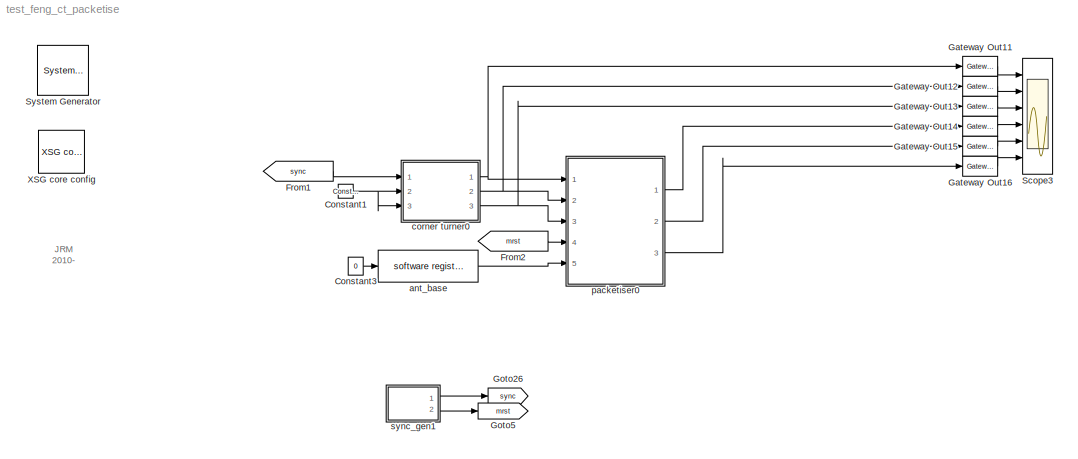
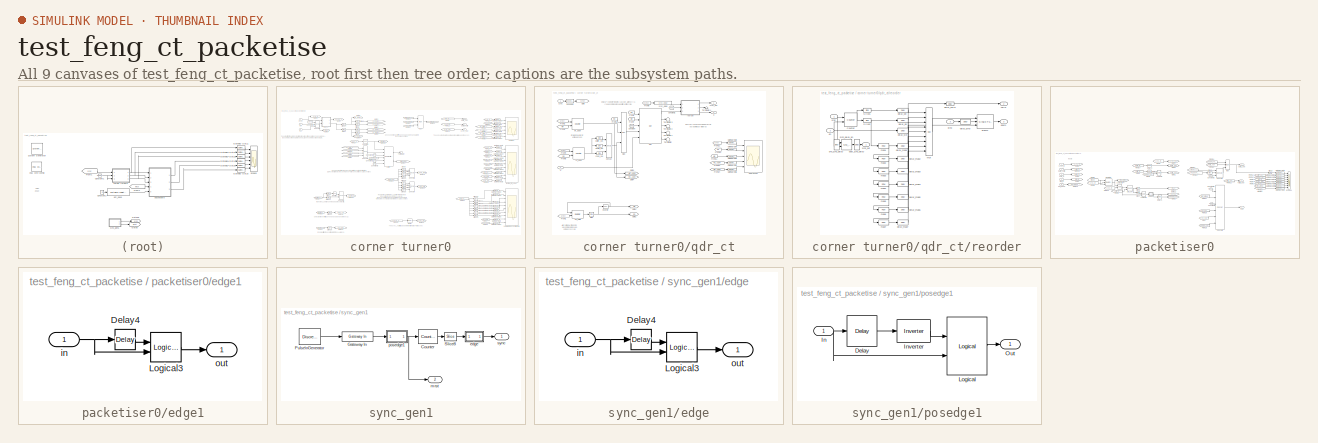
[diagram: thumbnail index - all 9 canvases of the model, root first then tree order]
MODEL test_feng_ct_packetise
KIND model
BLOCK [Reference]  System Generator  REF=xbsIndex_r4/ System Generator
  AttributesFormatString = System\\nGenerator
  FunctionWithSeparateData = off
  Ports = []
  RTWMemSecDataConstants = Inherit from model
  RTWMemSecDataInternal = Inherit from model
  RTWMemSecDataParameters = Inherit from model
  RTWMemSecFuncExecute = Inherit from model
  RTWMemSecFuncInitTerm = Inherit from model
  ShowPortLabels = FromPortIcon
  SourceBlock = xbsIndex_r4/ System Generator
  SourceType = Xilinx System Generator Block
  SystemSampleTime = -1
  Tag = genX
  UserData = DataTag0
  UserDataPersistent = on
  block_type = sysgen
  block_version = 10.1.3
  clock_wrapper = Clock Enables
  core_generation = According to Block Masks
  dbl_ovrd = According to Block Masks
  dcm_input_clock_period = 100
  deprecated_control = off
  directory = ./r_128w_512_11_r354/sysgen
  eval_field = 0
  has_advanced_control = 0
  incr_netlist = off
  infoedit = System Generator
  package = ff1136
  part = xc5vsx95t
  run_coregen = off
  sg_icon_stat = 51,50,-1,-1,red,beige,0,07734,right
  sg_mask_display = fprintf('','COMMENT: begin icon graphics');\npatch([0 51 51 0 ],[0 0 50 50 ],[0.93 0.92 0.86]);\npatch([12 4 16 4 12 25 29 33 47 36 25 17 29 17 25 36 47 33 29 25 12 ],[5 13 25 37 45 45 41 45 45 34 45 37 25 13 5 16 5 5 9 5 5 ],[0.6 0.2 0.25]);\nplot([0 51 51 0 0 ],[0 0 50 50 0 ]);\nfprintf('','COMMENT: end icon graphics');\nfprintf('','COMMENT: begin icon text');\nfprintf('','COMMENT: end icon text...<+5ch>
  sggui_pos = -1,-1,-1,-1
  simulink_period = 1
  speed = -1
  synthesis_tool = XST
  sysclk_period = 5
  testbench = off
  trim_vbits = Everywhere in SubSystem
  xilinxfamily = virtex5
BLOCK [Reference] Constant1  REF=xbsIndex_r4/Constant
  Ports = [0, 1]
  SourceBlock = xbsIndex_r4/Constant
  SourceType = Xilinx Constant Block Block
  arith_type = Unsigned
  bin_pt = 0
  block_type = constant
  block_version = 10.1.3
  carry = CIN
  const = 0
  dbl_ovrd = off
  dsp48_infoedit = The use of this block for DSP48 instructions is deprecated.  Please use the Opmode block.
  equ = P=C
  explicit_period = off
  has_advanced_control = 0
  inp1 = P
  inp2 = PCIN>>17
  n_bits = 16
  opr = +
  opselect = C
  period = 1
  sg_icon_stat = 15,14,0,1,white,blue,0,bf4ddd8b,right,
  sg_list_contents = {'table'=>{'carry'=>'popup(0|1|CIN|~SIGN(P or PCIN)|~SIGN(A*B or A:B)|~SIGND(A*B or A:B))','inp1'=>'popup(0|P|A:B|A*B|C|P+C|A:B+C)','inp2'=>'popup(0|PCIN|P|C|PCIN>>17|P>>17)','opselect'=>'popup(C + A*B|PCIN + A*B|P + A*B|A * B|C + A:B|C - A:B|C|Custom)','userSelections'=>{'carry'=>'CIN','inp1'=>'P','inp2'=>'PCIN>>17','opselect'=>'C'}}}  <repeated x7 — deduplicated; at blocks: Constant1, Constant2, Constant3, Constant5>
  sg_mask_display = fprintf('','COMMENT: begin icon graphics');\npatch([0 1 1 0 ],[0 0 1 1 ],[0.77 0.82 0.91]);\npatch([0.2 0.0666667 0.266667 0.0666667 0.2 0.466667 0.533333 0.6 0.866667 0.666667 0.466667 0.333333 0.533333 0.333333 0.466667 0.666667 0.866667 0.6 0.533333 0.466667 0.2 ],[0.142857 0.285714 0.5 0.714286 0.857143 0.857143 0.785714 0.857143 0.857143 0.642857 0.857143 0.714286 0.5 0.285714 0.142857 0.3571...<+271ch>  <repeated x4 — deduplicated; at blocks: Constant1, Constant2, Constant5>
  sggui_pos = 849,282,478,435
BLOCK [Constant] Constant3
  OutDataType = sfix(16)
  OutScaling = 2^0
  Value = 0
BLOCK [From] From1
  CloseFcn = tagdialog Close
  GotoTag = sync
BLOCK [From] From2
  CloseFcn = tagdialog Close
  GotoTag = mrst
BLOCK [Reference] Gateway Out11  REF=xbsIndex_r4/Gateway Out
  LOCs = {}
  Ports = [1, 1]
  SourceBlock = xbsIndex_r4/Gateway Out
  SourceType = Xilinx Gateway Out Block
  block_type = gatewayout
  block_version = 10.1.3
  has_advanced_control = 0
  hdl_port = off
  infoedit = Gateway out block.  Converts Xilinx fixed point inputs into ouputs of type Simulink integer, double, or fixed point.<P><P>Hardware notes:  In hardware these blocks become top level output ports or are discarded, depending on how they are configured.  <repeated x14 — deduplicated; at blocks: Gateway Out11, Gateway Out12, Gateway Out13, Gateway Out14, Gateway Out15, Gateway Out16, Gateway Out1, Gateway Out18, Gateway Out19, Gateway Out2, Gateway Out20, Gateway Out3, Gateway Out6, Gateway Out8>
  locs_specified = off
  sg_icon_stat = 35,20,1,1,white,grey,0,632ec840,right,
  sg_mask_display = fprintf('','COMMENT: begin icon graphics');\npatch([0 1 1 0 ],[0 0 1 1 ],[0.88 0.88 0.88]);\npatch([0.342857 0.257143 0.4 0.257143 0.342857 0.485714 0.514286 0.542857 0.714286 0.6 0.485714 0.4 0.542857 0.4 0.485714 0.6 0.714286 0.542857 0.514286 0.485714 0.342857 ],[0.1 0.25 0.5 0.75 0.9 0.9 0.85 0.9 0.9 0.7 0.9 0.75 0.5 0.25 0.1 0.3 0.1 0.1 0.15 0.1 0.1 ],[0.98 0.96 0.92]);\nplot([0 1 1 0 0 ],[0 ...<+258ch>  <repeated x6 — deduplicated; at blocks: Gateway Out11, Gateway Out12, Gateway Out13, Gateway Out14, Gateway Out15, Gateway Out16>
  sggui_pos = 20,20,336,384
  timing_constraint = None
  xl_area = [0,0,0,0,0,0,0]
  xl_use_area = off
BLOCK [Reference] Gateway Out12  REF=xbsIndex_r4/Gateway Out
  LOCs = {}
  Ports = [1, 1]
  SourceBlock = xbsIndex_r4/Gateway Out
  SourceType = Xilinx Gateway Out Block
  block_type = gatewayout
  block_version = 10.1.3
  has_advanced_control = 0
  hdl_port = off
  locs_specified = off
  sg_icon_stat = 35,20,1,1,white,grey,0,632ec840,right,
  sggui_pos = 20,20,336,384
  timing_constraint = None
  xl_area = [0,0,0,0,0,0,0]
  xl_use_area = off
BLOCK [Reference] Gateway Out13  REF=xbsIndex_r4/Gateway Out
  LOCs = {}
  Ports = [1, 1]
  SourceBlock = xbsIndex_r4/Gateway Out
  SourceType = Xilinx Gateway Out Block
  block_type = gatewayout
  block_version = 10.1.3
  has_advanced_control = 0
  hdl_port = off
  locs_specified = off
  sg_icon_stat = 35,20,1,1,white,grey,0,632ec840,right,
  sggui_pos = 20,20,336,384
  timing_constraint = None
  xl_area = [0,0,0,0,0,0,0]
  xl_use_area = off
BLOCK [Reference] Gateway Out14  REF=xbsIndex_r4/Gateway Out
  LOCs = {}
  Ports = [1, 1]
  SourceBlock = xbsIndex_r4/Gateway Out
  SourceType = Xilinx Gateway Out Block
  block_type = gatewayout
  block_version = 10.1.3
  has_advanced_control = 0
  hdl_port = off
  locs_specified = off
  sg_icon_stat = 35,20,1,1,white,grey,0,632ec840,right,
  sggui_pos = 20,20,336,384
  timing_constraint = None
  xl_area = [0,0,0,0,0,0,0]
  xl_use_area = off
BLOCK [Reference] Gateway Out15  REF=xbsIndex_r4/Gateway Out
  LOCs = {}
  Ports = [1, 1]
  SourceBlock = xbsIndex_r4/Gateway Out
  SourceType = Xilinx Gateway Out Block
  block_type = gatewayout
  block_version = 10.1.3
  has_advanced_control = 0
  hdl_port = off
  locs_specified = off
  sg_icon_stat = 35,20,1,1,white,grey,0,632ec840,right,
  sggui_pos = 20,20,336,384
  timing_constraint = None
  xl_area = [0,0,0,0,0,0,0]
  xl_use_area = off
BLOCK [Reference] Gateway Out16  REF=xbsIndex_r4/Gateway Out
  LOCs = {}
  Ports = [1, 1]
  SourceBlock = xbsIndex_r4/Gateway Out
  SourceType = Xilinx Gateway Out Block
  block_type = gatewayout
  block_version = 10.1.3
  has_advanced_control = 0
  hdl_port = off
  locs_specified = off
  sg_icon_stat = 35,20,1,1,white,grey,0,632ec840,right,
  sggui_pos = 20,20,336,384
  timing_constraint = None
  xl_area = [0,0,0,0,0,0,0]
  xl_use_area = off
BLOCK [Goto] Goto26
  GotoTag = sync
  TagVisibility = local
BLOCK [Goto] Goto5
  GotoTag = mrst
  TagVisibility = local
BLOCK [Scope] Scope3
  DataFormat = StructureWithTime
  Floating = off
  LimitDataPoints = off
  NumInputPorts = 6
  Ports = [6]
  SampleTime = 0
  YMax = 1~1~1~1~1~1
  YMin = -1~-1~-1~-1~-1~-1
  ZoomMode = xonly
BLOCK [Reference] XSG core config  REF=xps_library/XSG core config  (lib defined in mdl_00b5cec29cd0, mdl_02ab6ecaa3d1, +5 more)
  BEE2_ctrl_clk_src = sys_clk
  BEE2_usr_clk_src = sys_clk
  CORR_clk_src = sys_clk
  FunctionWithSeparateData = off
  Ports = []
  ROACH_clk_src = adc0_clk
  RTWMemSecDataConstants = Inherit from model
  RTWMemSecDataInternal = Inherit from model
  RTWMemSecDataParameters = Inherit from model
  RTWMemSecFuncExecute = Inherit from model
  RTWMemSecFuncInitTerm = Inherit from model
  ShowPortLabels = FromPortIcon
  SourceBlock = xps_library/XSG core config
  SourceType = xsg core config
  SystemSampleTime = -1
  Tag = xps:xsg
  clk_rate = 800/4
  clk_src = adc0_clk
  gpio_clk_bit_index = 0
  gpio_clk_io_group = iBOB:sma
  hw_sys = ROACH:sx95t
  iBOB_clk_src = sys_clk
  ibob_linux = off
  mpc_type = powerpc440_ext
  sample_period = 1
  synthesis_tool = XST
BLOCK [Reference] ant_base  REF=xps_library/software register  (lib defined in mdl_00b5cec29cd0, mdl_02ab6ecaa3d1, +5 more)
  FunctionWithSeparateData = off
  Ports = [1, 1]
  RTWMemSecDataConstants = Inherit from model
  RTWMemSecDataInternal = Inherit from model
  RTWMemSecDataParameters = Inherit from model
  RTWMemSecFuncExecute = Inherit from model
  RTWMemSecFuncInitTerm = Inherit from model
  ShowPortLabels = FromPortIcon
  SourceBlock = xps_library/software register
  SystemSampleTime = -1
  Tag = xps:sw_reg
  arith_type = Unsigned
  bin_pt = 0
  bitwidth = 32
  gw_name = test_feng_ct_packetise_ant_base_user_data_out
  io_dir = From Processor
  sample_period = 1
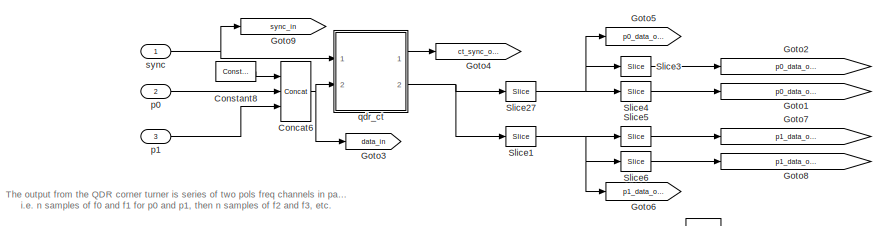
[diagram: corner turner0 - part 1/4, top left region]
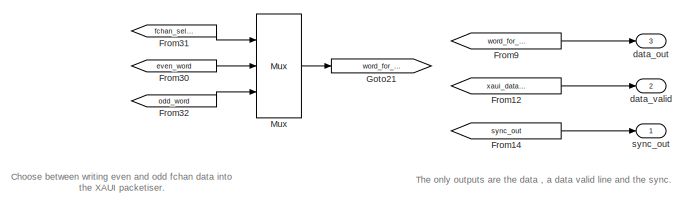
[diagram: corner turner0 - part 2/4, top center region]
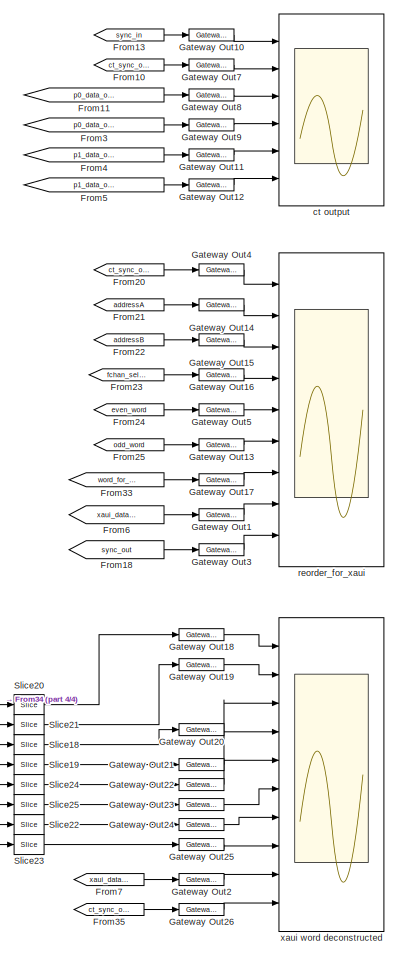
[diagram: corner turner0 - part 3/4, right side, full height]
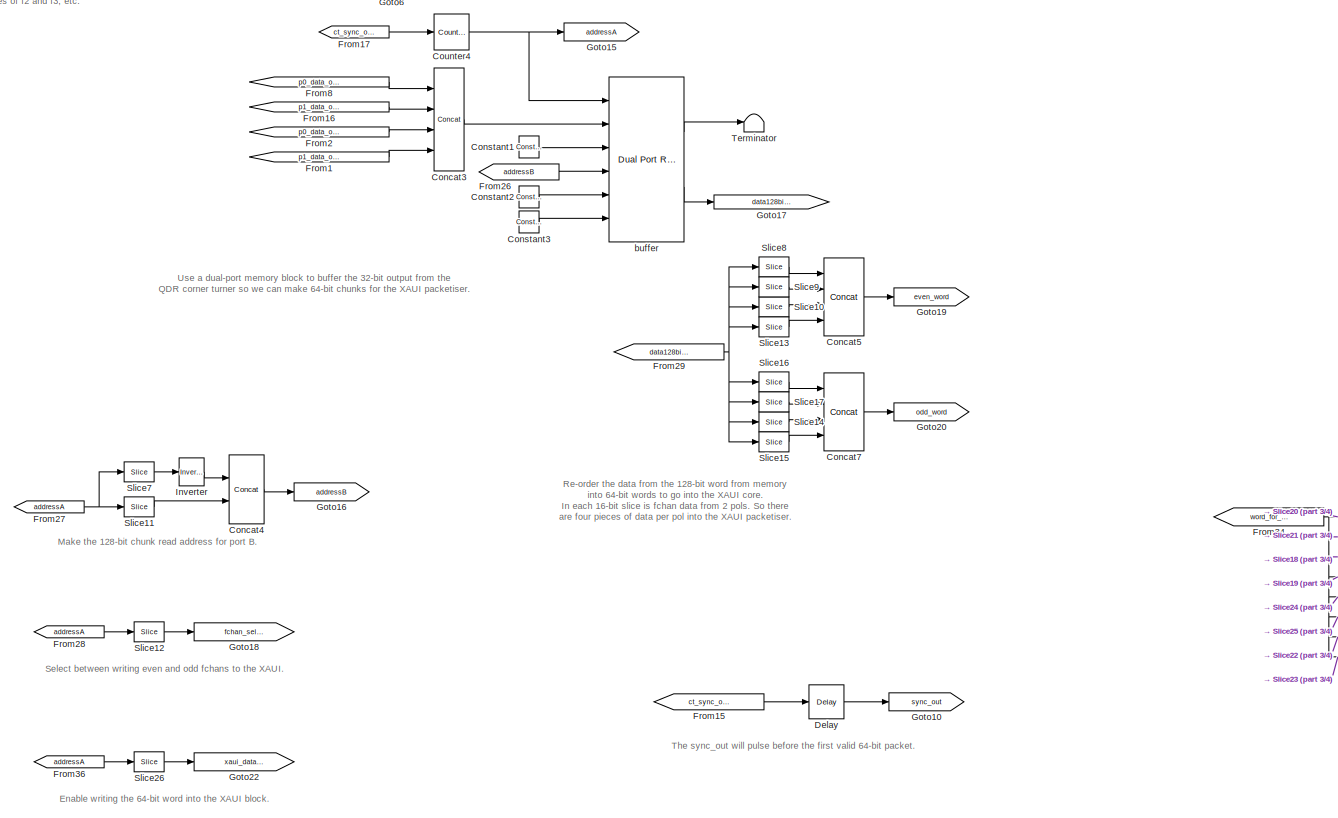
[diagram: corner turner0 - part 4/4, center side, full height]
BLOCK [SubSystem] corner turner0
  FunctionWithSeparateData = off
  MaskCallbackString = ||
  MaskEnableString = on,on,on
  MaskHideContents = off
  MaskIconFrame = on
  MaskIconOpaque = on
  MaskIconRotate = none
  MaskIconUnits = autoscale
  MaskInitialization = set_param([gcb, '/qdr_ct'], 'which_qdr', which_qdr);
  MaskPromptString = Number of freq channels (total 2^?):|Number of spectra per XAUI packet (2^?):|QDR to use:
  MaskStyleString = edit,edit,popup(qdr0|qdr1)
  MaskTabNameString = ,,
  MaskToolTipString = on,on,on
  MaskTunableValueString = on,on,on
  MaskValueString = 6|7|qdr0
  MaskVarAliasString = ,,
  MaskVariables = num_channels_bits=@1;num_spectra_bits=@2;which_qdr=&3;
  MaskVisibilityString = on,on,on
  MinAlgLoopOccurrences = off
  Opaque = off
  Ports = [3, 3]
  PropExecContextOutsideSubsystem = off
  RTWSystemCode = Auto
  RequestExecContextInheritance = off
BLOCK [Reference] corner turner0/Concat3  REF=xbsIndex_r4/Concat
  Ports = [4, 1]
  SourceBlock = xbsIndex_r4/Concat
  SourceType = Xilinx Bus Concatenator Block
  block_type = concat
  block_version = 10.1.3
  dbl_ovrd = off
  has_advanced_control = 0
  infoedit = Concatenates two or more inputs.  Output will be cast to an unsigned value with the binary point at zero.
  num_inputs = 4
  sg_icon_stat = 30,103,4,1,white,blue,0,47b26f1b,right,
  sg_mask_display = fprintf('','COMMENT: begin icon graphics');\npatch([0 1 1 0 ],[0 0 1 1 ],[0.77 0.82 0.91]);\npatch([0.233333 0.0666667 0.3 0.0666667 0.233333 0.5 0.566667 0.633333 0.9 0.666667 0.466667 0.3 0.5 0.3 0.466667 0.666667 0.9 0.633333 0.566667 0.5 0.233333 ],[0.38835 0.436893 0.504854 0.572816 0.621359 0.621359 0.601942 0.621359 0.621359 0.553398 0.61165 0.563107 0.504854 0.446602 0.398058 0.456311 0.38...<+304ch>
  sggui_pos = 22,78,336,214
BLOCK [Reference] corner turner0/Concat4  REF=xbsIndex_r4/Concat
  Ports = [2, 1]
  SourceBlock = xbsIndex_r4/Concat
  SourceType = Xilinx Bus Concatenator Block
  block_type = concat
  block_version = 10.1.3
  dbl_ovrd = off
  has_advanced_control = 0
  infoedit = Concatenates two or more inputs.  Output will be cast to an unsigned value with the binary point at zero.
  num_inputs = 2
  sg_icon_stat = 35,69,2,1,white,blue,0,97b7e8d2,right,
  sg_mask_display = fprintf('','COMMENT: begin icon graphics');\npatch([0 1 1 0 ],[0 0 1 1 ],[0.77 0.82 0.91]);\npatch([0.228571 0.0571429 0.285714 0.0571429 0.228571 0.485714 0.571429 0.657143 0.942857 0.714286 0.514286 0.371429 0.6 0.371429 0.514286 0.714286 0.942857 0.657143 0.571429 0.485714 0.228571 ],[0.304348 0.391304 0.507246 0.623188 0.710145 0.710145 0.666667 0.710145 0.710145 0.594203 0.695652 0.623188 0.5...<+344ch>
  sggui_pos = 23,105,336,214
BLOCK [Reference] corner turner0/Concat5  REF=xbsIndex_r4/Concat
  Ports = [4, 1]
  SourceBlock = xbsIndex_r4/Concat
  SourceType = Xilinx Bus Concatenator Block
  block_type = concat
  block_version = 10.1.3
  dbl_ovrd = off
  has_advanced_control = 0
  infoedit = Concatenates two or more inputs.  Output will be cast to an unsigned value with the binary point at zero.
  num_inputs = 4
  sg_icon_stat = 40,78,4,1,white,blue,0,47b26f1b,right,
  sg_mask_display = fprintf('','COMMENT: begin icon graphics');\npatch([0 1 1 0 ],[0 0 1 1 ],[0.77 0.82 0.91]);\npatch([0.25 0.075 0.3 0.075 0.25 0.525 0.6 0.675 0.95 0.725 0.5 0.35 0.6 0.35 0.5 0.725 0.95 0.675 0.6 0.525 0.25 ],[0.294872 0.384615 0.5 0.615385 0.705128 0.705128 0.666667 0.705128 0.705128 0.589744 0.705128 0.628205 0.5 0.371795 0.294872 0.410256 0.294872 0.294872 0.333333 0.294872 0.294872 ],[0.98 0.9...<+256ch>
  sggui_pos = 24,132,336,214
BLOCK [Reference] corner turner0/Concat6  REF=xbsIndex_r4/Concat
  Ports = [3, 1]
  SourceBlock = xbsIndex_r4/Concat
  SourceType = Xilinx Bus Concatenator Block
  block_type = concat
  block_version = 10.1.3
  dbl_ovrd = off
  has_advanced_control = 0
  infoedit = Concatenates two or more inputs.  Output will be cast to an unsigned value with the binary point at zero.
  num_inputs = 3
  sg_icon_stat = 30,60,3,1,white,blue,0,cc9eafd1,right,
  sg_mask_display = fprintf('','COMMENT: begin icon graphics');\npatch([0 1 1 0 ],[0 0 1 1 ],[0.77 0.82 0.91]);\npatch([0.233333 0.0666667 0.3 0.0666667 0.233333 0.5 0.566667 0.633333 0.9 0.666667 0.466667 0.3 0.5 0.3 0.466667 0.666667 0.9 0.633333 0.566667 0.5 0.233333 ],[0.3 0.383333 0.5 0.616667 0.7 0.7 0.666667 0.7 0.7 0.583333 0.683333 0.6 0.5 0.4 0.316667 0.416667 0.3 0.3 0.333333 0.3 0.3 ],[0.98 0.96 0.92]);\n...<+245ch>
  sggui_pos = 20,20,336,165
BLOCK [Reference] corner turner0/Concat7  REF=xbsIndex_r4/Concat
  Ports = [4, 1]
  SourceBlock = xbsIndex_r4/Concat
  SourceType = Xilinx Bus Concatenator Block
  block_type = concat
  block_version = 10.1.3
  dbl_ovrd = off
  has_advanced_control = 0
  infoedit = Concatenates two or more inputs.  Output will be cast to an unsigned value with the binary point at zero.
  num_inputs = 4
  sg_icon_stat = 40,78,4,1,white,blue,0,47b26f1b,right,
  sg_mask_display = fprintf('','COMMENT: begin icon graphics');\npatch([0 1 1 0 ],[0 0 1 1 ],[0.77 0.82 0.91]);\npatch([0.25 0.075 0.3 0.075 0.25 0.525 0.6 0.675 0.95 0.725 0.5 0.35 0.6 0.35 0.5 0.725 0.95 0.675 0.6 0.525 0.25 ],[0.294872 0.384615 0.5 0.615385 0.705128 0.705128 0.666667 0.705128 0.705128 0.589744 0.705128 0.628205 0.5 0.371795 0.294872 0.410256 0.294872 0.294872 0.333333 0.294872 0.294872 ],[0.98 0.9...<+256ch>
  sggui_pos = 25,159,336,214
BLOCK [Reference] corner turner0/Constant1  REF=xbsIndex_r4/Constant
  Ports = [0, 1]
  SourceBlock = xbsIndex_r4/Constant
  SourceType = Xilinx Constant Block Block
  arith_type = Boolean
  bin_pt = 0
  block_type = constant
  block_version = 10.1.3
  carry = CIN
  const = 1
  dbl_ovrd = off
  dsp48_infoedit = The use of this block for DSP48 instructions is deprecated.  Please use the Opmode block.
  equ = P=C
  explicit_period = off
  has_advanced_control = 0
  inp1 = P
  inp2 = PCIN>>17
  n_bits = 4
  opr = +
  opselect = C
  period = 1
  sg_icon_stat = 20,22,0,1,white,blue,0,1c72b5be,right,
  sg_mask_display = fprintf('','COMMENT: begin icon graphics');\npatch([0 1 1 0 ],[0 0 1 1 ],[0.77 0.82 0.91]);\npatch([0.2 0.05 0.3 0.05 0.2 0.45 0.5 0.55 0.85 0.65 0.45 0.3 0.55 0.3 0.45 0.65 0.85 0.55 0.5 0.45 0.2 ],[0.136364 0.272727 0.5 0.727273 0.863636 0.863636 0.818182 0.863636 0.863636 0.681818 0.863636 0.727273 0.5 0.272727 0.136364 0.318182 0.136364 0.136364 0.181818 0.136364 0.136364 ],[0.98 0.96 0.92]);\...<+202ch>  <repeated x3 — deduplicated; at blocks: Constant1, Constant2, Constant3>
  sggui_pos = 21,51,478,435
BLOCK [Reference] corner turner0/Constant2  REF=xbsIndex_r4/Constant
  Ports = [0, 1]
  SourceBlock = xbsIndex_r4/Constant
  SourceType = Xilinx Constant Block Block
  arith_type = Unsigned
  bin_pt = 0
  block_type = constant
  block_version = 10.1.3
  carry = CIN
  const = 0
  dbl_ovrd = off
  dsp48_infoedit = The use of this block for DSP48 instructions is deprecated.  Please use the Opmode block.
  equ = P=C
  explicit_period = off
  has_advanced_control = 0
  inp1 = P
  inp2 = PCIN>>17
  n_bits = 128
  opr = +
  opselect = C
  period = 1
  sg_icon_stat = 20,22,0,1,white,blue,0,bf4ddd8b,right,
  sggui_pos = 23,105,478,435
BLOCK [Reference] corner turner0/Constant3  REF=xbsIndex_r4/Constant
  Ports = [0, 1]
  SourceBlock = xbsIndex_r4/Constant
  SourceType = Xilinx Constant Block Block
  arith_type = Boolean
  bin_pt = 0
  block_type = constant
  block_version = 10.1.3
  carry = CIN
  const = 0
  dbl_ovrd = off
  dsp48_infoedit = The use of this block for DSP48 instructions is deprecated.  Please use the Opmode block.
  equ = P=C
  explicit_period = off
  has_advanced_control = 0
  inp1 = P
  inp2 = PCIN>>17
  n_bits = 64
  opr = +
  opselect = C
  period = 1
  sg_icon_stat = 20,22,0,1,white,blue,0,bf4ddd8b,right,
  sggui_pos = 22,78,478,435
BLOCK [Reference] corner turner0/Constant8  REF=xbsIndex_r4/Constant
  Ports = [0, 1]
  SourceBlock = xbsIndex_r4/Constant
  SourceType = Xilinx Constant Block Block
  arith_type = Unsigned
  bin_pt = 0
  block_type = constant
  block_version = 10.1.3
  carry = CIN
  const = 0
  dbl_ovrd = off
  dsp48_infoedit = The use of this block for DSP48 instructions is deprecated.  Please use the Opmode block.
  equ = P=C
  explicit_period = off
  has_advanced_control = 0
  inp1 = P
  inp2 = PCIN>>17
  n_bits = 4
  opr = +
  opselect = C
  period = 1
  sg_icon_stat = 40,20,0,1,white,blue,0,bf4ddd8b,right,
  sg_mask_display = fprintf('','COMMENT: begin icon graphics');\npatch([0 1 1 0 ],[0 0 1 1 ],[0.77 0.82 0.91]);\npatch([0.35 0.275 0.4 0.275 0.35 0.475 0.5 0.525 0.675 0.575 0.475 0.4 0.525 0.4 0.475 0.575 0.675 0.525 0.5 0.475 0.35 ],[0.1 0.25 0.5 0.75 0.9 0.9 0.85 0.9 0.9 0.7 0.9 0.75 0.5 0.25 0.1 0.3 0.1 0.1 0.15 0.1 0.1 ],[0.98 0.96 0.92]);\nplot([0 1 1 0 0 ],[0 0 1 1 0 ]);\nfprintf('','COMMENT: end icon graphics...<+129ch>
  sggui_pos = 21,201,478,435
BLOCK [Reference] corner turner0/Counter4  REF=xbsIndex_r4/Counter
  Ports = [1, 1]
  SourceBlock = xbsIndex_r4/Counter
  SourceType = Xilinx Counter Block
  arith_type = Unsigned
  bin_pt = 0
  block_type = counter
  block_version = 11.4
  cnt_by_val = 1
  cnt_to = Inf
  cnt_type = Free Running
  dbl_ovrd = off
  en = off
  explicit_period = on
  has_advanced_control = 0
  implementation = Fabric
  infoedit = Hardware notes: Free running counters are the least expensive in hardware.  A count limited counter is implemented by combining a counter with a comparator.
  load_pin = off
  n_bits = num_spectra_bits + 1
  operation = Up
  period = 1
  rst = on
  sg_icon_stat = 35,36,1,1,white,blue,0,c59595e6,right,
  sg_mask_display = fprintf('','COMMENT: begin icon graphics');\npatch([0 1 1 0 ],[0 0 1 1 ],[0.77 0.82 0.91]);\npatch([0.228571 0.0571429 0.285714 0.0571429 0.228571 0.485714 0.571429 0.657143 0.942857 0.714286 0.514286 0.371429 0.6 0.371429 0.514286 0.714286 0.942857 0.657143 0.571429 0.485714 0.228571 ],[0.111111 0.277778 0.5 0.722222 0.888889 0.888889 0.805556 0.888889 0.888889 0.666667 0.861111 0.722222 0.5 0.27...<+338ch>
  sggui_pos = 764,319,419,742
  start_count = 0
  use_behavioral_HDL = off
  xl_area = [0,0,0,0,0,0,0]
  xl_use_area = off
BLOCK [Reference] corner turner0/Delay  REF=xbsIndex_r4/Delay
  Ports = [1, 1]
  SourceBlock = xbsIndex_r4/Delay
  SourceType = Xilinx Delay Block
  block_type = delay
  block_version = 11.4
  dbl_ovrd = off
  en = off
  has_advanced_control = 0
  infoedit = Hardware notes: A delay line is a chain, each link of which is an SRL16 followed by a flip-flop.
  latency = 2 ^ num_spectra_bits +1
  reg_retiming = off
  sg_icon_stat = 35,34,1,1,white,blue,0,96d501da,right,
  sg_mask_display = fprintf('','COMMENT: begin icon graphics');\npatch([0 1 1 0 ],[0 0 1 1 ],[0.77 0.82 0.91]);\npatch([0.257143 0.0857143 0.314286 0.0857143 0.257143 0.514286 0.571429 0.628571 0.914286 0.685714 0.485714 0.342857 0.571429 0.342857 0.485714 0.685714 0.914286 0.628571 0.571429 0.514286 0.257143 ],[0.117647 0.294118 0.529412 0.764706 0.941176 0.941176 0.882353 0.941176 0.941176 0.705882 0.911765 0.76470...<+311ch>
  sggui_pos = 22,201,419,313
  xl_area = [0,0,0,0,0,0,0]
  xl_use_area = off
BLOCK [From] corner turner0/From1
  CloseFcn = tagdialog Close
  GotoTag = p1_data_out_odd_fchans
BLOCK [From] corner turner0/From10
  CloseFcn = tagdialog Close
  GotoTag = ct_sync_out
BLOCK [From] corner turner0/From11
  CloseFcn = tagdialog Close
  GotoTag = p0_data_out_even_fchans
BLOCK [From] corner turner0/From12
  CloseFcn = tagdialog Close
  GotoTag = xaui_data_valid
BLOCK [From] corner turner0/From13
  CloseFcn = tagdialog Close
  GotoTag = sync_in
BLOCK [From] corner turner0/From14
  CloseFcn = tagdialog Close
  GotoTag = sync_out
BLOCK [From] corner turner0/From15
  CloseFcn = tagdialog Close
  GotoTag = ct_sync_out
BLOCK [From] corner turner0/From16
  CloseFcn = tagdialog Close
  GotoTag = p1_data_out_even_fchans
BLOCK [From] corner turner0/From17
  CloseFcn = tagdialog Close
  GotoTag = ct_sync_out
BLOCK [From] corner turner0/From18
  CloseFcn = tagdialog Close
  GotoTag = sync_out
BLOCK [From] corner turner0/From2
  CloseFcn = tagdialog Close
  GotoTag = p0_data_out_odd_fchans
BLOCK [From] corner turner0/From20
  CloseFcn = tagdialog Close
  GotoTag = ct_sync_out
BLOCK [From] corner turner0/From21
  CloseFcn = tagdialog Close
  GotoTag = addressA
BLOCK [From] corner turner0/From22
  CloseFcn = tagdialog Close
  GotoTag = addressB
BLOCK [From] corner turner0/From23
  CloseFcn = tagdialog Close
  GotoTag = fchan_selector
BLOCK [From] corner turner0/From24
  CloseFcn = tagdialog Close
  GotoTag = even_word
BLOCK [From] corner turner0/From25
  CloseFcn = tagdialog Close
  GotoTag = odd_word
BLOCK [From] corner turner0/From26
  CloseFcn = tagdialog Close
  GotoTag = addressB
BLOCK [From] corner turner0/From27
  CloseFcn = tagdialog Close
  GotoTag = addressA
BLOCK [From] corner turner0/From28
  CloseFcn = tagdialog Close
  GotoTag = addressA
BLOCK [From] corner turner0/From29
  CloseFcn = tagdialog Close
  GotoTag = data128bit_word
BLOCK [From] corner turner0/From3
  CloseFcn = tagdialog Close
  GotoTag = p0_data_out_odd_fchans
BLOCK [From] corner turner0/From30
  CloseFcn = tagdialog Close
  GotoTag = even_word
BLOCK [From] corner turner0/From31
  CloseFcn = tagdialog Close
  GotoTag = fchan_selector
BLOCK [From] corner turner0/From32
  CloseFcn = tagdialog Close
  GotoTag = odd_word
BLOCK [From] corner turner0/From33
  CloseFcn = tagdialog Close
  GotoTag = word_for_xaui
BLOCK [From] corner turner0/From34
  CloseFcn = tagdialog Close
  GotoTag = word_for_xaui
BLOCK [From] corner turner0/From35
  CloseFcn = tagdialog Close
  GotoTag = ct_sync_out
BLOCK [From] corner turner0/From36
  CloseFcn = tagdialog Close
  GotoTag = addressA
BLOCK [From] corner turner0/From4
  CloseFcn = tagdialog Close
  GotoTag = p1_data_out_even_fchans
BLOCK [From] corner turner0/From5
  CloseFcn = tagdialog Close
  GotoTag = p1_data_out_odd_fchans
BLOCK [From] corner turner0/From6
  CloseFcn = tagdialog Close
  GotoTag = xaui_data_valid
BLOCK [From] corner turner0/From7
  CloseFcn = tagdialog Close
  GotoTag = xaui_data_valid
BLOCK [From] corner turner0/From8
  CloseFcn = tagdialog Close
  GotoTag = p0_data_out_even_fchans
BLOCK [From] corner turner0/From9
  CloseFcn = tagdialog Close
  GotoTag = word_for_xaui
BLOCK [Reference] corner turner0/Gateway Out1  REF=xbsIndex_r4/Gateway Out
  LOCs = {}
  Ports = [1, 1]
  SourceBlock = xbsIndex_r4/Gateway Out
  SourceType = Xilinx Gateway Out Block
  block_type = gatewayout
  block_version = 11.4
  has_advanced_control = 0
  hdl_port = on
  infoedit = Gateway out block.  Converts Xilinx fixed point inputs into ouputs of type Simulink integer, double, or fixed point.<br><br>Hardware notes:  In hardware these blocks become top level output ports or are discarded, depending on how they are configured.  <repeated x30 — deduplicated; at blocks: Gateway Out1, Gateway Out10, Gateway Out11, Gateway Out12, Gateway Out13, Gateway Out14, Gateway Out15, Gateway Out16, Gateway Out17, Gateway Out18, Gateway Out19, Gateway Out2, Gateway Out20, Gateway Out21, Gateway Out22, Gateway Out23, +10 more>
  locs_specified = off
  sg_icon_stat = 45,12,1,1,white,yellow,0,cc31b7ac,right,
  sg_mask_display = fprintf('','COMMENT: begin icon graphics');\npatch([0 1 1 0 ],[0 0 1 1 ],[0.95 0.93 0.65]);\npatch([0.422222 0.377778 0.444444 0.377778 0.422222 0.488889 0.511111 0.533333 0.6 0.533333 0.466667 0.422222 0.488889 0.422222 0.466667 0.533333 0.6 0.533333 0.511111 0.488889 0.422222 ],[0.0833333 0.25 0.5 0.75 0.916667 0.916667 0.833333 0.916667 0.916667 0.666667 0.916667 0.75 0.5 0.25 0.0833333 0.33333...<+356ch>  <repeated x30 — deduplicated; at blocks: Gateway Out1, Gateway Out10, Gateway Out11, Gateway Out12, Gateway Out13, Gateway Out14, Gateway Out15, Gateway Out16, Gateway Out17, Gateway Out18, Gateway Out19, Gateway Out2, Gateway Out20, Gateway Out21, Gateway Out22, Gateway Out23, +10 more>
  sggui_pos = -1,-1,-1,-1
  timing_constraint = None
  xl_area = [0,0,0,0,0,0,0]
  xl_use_area = off
BLOCK [Reference] corner turner0/Gateway Out10  REF=xbsIndex_r4/Gateway Out
  LOCs = {}
  Ports = [1, 1]
  SourceBlock = xbsIndex_r4/Gateway Out
  SourceType = Xilinx Gateway Out Block
  block_type = gatewayout
  block_version = 11.4
  has_advanced_control = 0
  hdl_port = on
  locs_specified = off
  sg_icon_stat = 45,12,1,1,white,yellow,0,cc31b7ac,right,
  sggui_pos = -1,-1,-1,-1
  timing_constraint = None
  xl_area = [0,0,0,0,0,0,0]
  xl_use_area = off
BLOCK [Reference] corner turner0/Gateway Out11  REF=xbsIndex_r4/Gateway Out
  LOCs = {}
  Ports = [1, 1]
  SourceBlock = xbsIndex_r4/Gateway Out
  SourceType = Xilinx Gateway Out Block
  block_type = gatewayout
  block_version = 11.4
  has_advanced_control = 0
  hdl_port = on
  locs_specified = off
  sg_icon_stat = 45,12,1,1,white,yellow,0,cc31b7ac,right,
  sggui_pos = -1,-1,-1,-1
  timing_constraint = None
  xl_area = [0,0,0,0,0,0,0]
  xl_use_area = off
BLOCK [Reference] corner turner0/Gateway Out12  REF=xbsIndex_r4/Gateway Out
  LOCs = {}
  Ports = [1, 1]
  SourceBlock = xbsIndex_r4/Gateway Out
  SourceType = Xilinx Gateway Out Block
  block_type = gatewayout
  block_version = 11.4
  has_advanced_control = 0
  hdl_port = on
  locs_specified = off
  sg_icon_stat = 45,12,1,1,white,yellow,0,cc31b7ac,right,
  sggui_pos = -1,-1,-1,-1
  timing_constraint = None
  xl_area = [0,0,0,0,0,0,0]
  xl_use_area = off
BLOCK [Reference] corner turner0/Gateway Out13  REF=xbsIndex_r4/Gateway Out
  LOCs = {}
  Ports = [1, 1]
  SourceBlock = xbsIndex_r4/Gateway Out
  SourceType = Xilinx Gateway Out Block
  block_type = gatewayout
  block_version = 11.4
  has_advanced_control = 0
  hdl_port = on
  locs_specified = off
  sg_icon_stat = 45,12,1,1,white,yellow,0,cc31b7ac,right,
  sggui_pos = -1,-1,-1,-1
  timing_constraint = None
  xl_area = [0,0,0,0,0,0,0]
  xl_use_area = off
BLOCK [Reference] corner turner0/Gateway Out14  REF=xbsIndex_r4/Gateway Out
  LOCs = {}
  Ports = [1, 1]
  SourceBlock = xbsIndex_r4/Gateway Out
  SourceType = Xilinx Gateway Out Block
  block_type = gatewayout
  block_version = 11.4
  has_advanced_control = 0
  hdl_port = on
  locs_specified = off
  sg_icon_stat = 45,12,1,1,white,yellow,0,cc31b7ac,right,
  sggui_pos = -1,-1,-1,-1
  timing_constraint = None
  xl_area = [0,0,0,0,0,0,0]
  xl_use_area = off
BLOCK [Reference] corner turner0/Gateway Out15  REF=xbsIndex_r4/Gateway Out
  LOCs = {}
  Ports = [1, 1]
  SourceBlock = xbsIndex_r4/Gateway Out
  SourceType = Xilinx Gateway Out Block
  block_type = gatewayout
  block_version = 11.4
  has_advanced_control = 0
  hdl_port = on
  locs_specified = off
  sg_icon_stat = 45,12,1,1,white,yellow,0,cc31b7ac,right,
  sggui_pos = -1,-1,-1,-1
  timing_constraint = None
  xl_area = [0,0,0,0,0,0,0]
  xl_use_area = off
BLOCK [Reference] corner turner0/Gateway Out16  REF=xbsIndex_r4/Gateway Out
  LOCs = {}
  Ports = [1, 1]
  SourceBlock = xbsIndex_r4/Gateway Out
  SourceType = Xilinx Gateway Out Block
  block_type = gatewayout
  block_version = 11.4
  has_advanced_control = 0
  hdl_port = on
  locs_specified = off
  sg_icon_stat = 45,12,1,1,white,yellow,0,cc31b7ac,right,
  sggui_pos = -1,-1,-1,-1
  timing_constraint = None
  xl_area = [0,0,0,0,0,0,0]
  xl_use_area = off
BLOCK [Reference] corner turner0/Gateway Out17  REF=xbsIndex_r4/Gateway Out
  LOCs = {}
  Ports = [1, 1]
  SourceBlock = xbsIndex_r4/Gateway Out
  SourceType = Xilinx Gateway Out Block
  block_type = gatewayout
  block_version = 11.4
  has_advanced_control = 0
  hdl_port = on
  locs_specified = off
  sg_icon_stat = 45,12,1,1,white,yellow,0,cc31b7ac,right,
  sggui_pos = -1,-1,-1,-1
  timing_constraint = None
  xl_area = [0,0,0,0,0,0,0]
  xl_use_area = off
BLOCK [Reference] corner turner0/Gateway Out18  REF=xbsIndex_r4/Gateway Out
  LOCs = {}
  Ports = [1, 1]
  SourceBlock = xbsIndex_r4/Gateway Out
  SourceType = Xilinx Gateway Out Block
  block_type = gatewayout
  block_version = 11.4
  has_advanced_control = 0
  hdl_port = on
  locs_specified = off
  sg_icon_stat = 45,12,1,1,white,yellow,0,cc31b7ac,right,
  sggui_pos = -1,-1,-1,-1
  timing_constraint = None
  xl_area = [0,0,0,0,0,0,0]
  xl_use_area = off
BLOCK [Reference] corner turner0/Gateway Out19  REF=xbsIndex_r4/Gateway Out
  LOCs = {}
  Ports = [1, 1]
  SourceBlock = xbsIndex_r4/Gateway Out
  SourceType = Xilinx Gateway Out Block
  block_type = gatewayout
  block_version = 11.4
  has_advanced_control = 0
  hdl_port = on
  locs_specified = off
  sg_icon_stat = 45,12,1,1,white,yellow,0,cc31b7ac,right,
  sggui_pos = -1,-1,-1,-1
  timing_constraint = None
  xl_area = [0,0,0,0,0,0,0]
  xl_use_area = off
BLOCK [Reference] corner turner0/Gateway Out2  REF=xbsIndex_r4/Gateway Out
  LOCs = {}
  Ports = [1, 1]
  SourceBlock = xbsIndex_r4/Gateway Out
  SourceType = Xilinx Gateway Out Block
  block_type = gatewayout
  block_version = 11.4
  has_advanced_control = 0
  hdl_port = on
  locs_specified = off
  sg_icon_stat = 45,12,1,1,white,yellow,0,cc31b7ac,right,
  sggui_pos = -1,-1,-1,-1
  timing_constraint = None
  xl_area = [0,0,0,0,0,0,0]
  xl_use_area = off
BLOCK [Reference] corner turner0/Gateway Out20  REF=xbsIndex_r4/Gateway Out
  LOCs = {}
  Ports = [1, 1]
  SourceBlock = xbsIndex_r4/Gateway Out
  SourceType = Xilinx Gateway Out Block
  block_type = gatewayout
  block_version = 11.4
  has_advanced_control = 0
  hdl_port = on
  locs_specified = off
  sg_icon_stat = 45,12,1,1,white,yellow,0,cc31b7ac,right,
  sggui_pos = -1,-1,-1,-1
  timing_constraint = None
  xl_area = [0,0,0,0,0,0,0]
  xl_use_area = off
BLOCK [Reference] corner turner0/Gateway Out21  REF=xbsIndex_r4/Gateway Out
  LOCs = {}
  Ports = [1, 1]
  SourceBlock = xbsIndex_r4/Gateway Out
  SourceType = Xilinx Gateway Out Block
  block_type = gatewayout
  block_version = 11.4
  has_advanced_control = 0
  hdl_port = on
  locs_specified = off
  sg_icon_stat = 45,12,1,1,white,yellow,0,cc31b7ac,right,
  sggui_pos = -1,-1,-1,-1
  timing_constraint = None
  xl_area = [0,0,0,0,0,0,0]
  xl_use_area = off
BLOCK [Reference] corner turner0/Gateway Out22  REF=xbsIndex_r4/Gateway Out
  LOCs = {}
  Ports = [1, 1]
  SourceBlock = xbsIndex_r4/Gateway Out
  SourceType = Xilinx Gateway Out Block
  block_type = gatewayout
  block_version = 11.4
  has_advanced_control = 0
  hdl_port = on
  locs_specified = off
  sg_icon_stat = 45,12,1,1,white,yellow,0,cc31b7ac,right,
  sggui_pos = -1,-1,-1,-1
  timing_constraint = None
  xl_area = [0,0,0,0,0,0,0]
  xl_use_area = off
BLOCK [Reference] corner turner0/Gateway Out23  REF=xbsIndex_r4/Gateway Out
  LOCs = {}
  Ports = [1, 1]
  SourceBlock = xbsIndex_r4/Gateway Out
  SourceType = Xilinx Gateway Out Block
  block_type = gatewayout
  block_version = 11.4
  has_advanced_control = 0
  hdl_port = on
  locs_specified = off
  sg_icon_stat = 45,12,1,1,white,yellow,0,cc31b7ac,right,
  sggui_pos = -1,-1,-1,-1
  timing_constraint = None
  xl_area = [0,0,0,0,0,0,0]
  xl_use_area = off
BLOCK [Reference] corner turner0/Gateway Out24  REF=xbsIndex_r4/Gateway Out
  LOCs = {}
  Ports = [1, 1]
  SourceBlock = xbsIndex_r4/Gateway Out
  SourceType = Xilinx Gateway Out Block
  block_type = gatewayout
  block_version = 11.4
  has_advanced_control = 0
  hdl_port = on
  locs_specified = off
  sg_icon_stat = 45,12,1,1,white,yellow,0,cc31b7ac,right,
  sggui_pos = -1,-1,-1,-1
  timing_constraint = None
  xl_area = [0,0,0,0,0,0,0]
  xl_use_area = off
BLOCK [Reference] corner turner0/Gateway Out25  REF=xbsIndex_r4/Gateway Out
  LOCs = {}
  Ports = [1, 1]
  SourceBlock = xbsIndex_r4/Gateway Out
  SourceType = Xilinx Gateway Out Block
  block_type = gatewayout
  block_version = 11.4
  has_advanced_control = 0
  hdl_port = on
  locs_specified = off
  sg_icon_stat = 45,12,1,1,white,yellow,0,cc31b7ac,right,
  sggui_pos = -1,-1,-1,-1
  timing_constraint = None
  xl_area = [0,0,0,0,0,0,0]
  xl_use_area = off
BLOCK [Reference] corner turner0/Gateway Out26  REF=xbsIndex_r4/Gateway Out
  LOCs = {}
  Ports = [1, 1]
  SourceBlock = xbsIndex_r4/Gateway Out
  SourceType = Xilinx Gateway Out Block
  block_type = gatewayout
  block_version = 11.4
  has_advanced_control = 0
  hdl_port = on
  locs_specified = off
  sg_icon_stat = 45,12,1,1,white,yellow,0,cc31b7ac,right,
  sggui_pos = -1,-1,-1,-1
  timing_constraint = None
  xl_area = [0,0,0,0,0,0,0]
  xl_use_area = off
BLOCK [Reference] corner turner0/Gateway Out3  REF=xbsIndex_r4/Gateway Out
  LOCs = {}
  Ports = [1, 1]
  SourceBlock = xbsIndex_r4/Gateway Out
  SourceType = Xilinx Gateway Out Block
  block_type = gatewayout
  block_version = 11.4
  has_advanced_control = 0
  hdl_port = on
  locs_specified = off
  sg_icon_stat = 45,12,1,1,white,yellow,0,cc31b7ac,right,
  sggui_pos = -1,-1,-1,-1
  timing_constraint = None
  xl_area = [0,0,0,0,0,0,0]
  xl_use_area = off
BLOCK [Reference] corner turner0/Gateway Out4  REF=xbsIndex_r4/Gateway Out
  LOCs = {}
  Ports = [1, 1]
  SourceBlock = xbsIndex_r4/Gateway Out
  SourceType = Xilinx Gateway Out Block
  block_type = gatewayout
  block_version = 11.4
  has_advanced_control = 0
  hdl_port = on
  locs_specified = off
  sg_icon_stat = 45,12,1,1,white,yellow,0,cc31b7ac,right,
  sggui_pos = -1,-1,-1,-1
  timing_constraint = None
  xl_area = [0,0,0,0,0,0,0]
  xl_use_area = off
BLOCK [Reference] corner turner0/Gateway Out5  REF=xbsIndex_r4/Gateway Out
  LOCs = {}
  Ports = [1, 1]
  SourceBlock = xbsIndex_r4/Gateway Out
  SourceType = Xilinx Gateway Out Block
  block_type = gatewayout
  block_version = 11.4
  has_advanced_control = 0
  hdl_port = on
  locs_specified = off
  sg_icon_stat = 45,12,1,1,white,yellow,0,cc31b7ac,right,
  sggui_pos = -1,-1,-1,-1
  timing_constraint = None
  xl_area = [0,0,0,0,0,0,0]
  xl_use_area = off
BLOCK [Reference] corner turner0/Gateway Out7  REF=xbsIndex_r4/Gateway Out
  LOCs = {}
  Ports = [1, 1]
  SourceBlock = xbsIndex_r4/Gateway Out
  SourceType = Xilinx Gateway Out Block
  block_type = gatewayout
  block_version = 11.4
  has_advanced_control = 0
  hdl_port = on
  locs_specified = off
  sg_icon_stat = 45,12,1,1,white,yellow,0,cc31b7ac,right,
  sggui_pos = -1,-1,-1,-1
  timing_constraint = None
  xl_area = [0,0,0,0,0,0,0]
  xl_use_area = off
BLOCK [Reference] corner turner0/Gateway Out8  REF=xbsIndex_r4/Gateway Out
  LOCs = {}
  Ports = [1, 1]
  SourceBlock = xbsIndex_r4/Gateway Out
  SourceType = Xilinx Gateway Out Block
  block_type = gatewayout
  block_version = 11.4
  has_advanced_control = 0
  hdl_port = on
  locs_specified = off
  sg_icon_stat = 45,12,1,1,white,yellow,0,cc31b7ac,right,
  sggui_pos = -1,-1,-1,-1
  timing_constraint = None
  xl_area = [0,0,0,0,0,0,0]
  xl_use_area = off
BLOCK [Reference] corner turner0/Gateway Out9  REF=xbsIndex_r4/Gateway Out
  LOCs = {}
  Ports = [1, 1]
  SourceBlock = xbsIndex_r4/Gateway Out
  SourceType = Xilinx Gateway Out Block
  block_type = gatewayout
  block_version = 11.4
  has_advanced_control = 0
  hdl_port = on
  locs_specified = off
  sg_icon_stat = 45,12,1,1,white,yellow,0,cc31b7ac,right,
  sggui_pos = -1,-1,-1,-1
  timing_constraint = None
  xl_area = [0,0,0,0,0,0,0]
  xl_use_area = off
BLOCK [Goto] corner turner0/Goto1
  GotoTag = p0_data_out_odd_fchans
  TagVisibility = local
BLOCK [Goto] corner turner0/Goto10
  GotoTag = sync_out
  TagVisibility = local
BLOCK [Goto] corner turner0/Goto15
  GotoTag = addressA
  TagVisibility = local
BLOCK [Goto] corner turner0/Goto16
  GotoTag = addressB
  TagVisibility = local
BLOCK [Goto] corner turner0/Goto17
  GotoTag = data128bit_word
  TagVisibility = local
BLOCK [Goto] corner turner0/Goto18
  GotoTag = fchan_selector
  TagVisibility = local
BLOCK [Goto] corner turner0/Goto19
  GotoTag = even_word
  TagVisibility = local
BLOCK [Goto] corner turner0/Goto2
  GotoTag = p0_data_out_even_fchans
  TagVisibility = local
BLOCK [Goto] corner turner0/Goto20
  GotoTag = odd_word
  TagVisibility = local
BLOCK [Goto] corner turner0/Goto21
  GotoTag = word_for_xaui
  TagVisibility = local
BLOCK [Goto] corner turner0/Goto22
  GotoTag = xaui_data_valid
  TagVisibility = local
BLOCK [Goto] corner turner0/Goto3
  GotoTag = data_in
  TagVisibility = local
BLOCK [Goto] corner turner0/Goto4
  GotoTag = ct_sync_out
  TagVisibility = local
BLOCK [Goto] corner turner0/Goto5
  GotoTag = p0_data_out
  TagVisibility = local
BLOCK [Goto] corner turner0/Goto6
  GotoTag = p1_data_out
  TagVisibility = local
BLOCK [Goto] corner turner0/Goto7
  GotoTag = p1_data_out_even_fchans
  TagVisibility = local
BLOCK [Goto] corner turner0/Goto8
  GotoTag = p1_data_out_odd_fchans
  TagVisibility = local
BLOCK [Goto] corner turner0/Goto9
  GotoTag = sync_in
  TagVisibility = local
BLOCK [Reference] corner turner0/Inverter  REF=xbsIndex_r4/Inverter
  Ports = [1, 1]
  SourceBlock = xbsIndex_r4/Inverter
  SourceType = Xilinx Inverter Block
  block_type = inv
  block_version = 11.4
  dbl_ovrd = off
  en = off
  has_advanced_control = 0
  infoedit = Bitwise logical negation (one's complement) operator.
  latency = 0
  sg_icon_stat = 25,28,1,1,white,blue,0,267846e5,right,
  sg_mask_display = fprintf('','COMMENT: begin icon graphics');\npatch([0 1 1 0 ],[0 0 1 1 ],[0.77 0.82 0.91]);\npatch([0.24 0.08 0.32 0.08 0.24 0.52 0.6 0.68 0.96 0.72 0.52 0.36 0.56 0.36 0.52 0.72 0.96 0.68 0.6 0.52 0.24 ],[0.142857 0.285714 0.5 0.714286 0.857143 0.857143 0.785714 0.857143 0.857143 0.642857 0.821429 0.678571 0.5 0.321429 0.178571 0.357143 0.142857 0.142857 0.214286 0.142857 0.142857 ],[0.98 0.96 0....<+193ch>
  sggui_pos = -1,-1,-1,-1
  xl_area = [0,0,0,0,0,0,0]
  xl_use_area = off
BLOCK [Reference] corner turner0/Mux  REF=xbsIndex_r4/Mux
  Ports = [3, 1]
  SourceBlock = xbsIndex_r4/Mux
  SourceType = Xilinx Bus Multiplexer Block
  arith_type = Unsigned
  bin_pt = 14
  block_type = mux
  block_version = 11.4
  dbl_ovrd = off
  en = off
  has_advanced_control = 0
  inputs = 2
  latency = 0
  n_bits = 16
  overflow = Wrap
  precision = Full
  quantization = Truncate
  sg_icon_stat = 45,104,3,1,white,blue,3,eb98d690,right,
  sg_mask_display = fprintf('','COMMENT: begin icon graphics');\npatch([0 1 1 0 ],[0 0.142857 0.857143 1 ],[0.77 0.82 0.91]);\npatch([0.222222 0.0666667 0.311111 0.0666667 0.222222 0.488889 0.555556 0.622222 0.911111 0.688889 0.466667 0.311111 0.555556 0.311111 0.466667 0.688889 0.911111 0.622222 0.555556 0.488889 0.222222 ],[0.326923 0.394231 0.5 0.605769 0.673077 0.673077 0.644231 0.673077 0.673077 0.576923 0.67307...<+460ch>
  sggui_pos = 21,71,419,342
  xl_area = [0,0,0,0,0,0,0]
  xl_use_area = off
BLOCK [Reference] corner turner0/Slice1  REF=xbsIndex_r4/Slice
  Ports = [1, 1]
  SourceBlock = xbsIndex_r4/Slice
  SourceType = Xilinx Bit Slice Extractor Block
  base0 = LSB of Input
  base1 = MSB of Input
  bit0 = 0
  bit1 = 0
  block_type = slice
  block_version = 10.1.3
  boolean_output = off
  dbl_ovrd = off
  has_advanced_control = 0
  infoedit = Extracts a given range of bits from each input sample and presents it at the output.  The output type is ordinarily unsigned with binary point at zero, but can be Boolean when the slice is one bit wide.<br><br>Hardware notes: In hardware this block costs nothing.  <repeated x30 — deduplicated; at blocks: Slice1, Slice10, Slice11, Slice12, Slice13, Slice14, Slice15, Slice16, Slice17, Slice18, Slice19, Slice20, Slice21, Slice22, Slice23, Slice24, +11 more>
  mode = Lower Bit Location + Width
  nbits = 16
  sg_icon_stat = 30,20,1,1,white,blue,0,1fd851a7,right,
  sg_mask_display = fprintf('','COMMENT: begin icon graphics');\npatch([0 1 1 0 ],[0 0 1 1 ],[0.77 0.82 0.91]);\npatch([0.3 0.2 0.366667 0.2 0.3 0.466667 0.5 0.533333 0.733333 0.6 0.466667 0.366667 0.533333 0.366667 0.466667 0.6 0.733333 0.533333 0.5 0.466667 0.3 ],[0.1 0.25 0.5 0.75 0.9 0.9 0.85 0.9 0.9 0.7 0.9 0.75 0.5 0.25 0.1 0.3 0.1 0.1 0.15 0.1 0.1 ],[0.98 0.96 0.92]);\nplot([0 1 1 0 0 ],[0 0 1 1 0 ]);\nfprintf...<+164ch>  <repeated x26 — deduplicated; at blocks: Slice1, Slice10, Slice11, Slice12, Slice13, Slice14, Slice15, Slice16, Slice17, Slice18, Slice19, Slice20, Slice21, Slice22, Slice23, Slice24, +10 more>
  sggui_pos = 196,262,543,482
BLOCK [Reference] corner turner0/Slice10  REF=xbsIndex_r4/Slice
  Ports = [1, 1]
  SourceBlock = xbsIndex_r4/Slice
  SourceType = Xilinx Bit Slice Extractor Block
  base0 = LSB of Input
  base1 = MSB of Input
  bit0 = 1
  bit1 = -64
  block_type = slice
  block_version = 10.1.3
  boolean_output = off
  dbl_ovrd = off
  has_advanced_control = 0
  mode = Upper Bit Location + Width
  nbits = 16
  sg_icon_stat = 30,20,1,1,white,blue,0,1fd851a7,right,
  sggui_pos = 205,505,543,482
BLOCK [Reference] corner turner0/Slice11  REF=xbsIndex_r4/Slice
  Ports = [1, 1]
  SourceBlock = xbsIndex_r4/Slice
  SourceType = Xilinx Bit Slice Extractor Block
  base0 = LSB of Input
  base1 = MSB of Input
  bit0 = 1
  bit1 = 0
  block_type = slice
  block_version = 10.1.3
  boolean_output = off
  dbl_ovrd = off
  has_advanced_control = 0
  mode = Lower Bit Location + Width
  nbits = num_spectra_bits - 2
  sg_icon_stat = 30,20,1,1,white,blue,0,1fd851a7,right,
  sggui_pos = 203,451,543,482
BLOCK [Reference] corner turner0/Slice12  REF=xbsIndex_r4/Slice
  Ports = [1, 1]
  SourceBlock = xbsIndex_r4/Slice
  SourceType = Xilinx Bit Slice Extractor Block
  base0 = LSB of Input
  base1 = MSB of Input
  bit0 = 1
  bit1 = -1
  block_type = slice
  block_version = 10.1.3
  boolean_output = on
  dbl_ovrd = off
  has_advanced_control = 0
  mode = Upper Bit Location + Width
  nbits = 1
  sg_icon_stat = 30,20,1,1,white,blue,0,1fd851a7,right,
  sggui_pos = 204,478,543,482
BLOCK [Reference] corner turner0/Slice13  REF=xbsIndex_r4/Slice
  Ports = [1, 1]
  SourceBlock = xbsIndex_r4/Slice
  SourceType = Xilinx Bit Slice Extractor Block
  base0 = LSB of Input
  base1 = MSB of Input
  bit0 = 1
  bit1 = -96
  block_type = slice
  block_version = 10.1.3
  boolean_output = off
  dbl_ovrd = off
  has_advanced_control = 0
  mode = Upper Bit Location + Width
  nbits = 16
  sg_icon_stat = 30,20,1,1,white,blue,0,1fd851a7,right,
  sggui_pos = 204,478,543,482
BLOCK [Reference] corner turner0/Slice14  REF=xbsIndex_r4/Slice
  Ports = [1, 1]
  SourceBlock = xbsIndex_r4/Slice
  SourceType = Xilinx Bit Slice Extractor Block
  base0 = LSB of Input
  base1 = MSB of Input
  bit0 = 1
  bit1 = -80
  block_type = slice
  block_version = 10.1.3
  boolean_output = off
  dbl_ovrd = off
  has_advanced_control = 0
  mode = Upper Bit Location + Width
  nbits = 16
  sg_icon_stat = 30,20,1,1,white,blue,0,1fd851a7,right,
  sggui_pos = 207,559,543,482
BLOCK [Reference] corner turner0/Slice15  REF=xbsIndex_r4/Slice
  Ports = [1, 1]
  SourceBlock = xbsIndex_r4/Slice
  SourceType = Xilinx Bit Slice Extractor Block
  base0 = LSB of Input
  base1 = MSB of Input
  bit0 = 1
  bit1 = -112
  block_type = slice
  block_version = 10.1.3
  boolean_output = off
  dbl_ovrd = off
  has_advanced_control = 0
  mode = Upper Bit Location + Width
  nbits = 16
  sg_icon_stat = 30,20,1,1,white,blue,0,1fd851a7,right,
  sggui_pos = 205,505,543,482
BLOCK [Reference] corner turner0/Slice16  REF=xbsIndex_r4/Slice
  Ports = [1, 1]
  SourceBlock = xbsIndex_r4/Slice
  SourceType = Xilinx Bit Slice Extractor Block
  base0 = LSB of Input
  base1 = MSB of Input
  bit0 = 1
  bit1 = -16
  block_type = slice
  block_version = 10.1.3
  boolean_output = off
  dbl_ovrd = off
  has_advanced_control = 0
  mode = Upper Bit Location + Width
  nbits = 16
  sg_icon_stat = 30,20,1,1,white,blue,0,1fd851a7,right,
  sggui_pos = 204,478,543,482
BLOCK [Reference] corner turner0/Slice17  REF=xbsIndex_r4/Slice
  Ports = [1, 1]
  SourceBlock = xbsIndex_r4/Slice
  SourceType = Xilinx Bit Slice Extractor Block
  base0 = LSB of Input
  base1 = MSB of Input
  bit0 = 1
  bit1 = -48
  block_type = slice
  block_version = 10.1.3
  boolean_output = off
  dbl_ovrd = off
  has_advanced_control = 0
  mode = Upper Bit Location + Width
  nbits = 16
  sg_icon_stat = 30,20,1,1,white,blue,0,1fd851a7,right,
  sggui_pos = 207,559,543,482
BLOCK [Reference] corner turner0/Slice18  REF=xbsIndex_r4/Slice
  Ports = [1, 1]
  SourceBlock = xbsIndex_r4/Slice
  SourceType = Xilinx Bit Slice Extractor Block
  base0 = LSB of Input
  base1 = MSB of Input
  bit0 = 40
  bit1 = -64
  block_type = slice
  block_version = 10.1.3
  boolean_output = off
  dbl_ovrd = off
  has_advanced_control = 0
  mode = Lower Bit Location + Width
  nbits = 8
  sg_icon_stat = 30,20,1,1,white,blue,0,1fd851a7,right,
  sggui_pos = 207,559,543,482
BLOCK [Reference] corner turner0/Slice19  REF=xbsIndex_r4/Slice
  Ports = [1, 1]
  SourceBlock = xbsIndex_r4/Slice
  SourceType = Xilinx Bit Slice Extractor Block
  base0 = LSB of Input
  base1 = MSB of Input
  bit0 = 32
  bit1 = -96
  block_type = slice
  block_version = 10.1.3
  boolean_output = off
  dbl_ovrd = off
  has_advanced_control = 0
  mode = Lower Bit Location + Width
  nbits = 8
  sg_icon_stat = 30,20,1,1,white,blue,0,1fd851a7,right,
  sggui_pos = 206,532,543,482
BLOCK [Reference] corner turner0/Slice20  REF=xbsIndex_r4/Slice
  Ports = [1, 1]
  SourceBlock = xbsIndex_r4/Slice
  SourceType = Xilinx Bit Slice Extractor Block
  base0 = LSB of Input
  base1 = MSB of Input
  bit0 = 56
  bit1 = 0
  block_type = slice
  block_version = 10.1.3
  boolean_output = off
  dbl_ovrd = off
  has_advanced_control = 0
  mode = Lower Bit Location + Width
  nbits = 8
  sg_icon_stat = 30,20,1,1,white,blue,0,1fd851a7,right,
  sggui_pos = 207,559,543,482
BLOCK [Reference] corner turner0/Slice21  REF=xbsIndex_r4/Slice
  Ports = [1, 1]
  SourceBlock = xbsIndex_r4/Slice
  SourceType = Xilinx Bit Slice Extractor Block
  base0 = LSB of Input
  base1 = MSB of Input
  bit0 = 48
  bit1 = -8
  block_type = slice
  block_version = 10.1.3
  boolean_output = off
  dbl_ovrd = off
  has_advanced_control = 0
  mode = Lower Bit Location + Width
  nbits = 8
  sg_icon_stat = 30,20,1,1,white,blue,0,1fd851a7,right,
  sggui_pos = 209,613,543,482
BLOCK [Reference] corner turner0/Slice22  REF=xbsIndex_r4/Slice
  Ports = [1, 1]
  SourceBlock = xbsIndex_r4/Slice
  SourceType = Xilinx Bit Slice Extractor Block
  base0 = LSB of Input
  base1 = MSB of Input
  bit0 = 0
  bit1 = -64
  block_type = slice
  block_version = 10.1.3
  boolean_output = off
  dbl_ovrd = off
  has_advanced_control = 0
  mode = Lower Bit Location + Width
  nbits = 8
  sg_icon_stat = 30,20,1,1,white,blue,0,1fd851a7,right,
  sggui_pos = 207,559,543,482
BLOCK [Reference] corner turner0/Slice23  REF=xbsIndex_r4/Slice
  Ports = [1, 1]
  SourceBlock = xbsIndex_r4/Slice
  SourceType = Xilinx Bit Slice Extractor Block
  base0 = LSB of Input
  base1 = MSB of Input
  bit0 = 0
  bit1 = -96
  block_type = slice
  block_version = 10.1.3
  boolean_output = off
  dbl_ovrd = off
  has_advanced_control = 0
  mode = Lower Bit Location + Width
  nbits = 8
  sg_icon_stat = 30,20,1,1,white,blue,0,1fd851a7,right,
  sggui_pos = 207,559,543,482
BLOCK [Reference] corner turner0/Slice24  REF=xbsIndex_r4/Slice
  Ports = [1, 1]
  SourceBlock = xbsIndex_r4/Slice
  SourceType = Xilinx Bit Slice Extractor Block
  base0 = LSB of Input
  base1 = MSB of Input
  bit0 = 24
  bit1 = 0
  block_type = slice
  block_version = 10.1.3
  boolean_output = off
  dbl_ovrd = off
  has_advanced_control = 0
  mode = Lower Bit Location + Width
  nbits = 8
  sg_icon_stat = 30,20,1,1,white,blue,0,1fd851a7,right,
  sggui_pos = 206,532,543,482
BLOCK [Reference] corner turner0/Slice25  REF=xbsIndex_r4/Slice
  Ports = [1, 1]
  SourceBlock = xbsIndex_r4/Slice
  SourceType = Xilinx Bit Slice Extractor Block
  base0 = LSB of Input
  base1 = MSB of Input
  bit0 = 16
  bit1 = 8
  block_type = slice
  block_version = 10.1.3
  boolean_output = off
  dbl_ovrd = off
  has_advanced_control = 0
  mode = Lower Bit Location + Width
  nbits = 8
  sg_icon_stat = 30,20,1,1,white,blue,0,1fd851a7,right,
  sggui_pos = 208,586,543,482
BLOCK [Reference] corner turner0/Slice26  REF=xbsIndex_r4/Slice
  Ports = [1, 1]
  SourceBlock = xbsIndex_r4/Slice
  SourceType = Xilinx Bit Slice Extractor Block
  base0 = LSB of Input
  base1 = MSB of Input
  bit0 = 0
  bit1 = -1
  block_type = slice
  block_version = 10.1.3
  boolean_output = on
  dbl_ovrd = off
  has_advanced_control = 0
  mode = Lower Bit Location + Width
  nbits = 1
  sg_icon_stat = 30,20,1,1,white,blue,0,1fd851a7,right,
  sggui_pos = 209,613,543,482
BLOCK [Reference] corner turner0/Slice27  REF=xbsIndex_r4/Slice
  Ports = [1, 1]
  SourceBlock = xbsIndex_r4/Slice
  SourceType = Xilinx Bit Slice Extractor Block
  base0 = LSB of Input
  base1 = MSB of Input
  bit0 = 16
  bit1 = 0
  block_type = slice
  block_version = 10.1.3
  boolean_output = off
  dbl_ovrd = off
  has_advanced_control = 0
  mode = Lower Bit Location + Width
  nbits = 16
  sg_icon_stat = 30,20,1,1,white,blue,0,1fd851a7,right,
  sggui_pos = 198,316,543,482
BLOCK [Reference] corner turner0/Slice3  REF=xbsIndex_r4/Slice
  Ports = [1, 1]
  SourceBlock = xbsIndex_r4/Slice
  SourceType = Xilinx Bit Slice Extractor Block
  base0 = LSB of Input
  base1 = MSB of Input
  bit0 = 8
  bit1 = 0
  block_type = slice
  block_version = 10.1.3
  boolean_output = off
  dbl_ovrd = off
  has_advanced_control = 0
  mode = Lower Bit Location + Width
  nbits = 8
  sg_icon_stat = 30,20,1,1,white,blue,0,1fd851a7,right,
  sggui_pos = 196,262,543,482
BLOCK [Reference] corner turner0/Slice4  REF=xbsIndex_r4/Slice
  Ports = [1, 1]
  SourceBlock = xbsIndex_r4/Slice
  SourceType = Xilinx Bit Slice Extractor Block
  base0 = LSB of Input
  base1 = MSB of Input
  bit0 = 0
  bit1 = 0
  block_type = slice
  block_version = 10.1.3
  boolean_output = off
  dbl_ovrd = off
  has_advanced_control = 0
  mode = Lower Bit Location + Width
  nbits = 8
  sg_icon_stat = 30,20,1,1,white,blue,0,1fd851a7,right,
  sggui_pos = 196,262,543,482
BLOCK [Reference] corner turner0/Slice5  REF=xbsIndex_r4/Slice
  Ports = [1, 1]
  SourceBlock = xbsIndex_r4/Slice
  SourceType = Xilinx Bit Slice Extractor Block
  base0 = LSB of Input
  base1 = MSB of Input
  bit0 = 8
  bit1 = 0
  block_type = slice
  block_version = 10.1.3
  boolean_output = off
  dbl_ovrd = off
  has_advanced_control = 0
  mode = Lower Bit Location + Width
  nbits = 8
  sg_icon_stat = 30,20,1,1,white,blue,0,1fd851a7,right,
  sggui_pos = 196,262,543,482
BLOCK [Reference] corner turner0/Slice6  REF=xbsIndex_r4/Slice
  Ports = [1, 1]
  SourceBlock = xbsIndex_r4/Slice
  SourceType = Xilinx Bit Slice Extractor Block
  base0 = LSB of Input
  base1 = MSB of Input
  bit0 = 0
  bit1 = 0
  block_type = slice
  block_version = 10.1.3
  boolean_output = off
  dbl_ovrd = off
  has_advanced_control = 0
  mode = Lower Bit Location + Width
  nbits = 8
  sg_icon_stat = 30,20,1,1,white,blue,0,1fd851a7,right,
  sggui_pos = 195,235,543,482
BLOCK [Reference] corner turner0/Slice7  REF=xbsIndex_r4/Slice
  Ports = [1, 1]
  SourceBlock = xbsIndex_r4/Slice
  SourceType = Xilinx Bit Slice Extractor Block
  base0 = LSB of Input
  base1 = MSB of Input
  bit0 = 1
  bit1 = 0
  block_type = slice
  block_version = 10.1.3
  boolean_output = off
  dbl_ovrd = off
  has_advanced_control = 0
  mode = Upper Bit Location + Width
  nbits = 1
  sg_icon_stat = 30,20,1,1,white,blue,0,1fd851a7,right,
  sggui_pos = 203,451,543,482
BLOCK [Reference] corner turner0/Slice8  REF=xbsIndex_r4/Slice
  Ports = [1, 1]
  SourceBlock = xbsIndex_r4/Slice
  SourceType = Xilinx Bit Slice Extractor Block
  base0 = LSB of Input
  base1 = MSB of Input
  bit0 = 1
  bit1 = 0
  block_type = slice
  block_version = 10.1.3
  boolean_output = off
  dbl_ovrd = off
  has_advanced_control = 0
  mode = Upper Bit Location + Width
  nbits = 16
  sg_icon_stat = 30,20,1,1,white,blue,0,1fd851a7,right,
  sggui_pos = 206,532,543,482
BLOCK [Reference] corner turner0/Slice9  REF=xbsIndex_r4/Slice
  Ports = [1, 1]
  SourceBlock = xbsIndex_r4/Slice
  SourceType = Xilinx Bit Slice Extractor Block
  base0 = LSB of Input
  base1 = MSB of Input
  bit0 = 1
  bit1 = -32
  block_type = slice
  block_version = 10.1.3
  boolean_output = off
  dbl_ovrd = off
  has_advanced_control = 0
  mode = Upper Bit Location + Width
  nbits = 16
  sg_icon_stat = 30,20,1,1,white,blue,0,1fd851a7,right,
  sggui_pos = 206,532,543,482
BLOCK [Terminator] corner turner0/Terminator
BLOCK [Reference] corner turner0/buffer  REF=xbsIndex_r4/Dual Port RAM
  Ports = [6, 2]
  SourceBlock = xbsIndex_r4/Dual Port RAM
  SourceType = Xilinx Dual Port Random Access Memory Block
  block_type = dpram
  block_version = 11.4
  dbl_ovrd = off
  depth = (2 ^ num_spectra_bits) * 2
  distributed_mem = Block RAM
  en_a = off
  en_b = off
  has_advanced_control = 0
  initVector = sin(pi*(0:15)/16)
  init_a = 0
  init_b = 0
  latency = 1
  optimize = Area
  rst_a = off
  rst_b = off
  sg_icon_stat = 75,165,6,2,white,blue,0,28af736d,right,
  sg_mask_display = fprintf('','COMMENT: begin icon graphics');\npatch([0 1 1 0 ],[0 0 1 1 ],[0.77 0.82 0.91]);\npatch([0.226667 0.0666667 0.306667 0.0666667 0.226667 0.493333 0.56 0.626667 0.906667 0.68 0.466667 0.306667 0.533333 0.306667 0.466667 0.68 0.906667 0.626667 0.56 0.493333 0.226667 ],[0.321212 0.393939 0.50303 0.612121 0.684848 0.684848 0.654545 0.684848 0.684848 0.581818 0.678788 0.606061 0.50303 0.4 0.3...<+603ch>
  sggui_pos = 39,557,454,437
  use_rpm = on
  write_mode_A = Read Before Write
  write_mode_B = Read Before Write
  xl_area = [0,0,0,0,0,0,0]
  xl_use_area = off
BLOCK [Scope] corner turner0/ct output
  DataFormat = StructureWithTime
  Floating = off
  MaxDataPoints = 100000
  NumInputPorts = 6
  Ports = [6]
  SampleTime = 0
  SaveName = ScopeData1
  YMax = 5~5~300~5~5~5
  YMin = -5~-5~-10~-5~-5~-5
  ZoomMode = xonly
BLOCK [Outport] corner turner0/data_out
  IconDisplay = Port number
  OutDataType = sfix(16)
  OutScaling = 2^0
  Port = 3
BLOCK [Outport] corner turner0/data_valid
  IconDisplay = Port number
  OutDataType = sfix(16)
  OutScaling = 2^0
  Port = 2
BLOCK [Inport] corner turner0/p0
  IconDisplay = Port number
  OutDataType = sfix(16)
  OutScaling = 2^0
  Port = 2
BLOCK [Inport] corner turner0/p1
  IconDisplay = Port number
  OutDataType = sfix(16)
  OutScaling = 2^0
  Port = 3
BLOCK [SubSystem] corner turner0/qdr_ct
  AncestorBlock = casper_library/Reorder/qdr_transpose
  FunctionWithSeparateData = off
  MaskCallbackString = ||
  MaskEnableString = on,on,on
  MaskHideContents = off
  MaskIconFrame = on
  MaskIconOpaque = on
  MaskIconRotate = none
  MaskIconUnits = autoscale
  MaskInitialization = new_map = tostring([[0:2^odepth-1]*2 [0:2^odepth-1]*2 + 1]);\nset_param([gcb, '/reorder'], 'map', new_map);\nset_param([gcb, '/qdr'], 'which_qdr', which_qdr);
  MaskPromptString = Input blocksize (2^n)|Output blocksize (2^n)|QDR to use:
  MaskStyleString = edit,edit,popup(qdr0|qdr1)
  MaskTabNameString = ,,
  MaskToolTipString = on,on,on
  MaskTunableValueString = on,on,on
  MaskValueString = num_channels_bits - 1|num_spectra_bits|qdr0
  MaskVarAliasString = ,,
  MaskVariables = idepth=@1;odepth=@2;which_qdr=&3;
  MaskVisibilityString = on,on,on
  MinAlgLoopOccurrences = off
  Opaque = off
  Ports = [2, 2]
  PropExecContextOutsideSubsystem = off
  RTWSystemCode = Auto
  RequestExecContextInheritance = off
BLOCK [Reference] corner turner0/qdr_ct/Concat  REF=xbsIndex_r4/Concat
  Ports = [3, 1]
  SourceBlock = xbsIndex_r4/Concat
  SourceType = Xilinx Bus Concatenator Block
  block_type = concat
  block_version = 10.1.3
  dbl_ovrd = off
  has_advanced_control = 0
  infoedit = Concatenates two or more inputs.  Output will be cast to an unsigned value with the binary point at zero.
  num_inputs = 3
  sg_icon_stat = 30,126,3,1,white,blue,0,cc9eafd1,right,
  sg_mask_display = fprintf('','COMMENT: begin icon graphics');\npatch([0 1 1 0 ],[0 0 1 1 ],[0.77 0.82 0.91]);\npatch([0.233333 0.0666667 0.3 0.0666667 0.233333 0.5 0.566667 0.633333 0.9 0.666667 0.466667 0.3 0.5 0.3 0.466667 0.666667 0.9 0.633333 0.566667 0.5 0.233333 ],[0.404762 0.444444 0.5 0.555556 0.595238 0.595238 0.579365 0.595238 0.595238 0.539683 0.587302 0.547619 0.5 0.452381 0.412698 0.460317 0.404762 0.4...<+300ch>
  sggui_pos = 20,20,336,165
BLOCK [Reference] corner turner0/qdr_ct/Constant  REF=xbsIndex_r4/Constant
  Ports = [0, 1]
  SourceBlock = xbsIndex_r4/Constant
  SourceType = Xilinx Constant Block Block
  arith_type = Unsigned
  bin_pt = 0
  block_type = constant
  block_version = 10.1.3
  carry = CIN
  const = 15
  dbl_ovrd = off
  dsp48_infoedit = The use of this block for DSP48 instructions is deprecated.  Please use the Opmode block.
  equ = P=C
  explicit_period = on
  has_advanced_control = 0
  inp1 = P
  inp2 = PCIN>>17
  n_bits = 4
  opr = +
  opselect = C
  period = 1
  sg_icon_stat = 20,18,0,1,white,blue,0,1164c07c,right,
  sg_mask_display = fprintf('','COMMENT: begin icon graphics');\npatch([0 1 1 0 ],[0 0 1 1 ],[0.77 0.82 0.91]);\npatch([0.25 0.1 0.3 0.1 0.25 0.5 0.55 0.6 0.85 0.65 0.45 0.3 0.5 0.3 0.45 0.65 0.85 0.6 0.55 0.5 0.25 ],[0.111111 0.277778 0.5 0.722222 0.888889 0.888889 0.833333 0.888889 0.888889 0.666667 0.888889 0.722222 0.5 0.277778 0.111111 0.333333 0.111111 0.111111 0.166667 0.111111 0.111111 ],[0.98 0.96 0.92]);\np...<+201ch>
  sggui_pos = 20,20,400,346
BLOCK [Reference] corner turner0/qdr_ct/Constant1  REF=xbsIndex_r4/Constant
  Ports = [0, 1]
  SourceBlock = xbsIndex_r4/Constant
  SourceType = Xilinx Constant Block Block
  arith_type = Boolean
  bin_pt = 0
  block_type = constant
  block_version = 10.1.3
  carry = CIN
  const = 1
  dbl_ovrd = off
  dsp48_infoedit = The use of this block for DSP48 instructions is deprecated.  Please use the Opmode block.
  equ = P=C
  explicit_period = on
  has_advanced_control = 0
  inp1 = P
  inp2 = PCIN>>17
  n_bits = 4
  opr = +
  opselect = C
  period = 1
  sg_icon_stat = 20,18,0,1,white,blue,0,1c72b5be,right,
  sg_mask_display = fprintf('','COMMENT: begin icon graphics');\npatch([0 1 1 0 ],[0 0 1 1 ],[0.77 0.82 0.91]);\npatch([0.25 0.1 0.3 0.1 0.25 0.5 0.55 0.6 0.85 0.65 0.45 0.3 0.5 0.3 0.45 0.65 0.85 0.6 0.55 0.5 0.25 ],[0.111111 0.277778 0.5 0.722222 0.888889 0.888889 0.833333 0.888889 0.888889 0.666667 0.888889 0.722222 0.5 0.277778 0.111111 0.333333 0.111111 0.111111 0.166667 0.111111 0.111111 ],[0.98 0.96 0.92]);\np...<+200ch>
  sggui_pos = 20,20,400,346
BLOCK [From] corner turner0/qdr_ct/From1
  CloseFcn = tagdialog Close
  GotoTag = synci
BLOCK [From] corner turner0/qdr_ct/From10
  CloseFcn = tagdialog Close
  GotoTag = RD
BLOCK [From] corner turner0/qdr_ct/From11
  CloseFcn = tagdialog Close
  GotoTag = WR
BLOCK [From] corner turner0/qdr_ct/From12
  CloseFcn = tagdialog Close
  GotoTag = synci
BLOCK [From] corner turner0/qdr_ct/From13
  CloseFcn = tagdialog Close
  GotoTag = RE_ADDR
BLOCK [From] corner turner0/qdr_ct/From14
  CloseFcn = tagdialog Close
  GotoTag = WR_ADDR
BLOCK [From] corner turner0/qdr_ct/From2
  CloseFcn = tagdialog Close
  GotoTag = synci
BLOCK [From] corner turner0/qdr_ct/From3
  CloseFcn = tagdialog Close
  GotoTag = WR
BLOCK [From] corner turner0/qdr_ct/From4
  CloseFcn = tagdialog Close
  GotoTag = synci
BLOCK [From] corner turner0/qdr_ct/From5
  CloseFcn = tagdialog Close
  GotoTag = RD
BLOCK [From] corner turner0/qdr_ct/From6
  CloseFcn = tagdialog Close
  GotoTag = RD
BLOCK [From] corner turner0/qdr_ct/From7
  CloseFcn = tagdialog Close
  GotoTag = WR
BLOCK [From] corner turner0/qdr_ct/From8
  CloseFcn = tagdialog Close
  GotoTag = RD
BLOCK [From] corner turner0/qdr_ct/From9
  CloseFcn = tagdialog Close
  GotoTag = synci
BLOCK [Reference] corner turner0/qdr_ct/Gateway Out1  REF=xbsIndex_r4/Gateway Out
  LOCs = {}
  Ports = [1, 1]
  SourceBlock = xbsIndex_r4/Gateway Out
  SourceType = Xilinx Gateway Out Block
  block_type = gatewayout
  block_version = 11.4
  has_advanced_control = 0
  hdl_port = on
  locs_specified = off
  sg_icon_stat = 45,12,1,1,white,yellow,0,cc31b7ac,right,
  sggui_pos = -1,-1,-1,-1
  timing_constraint = None
  xl_area = [0,0,0,0,0,0,0]
  xl_use_area = off
BLOCK [Reference] corner turner0/qdr_ct/Gateway Out2  REF=xbsIndex_r4/Gateway Out
  LOCs = {}
  Ports = [1, 1]
  SourceBlock = xbsIndex_r4/Gateway Out
  SourceType = Xilinx Gateway Out Block
  block_type = gatewayout
  block_version = 11.4
  has_advanced_control = 0
  hdl_port = on
  locs_specified = off
  sg_icon_stat = 45,12,1,1,white,yellow,0,cc31b7ac,right,
  sggui_pos = -1,-1,-1,-1
  timing_constraint = None
  xl_area = [0,0,0,0,0,0,0]
  xl_use_area = off
BLOCK [Reference] corner turner0/qdr_ct/Gateway Out3  REF=xbsIndex_r4/Gateway Out
  LOCs = {}
  Ports = [1, 1]
  SourceBlock = xbsIndex_r4/Gateway Out
  SourceType = Xilinx Gateway Out Block
  block_type = gatewayout
  block_version = 11.4
  has_advanced_control = 0
  hdl_port = on
  locs_specified = off
  sg_icon_stat = 45,12,1,1,white,yellow,0,cc31b7ac,right,
  sggui_pos = -1,-1,-1,-1
  timing_constraint = None
  xl_area = [0,0,0,0,0,0,0]
  xl_use_area = off
BLOCK [Reference] corner turner0/qdr_ct/Gateway Out4  REF=xbsIndex_r4/Gateway Out
  LOCs = {}
  Ports = [1, 1]
  SourceBlock = xbsIndex_r4/Gateway Out
  SourceType = Xilinx Gateway Out Block
  block_type = gatewayout
  block_version = 11.4
  has_advanced_control = 0
  hdl_port = on
  locs_specified = off
  sg_icon_stat = 45,12,1,1,white,yellow,0,cc31b7ac,right,
  sggui_pos = -1,-1,-1,-1
  timing_constraint = None
  xl_area = [0,0,0,0,0,0,0]
  xl_use_area = off
BLOCK [Reference] corner turner0/qdr_ct/Gateway Out6  REF=xbsIndex_r4/Gateway Out
  LOCs = {}
  Ports = [1, 1]
  SourceBlock = xbsIndex_r4/Gateway Out
  SourceType = Xilinx Gateway Out Block
  block_type = gatewayout
  block_version = 11.4
  has_advanced_control = 0
  hdl_port = on
  locs_specified = off
  sg_icon_stat = 45,12,1,1,white,yellow,0,cc31b7ac,right,
  sggui_pos = -1,-1,-1,-1
  timing_constraint = None
  xl_area = [0,0,0,0,0,0,0]
  xl_use_area = off
BLOCK [Goto] corner turner0/qdr_ct/Goto
  GotoTag = synci
  TagVisibility = local
BLOCK [Goto] corner turner0/qdr_ct/Goto1
  GotoTag = WR
  TagVisibility = local
BLOCK [Goto] corner turner0/qdr_ct/Goto2
  GotoTag = RD
  TagVisibility = local
BLOCK [Goto] corner turner0/qdr_ct/Goto3
  GotoTag = WR_ADDR
  TagVisibility = local
BLOCK [Goto] corner turner0/qdr_ct/Goto4
  GotoTag = RE_ADDR
  TagVisibility = local
BLOCK [Reference] corner turner0/qdr_ct/Inverter  REF=xbsIndex_r4/Inverter
  Ports = [1, 1]
  SourceBlock = xbsIndex_r4/Inverter
  SourceType = Xilinx Inverter Block
  block_type = inv
  block_version = 10.1.3
  dbl_ovrd = off
  en = off
  has_advanced_control = 0
  infoedit = Bitwise logical negation (one's complement) operator.
  latency = 0
  sg_icon_stat = 25,22,1,1,white,blue,0,267846e5,right,
  sg_mask_display = fprintf('','COMMENT: begin icon graphics');\npatch([0 1 1 0 ],[0 0 1 1 ],[0.77 0.82 0.91]);\npatch([0.28 0.12 0.32 0.12 0.28 0.52 0.6 0.68 0.92 0.72 0.52 0.4 0.64 0.4 0.52 0.72 0.92 0.68 0.6 0.52 0.28 ],[0.0909091 0.272727 0.5 0.727273 0.909091 0.909091 0.818182 0.909091 0.909091 0.681818 0.909091 0.772727 0.5 0.227273 0.0909091 0.318182 0.0909091 0.0909091 0.181818 0.0909091 0.0909091 ],[0.98 0.9...<+197ch>
  sggui_pos = 20,20,348,251
  xl_area = [0,0,0,0,0,0,0]
  xl_use_area = off
BLOCK [Reference] corner turner0/qdr_ct/Mux  REF=xbsIndex_r4/Mux
  Ports = [3, 1]
  SourceBlock = xbsIndex_r4/Mux
  SourceType = Xilinx Bus Multiplexer Block
  arith_type = Unsigned
  bin_pt = 14
  block_type = mux
  block_version = 10.1.3
  dbl_ovrd = off
  en = off
  has_advanced_control = 0
  inputs = 2
  latency = 0
  n_bits = 16
  overflow = Wrap
  precision = Full
  quantization = Truncate
  sg_icon_stat = 25,214,3,1,white,blue,3,eb98d690,right,
  sg_mask_display = fprintf('','COMMENT: begin icon graphics');\npatch([0 1 1 0 ],[0 0.142857 0.857143 1 ],[0.77 0.82 0.91]);\npatch([0.24 0.08 0.32 0.08 0.24 0.52 0.6 0.68 0.96 0.72 0.52 0.36 0.56 0.36 0.52 0.72 0.96 0.68 0.6 0.52 0.24 ],[0.453271 0.471963 0.5 0.528037 0.546729 0.546729 0.537383 0.546729 0.546729 0.518692 0.542056 0.523364 0.5 0.476636 0.457944 0.481308 0.453271 0.453271 0.462617 0.453271 0.453271 ]...<+372ch>
  sggui_pos = -1,-1,-1,-1
  xl_area = [0,0,0,0,0,0,0]
  xl_use_area = off
BLOCK [Reference] corner turner0/qdr_ct/Slice  REF=xbsIndex_r4/Slice
  Ports = [1, 1]
  SourceBlock = xbsIndex_r4/Slice
  SourceType = Xilinx Bit Slice Extractor Block
  base0 = LSB of Input
  base1 = MSB of Input
  bit0 = 0
  bit1 = 0
  block_type = slice
  block_version = 10.1.3
  boolean_output = on
  dbl_ovrd = off
  has_advanced_control = 0
  infoedit = Extracts a given range of bits from each input sample and presents it at the output.  The output type is ordinarily unsigned with binary point at zero, but can be Boolean when the slice is one bit wide.<P><P>Hardware notes: In hardware this block costs nothing.  <repeated x7 — deduplicated; at blocks: Slice, buffer_sel, chan_sel, dump_sel, Slice2, Slice3, Slice8>
  mode = Lower Bit Location + Width
  nbits = 1
  sg_icon_stat = 25,22,1,1,white,blue,0,1fd851a7,right,
  sg_mask_display = fprintf('','COMMENT: begin icon graphics');\npatch([0 1 1 0 ],[0 0 1 1 ],[0.77 0.82 0.91]);\npatch([0.28 0.12 0.32 0.12 0.28 0.52 0.6 0.68 0.92 0.72 0.52 0.4 0.64 0.4 0.52 0.72 0.92 0.68 0.6 0.52 0.28 ],[0.0909091 0.272727 0.5 0.727273 0.909091 0.909091 0.818182 0.909091 0.909091 0.681818 0.909091 0.772727 0.5 0.227273 0.0909091 0.318182 0.0909091 0.0909091 0.181818 0.0909091 0.0909091 ],[0.98 0.9...<+216ch>
  sggui_pos = 21,51,543,482
BLOCK [Terminator] corner turner0/qdr_ct/Terminator
BLOCK [Terminator] corner turner0/qdr_ct/Terminator1
BLOCK [Terminator] corner turner0/qdr_ct/Terminator2
BLOCK [Terminator] corner turner0/qdr_ct/Terminator3
BLOCK [Terminator] corner turner0/qdr_ct/Terminator4
BLOCK [Scope] corner turner0/qdr_ct/addresses
  DataFormat = StructureWithTime
  Floating = off
  MaxDataPoints = 100000
  NumInputPorts = 5
  Ports = [5]
  SampleTime = 0
  SaveName = ScopeData2
  YMax = 5~5~5~5~5
  YMin = -5~-5~-5~-5~-5
  ZoomMode = yonly
BLOCK [Reference] corner turner0/qdr_ct/buffer_sel  REF=xbsIndex_r4/Slice
  Ports = [1, 1]
  SourceBlock = xbsIndex_r4/Slice
  SourceType = Xilinx Bit Slice Extractor Block
  base0 = LSB of Input
  base1 = MSB of Input
  bit0 = 0
  bit1 = 0
  block_type = slice
  block_version = 10.1.3
  boolean_output = off
  dbl_ovrd = off
  has_advanced_control = 0
  mode = Upper Bit Location + Width
  nbits = 1
  sg_icon_stat = 30,16,1,1,white,blue,0,1fd851a7,right,
  sg_mask_display = fprintf('','COMMENT: begin icon graphics');\npatch([0 1 1 0 ],[0 0 1 1 ],[0.77 0.82 0.91]);\npatch([0.366667 0.266667 0.4 0.266667 0.366667 0.5 0.533333 0.566667 0.733333 0.6 0.5 0.433333 0.566667 0.433333 0.5 0.6 0.733333 0.566667 0.533333 0.5 0.366667 ],[0.125 0.3125 0.5625 0.8125 1 1 0.9375 1 1 0.75 0.9375 0.8125 0.5625 0.3125 0.1875 0.375 0.125 0.125 0.1875 0.125 0.125 ],[0.98 0.96 0.92]);\npl...<+203ch>  <repeated x5 — deduplicated; at blocks: buffer_sel, chan_sel, dump_sel, Slice1, Slice2>
  sggui_pos = 20,20,449,376
BLOCK [Reference] corner turner0/qdr_ct/chan_sel  REF=xbsIndex_r4/Slice
  Ports = [1, 1]
  SourceBlock = xbsIndex_r4/Slice
  SourceType = Xilinx Bit Slice Extractor Block
  base0 = LSB of Input
  base1 = MSB of Input
  bit0 = odepth
  bit1 = 9-1
  block_type = slice
  block_version = 10.1.3
  boolean_output = off
  dbl_ovrd = off
  has_advanced_control = 0
  mode = Lower Bit Location + Width
  nbits = idepth - 1
  sg_icon_stat = 30,16,1,1,white,blue,0,1fd851a7,right,
  sggui_pos = 21,51,543,482
BLOCK [Reference] corner turner0/qdr_ct/ctrl_state  REF=xbsIndex_r4/Register
  Ports = [2, 1]
  SourceBlock = xbsIndex_r4/Register
  SourceType = Xilinx Register Block
  block_type = register
  block_version = 10.1.3
  dbl_ovrd = off
  en = off
  has_advanced_control = 0
  init = 0
  rst = on
  sg_icon_stat = 60,42,2,1,white,blue,0,49443262,right,
  sg_mask_display = fprintf('','COMMENT: begin icon graphics');\npatch([0 1 1 0 ],[0 0 1 1 ],[0.77 0.82 0.91]);\npatch([0.316667 0.2 0.366667 0.2 0.316667 0.5 0.55 0.6 0.8 0.65 0.5 0.383333 0.55 0.383333 0.5 0.65 0.8 0.6 0.55 0.5 0.316667 ],[0.119048 0.285714 0.52381 0.761905 0.928571 0.928571 0.857143 0.928571 0.928571 0.714286 0.928571 0.761905 0.52381 0.285714 0.119048 0.333333 0.119048 0.119048 0.190476 0.119048 ...<+373ch>
  sggui_pos = 21,51,419,207
  xl_area = [0,0,0,0,0,0,0]
  xl_use_area = off
BLOCK [Inport] corner turner0/qdr_ct/d
  IconDisplay = Port number
  Port = 2
BLOCK [Reference] corner turner0/qdr_ct/dump_sel  REF=xbsIndex_r4/Slice
  Ports = [1, 1]
  SourceBlock = xbsIndex_r4/Slice
  SourceType = Xilinx Bit Slice Extractor Block
  base0 = LSB of Input
  base1 = MSB of Input
  bit0 = 0
  bit1 = 0
  block_type = slice
  block_version = 10.1.3
  boolean_output = off
  dbl_ovrd = off
  has_advanced_control = 0
  mode = Lower Bit Location + Width
  nbits = odepth
  sg_icon_stat = 30,16,1,1,white,blue,0,1fd851a7,right,
  sggui_pos = 20,20,449,376
BLOCK [Reference] corner turner0/qdr_ct/posedge  REF=casper_library/Misc/posedge  (lib defined in mdl_138b2fc3435f, mdl_4ed325b712b3, +2 more)
  FunctionWithSeparateData = off
  Ports = [1, 1]
  RTWMemSecDataConstants = Inherit from model
  RTWMemSecDataInternal = Inherit from model
  RTWMemSecDataParameters = Inherit from model
  RTWMemSecFuncExecute = Inherit from model
  RTWMemSecFuncInitTerm = Inherit from model
  ShowPortLabels = FromPortIcon
  SourceBlock = casper_library/Misc/posedge
  SourceType = posedge
  SystemSampleTime = -1
  Tag = Rising Edge Detector
BLOCK [Outport] corner turner0/qdr_ct/q
  IconDisplay = Port number
  Port = 2
BLOCK [Reference] corner turner0/qdr_ct/qdr  REF=xps_library/qdr  (lib defined in mdl_00b5cec29cd0, mdl_02ab6ecaa3d1, +5 more)
  FunctionWithSeparateData = off
  Ports = [5, 5]
  RTWMemSecDataConstants = Inherit from model
  RTWMemSecDataInternal = Inherit from model
  RTWMemSecDataParameters = Inherit from model
  RTWMemSecFuncExecute = Inherit from model
  RTWMemSecFuncInitTerm = Inherit from model
  ShowPortLabels = FromPortIcon
  SourceBlock = xps_library/qdr
  SourceType = qdr
  SystemSampleTime = -1
  Tag = xps:qdr
  qdr_awidth = odepth+idepth+1
  use_sniffer = off
  which_qdr = qdr0
BLOCK [Reference] corner turner0/qdr_ct/rd_addr  REF=xbsIndex_r4/Counter
  Ports = [2, 1]
  SourceBlock = xbsIndex_r4/Counter
  SourceType = Xilinx Counter Block
  arith_type = Unsigned
  bin_pt = 0
  block_type = counter
  block_version = 10.1.3
  cnt_by_val = 1
  cnt_to = Inf
  cnt_type = Free Running
  dbl_ovrd = off
  en = on
  explicit_period = on
  has_advanced_control = 0
  implementation = Fabric
  infoedit = Hardware notes: Free running counters are the least expensive in hardware.  A count limited counter is implemented by combining a counter with a comparator.
  load_pin = off
  n_bits = (idepth + odepth + 1) - 1
  operation = Up
  period = 1
  rst = on
  sg_icon_stat = 60,60,2,1,white,blue,0,d605779c,right,
  sg_mask_display = fprintf('','COMMENT: begin icon graphics');\npatch([0 1 1 0 ],[0 0 1 1 ],[0.77 0.82 0.91]);\npatch([0.233333 0.0666667 0.3 0.0666667 0.233333 0.5 0.566667 0.633333 0.916667 0.7 0.483333 0.333333 0.583333 0.333333 0.483333 0.7 0.916667 0.633333 0.566667 0.5 0.233333 ],[0.1 0.266667 0.5 0.733333 0.9 0.9 0.833333 0.9 0.9 0.683333 0.9 0.75 0.5 0.25 0.1 0.316667 0.1 0.1 0.166667 0.1 0.1 ],[0.98 0.96 0....<+299ch>
  sggui_pos = 21,51,419,742
  start_count = 2^(odepth + idepth - 1)
  use_behavioral_HDL = on
  use_rpm = off
  xl_area = [0,0,0,0,0,0,0]
  xl_use_area = off
BLOCK [SubSystem] corner turner0/qdr_ct/reorder
  AncestorBlock = casper_library/Reorder/reorder
  AttributesFormatString = order=8
  FunctionWithSeparateData = off
  MaskCallbackString = ||||
  MaskEnableString = on,on,on,on,on
  MaskHelp = eval('xlWeb([getenv(''MLIB_ROOT''), ''<path>''])')
  MaskHideContents = off
  MaskIconFrame = on
  MaskIconOpaque = on
  MaskIconRotate = none
  MaskIconUnits = autoscale
  MaskInitialization = reorder_init(gcb, ...\n    'map', map, ...\n    'n_inputs', n_inputs, ...\n    'bram_latency', bram_latency, ...\n    'map_latency', map_latency, ...\n    'double_buffer', double_buffer);
  MaskPromptString = Output Order:|Number of inputs|BRAM Latency|Map Latency|Double Buffer
  MaskSelfModifiable = on
  MaskStyleString = edit,edit,edit,edit,edit
  MaskTabNameString = ,,,,
  MaskToolTipString = on,on,on,on,on
  MaskTunableValueString = on,on,on,on,on
  MaskType = reorder
  MaskValueString = [0                                      2                                      4                                      6                                      8                                     10                                     12                                     14                                     16                                     18                                     20        ...<+9556ch>
  MaskVarAliasString = ,,,,
  MaskVariables = map=@1;n_inputs=@2;bram_latency=@3;map_latency=@4;double_buffer=@5;
  MaskVisibilityString = on,on,on,on,on
  MinAlgLoopOccurrences = off
  Opaque = off
  Ports = [3, 3]
  PropExecContextOutsideSubsystem = off
  RTWSystemCode = Auto
  RequestExecContextInheritance = off
  UserData = DataTag1
  UserDataPersistent = on
BLOCK [Reference] corner turner0/qdr_ct/reorder/Counter  REF=xbsIndex_r4/Counter
  Ports = [2, 1]
  SourceBlock = xbsIndex_r4/Counter
  SourceType = Xilinx Counter Block
  arith_type = Unsigned
  bin_pt = 0
  block_type = counter
  block_version = 11.4
  cnt_by_val = 1
  cnt_to = 2047
  cnt_type = Count Limited
  dbl_ovrd = off
  en = on
  explicit_period = on
  has_advanced_control = 0
  implementation = Fabric
  infoedit = Hardware notes: Free running counters are the least expensive in hardware.  A count limited counter is implemented by combining a counter with a comparator.
  load_pin = off
  n_bits = 11
  operation = Up
  period = 1
  rst = on
  sg_icon_stat = 50,53,2,1,white,blue,0,d605779c,right,
  sg_mask_display = fprintf('','COMMENT: begin icon graphics');\npatch([0 1 1 0 ],[0 0 1 1 ],[0.77 0.82 0.91]);\npatch([0.22 0.06 0.3 0.06 0.22 0.48 0.56 0.64 0.92 0.7 0.48 0.32 0.56 0.32 0.48 0.7 0.92 0.64 0.56 0.48 0.22 ],[0.132075 0.283019 0.509434 0.735849 0.886792 0.886792 0.811321 0.886792 0.886792 0.679245 0.886792 0.735849 0.509434 0.283019 0.132075 0.339623 0.132075 0.132075 0.207547 0.132075 0.132075 ],[0.9...<+308ch>
  sggui_pos = -1,-1,-1,-1
  start_count = 0
  use_behavioral_HDL = off
  xl_area = [0,0,0,0,0,0,0]
  xl_use_area = off
BLOCK [Reference] corner turner0/qdr_ct/reorder/Mux  REF=xbsIndex_r4/Mux
  Ports = [9, 1]
  SourceBlock = xbsIndex_r4/Mux
  SourceType = Xilinx Bus Multiplexer Block
  arith_type = Unsigned
  bin_pt = 14
  block_type = mux
  block_version = 11.4
  dbl_ovrd = off
  en = off
  has_advanced_control = 0
  inputs = 8
  latency = 1
  n_bits = 16
  overflow = Wrap
  precision = Full
  quantization = Truncate
  sg_icon_stat = 25,188,9,1,white,blue,3,f1dfe151,right,
  sg_mask_display = fprintf('','COMMENT: begin icon graphics');\npatch([0 1 1 0 ],[0 0.142857 0.857143 1 ],[0.77 0.82 0.91]);\npatch([0.24 0.08 0.32 0.08 0.24 0.52 0.6 0.68 0.96 0.72 0.52 0.36 0.56 0.36 0.52 0.72 0.96 0.68 0.6 0.52 0.24 ],[0.446809 0.468085 0.5 0.531915 0.553191 0.553191 0.542553 0.553191 0.553191 0.521277 0.547872 0.526596 0.5 0.473404 0.452128 0.478723 0.446809 0.446809 0.457447 0.446809 0.446809 ]...<+644ch>
  sggui_pos = -1,-1,-1,-1
  xl_area = [0,0,0,0,0,0,0]
  xl_use_area = off
BLOCK [Reference] corner turner0/qdr_ct/reorder/Slice1  REF=xbsIndex_r4/Slice
  Ports = [1, 1]
  SourceBlock = xbsIndex_r4/Slice
  SourceType = Xilinx Bit Slice Extractor Block
  base0 = LSB of Input
  base1 = MSB of Input
  bit0 = 0
  bit1 = 0
  block_type = slice
  block_version = 11.4
  boolean_output = off
  dbl_ovrd = off
  has_advanced_control = 0
  mode = Upper Bit Location + Width
  nbits = 3
  sg_icon_stat = 30,16,1,1,white,blue,0,1fd851a7,right,
  sggui_pos = -1,-1,-1,-1
BLOCK [Reference] corner turner0/qdr_ct/reorder/Slice2  REF=xbsIndex_r4/Slice
  Ports = [1, 1]
  SourceBlock = xbsIndex_r4/Slice
  SourceType = Xilinx Bit Slice Extractor Block
  base0 = LSB of Input
  base1 = MSB of Input
  bit0 = 0
  bit1 = 0
  block_type = slice
  block_version = 11.4
  boolean_output = off
  dbl_ovrd = off
  has_advanced_control = 0
  mode = Lower Bit Location + Width
  nbits = 8
  sg_icon_stat = 30,16,1,1,white,blue,0,1fd851a7,right,
  sggui_pos = -1,-1,-1,-1
BLOCK [Reference] corner turner0/qdr_ct/reorder/bram0  REF=xbsIndex_r4/Single Port RAM
  Ports = [3, 1]
  SourceBlock = xbsIndex_r4/Single Port RAM
  SourceType = Xilinx Single Port Random Access Memory Block
  block_type = spram
  block_version = 11.4
  dbl_ovrd = off
  depth = 256
  distributed_mem = Block RAM
  en = off
  has_advanced_control = 0
  initVector = sin(pi*(0:15)/16)
  init_reg = 0
  latency = 2
  optimize = Area
  rst = off
  sg_icon_stat = 65,54,3,1,white,blue,0,f2d5aa4c,right,
  sg_mask_display = fprintf('','COMMENT: begin icon graphics');\npatch([0 1 1 0 ],[0 0 1 1 ],[0.77 0.82 0.91]);\npatch([0.276923 0.138462 0.338462 0.138462 0.276923 0.492308 0.553846 0.615385 0.846154 0.661538 0.476923 0.353846 0.569231 0.353846 0.476923 0.661538 0.846154 0.615385 0.553846 0.492308 0.276923 ],[0.111111 0.277778 0.518519 0.759259 0.925926 0.925926 0.851852 0.925926 0.925926 0.703704 0.925926 0.777778 ...<+443ch>
  sggui_pos = -1,-1,-1,-1
  use_rpm = on
  write_mode = Read Before Write
  xl_area = [0,0,0,0,0,0,0]
  xl_use_area = off
BLOCK [Reference] corner turner0/qdr_ct/reorder/delay_d0  REF=xbsIndex_r4/Delay
  Ports = [1, 1]
  SourceBlock = xbsIndex_r4/Delay
  SourceType = Xilinx Delay Block
  block_type = delay
  block_version = 11.4
  dbl_ovrd = off
  en = off
  has_advanced_control = 0
  infoedit = Hardware notes: A delay line is a chain, each link of which is an SRL16 followed by a flip-flop.
  latency = 21
  reg_retiming = off
  sg_icon_stat = 40,16,1,1,white,blue,0,721bfb8f,right,
  sg_mask_display = fprintf('','COMMENT: begin icon graphics');\npatch([0 1 1 0 ],[0 0 1 1 ],[0.77 0.82 0.91]);\npatch([0.4 0.325 0.425 0.325 0.4 0.5 0.525 0.55 0.675 0.575 0.5 0.45 0.55 0.45 0.5 0.575 0.675 0.55 0.525 0.5 0.4 ],[0.125 0.3125 0.5625 0.8125 1 1 0.9375 1 1 0.75 0.9375 0.8125 0.5625 0.3125 0.1875 0.375 0.125 0.125 0.1875 0.125 0.125 ],[0.98 0.96 0.92]);\nplot([0 1 1 0 0 ],[0 0 1 1 0 ]);\nfprintf('','COM...<+156ch>
  sggui_pos = -1,-1,-1,-1
  xl_area = [0,0,0,0,0,0,0]
  xl_use_area = off
BLOCK [Reference] corner turner0/qdr_ct/reorder/delay_din0  REF=xbsIndex_r4/Delay
  Ports = [1, 1]
  SourceBlock = xbsIndex_r4/Delay
  SourceType = Xilinx Delay Block
  block_type = delay
  block_version = 9.1.01
  dbl_ovrd = off
  en = off
  has_advanced_control = 0
  infoedit = Hardware notes: A delay line is a chain, each link of which is an SRL16 followed by a flip-flop.
  latency = 22
  reg_retiming = on
  sg_icon_stat = 40,20,1,1,white,blue,0,d8ff96de,right,
  sg_mask_display = fprintf('','COMMENT: begin icon graphics');\npatch([0 1 1 0 ],[0 0 1 1 ],[0.77 0.82 0.91]);\npatch([0.35 0.275 0.4 0.275 0.35 0.475 0.5 0.525 0.675 0.575 0.475 0.4 0.525 0.4 0.475 0.575 0.675 0.525 0.5 0.475 0.35 ],[0.1 0.25 0.5 0.75 0.9 0.9 0.85 0.9 0.9 0.7 0.9 0.75 0.5 0.25 0.1 0.3 0.1 0.1 0.15 0.1 0.1 ],[0.98 0.96 0.92]);\nplot([0 1 1 0 0 ],[0 0 1 1 0 ]);\nfprintf('','COMMENT: end icon graphics...<+133ch>  <repeated x5 — deduplicated; at blocks: delay_din0, delay_map1, delay_map2, delay_map3, delay_we>
  sggui_pos = 110,365,348,255
  xl_area = [0, 0, 0, 0, 0, 0, 0]
  xl_use_area = off
BLOCK [Reference] corner turner0/qdr_ct/reorder/delay_map1  REF=xbsIndex_r4/Delay
  Ports = [1, 1]
  SourceBlock = xbsIndex_r4/Delay
  SourceType = Xilinx Delay Block
  block_type = delay
  block_version = 11.4
  dbl_ovrd = off
  en = off
  has_advanced_control = 0
  infoedit = Hardware notes: A delay line is a chain, each link of which is an SRL16 followed by a flip-flop.
  latency = 6*map_latency
  reg_retiming = off
  sg_icon_stat = 40,20,1,1,white,blue,0,1fb32ecb,right,
  sggui_pos = -1,-1,-1,-1
  xl_area = [0,0,0,0,0,0,0]
  xl_use_area = off
BLOCK [Reference] corner turner0/qdr_ct/reorder/delay_map2  REF=xbsIndex_r4/Delay
  Ports = [1, 1]
  SourceBlock = xbsIndex_r4/Delay
  SourceType = Xilinx Delay Block
  block_type = delay
  block_version = 11.4
  dbl_ovrd = off
  en = off
  has_advanced_control = 0
  infoedit = Hardware notes: A delay line is a chain, each link of which is an SRL16 followed by a flip-flop.
  latency = 5*map_latency
  reg_retiming = off
  sg_icon_stat = 40,20,1,1,white,blue,0,c21c4c41,right,
  sggui_pos = -1,-1,-1,-1
  xl_area = [0,0,0,0,0,0,0]
  xl_use_area = off
BLOCK [Reference] corner turner0/qdr_ct/reorder/delay_map3  REF=xbsIndex_r4/Delay
  Ports = [1, 1]
  SourceBlock = xbsIndex_r4/Delay
  SourceType = Xilinx Delay Block
  block_type = delay
  block_version = 11.4
  dbl_ovrd = off
  en = off
  has_advanced_control = 0
  infoedit = Hardware notes: A delay line is a chain, each link of which is an SRL16 followed by a flip-flop.
  latency = 4*map_latency
  reg_retiming = off
  sg_icon_stat = 40,20,1,1,white,blue,0,aa753640,right,
  sggui_pos = -1,-1,-1,-1
  xl_area = [0,0,0,0,0,0,0]
  xl_use_area = off
BLOCK [Reference] corner turner0/qdr_ct/reorder/delay_map4  REF=xbsIndex_r4/Delay
  Ports = [1, 1]
  SourceBlock = xbsIndex_r4/Delay
  SourceType = Xilinx Delay Block
  block_type = delay
  block_version = 11.4
  dbl_ovrd = off
  en = off
  has_advanced_control = 0
  infoedit = Hardware notes: A delay line is a chain, each link of which is an SRL16 followed by a flip-flop.
  latency = 3*map_latency
  reg_retiming = off
  sg_icon_stat = 40,20,1,1,white,blue,0,c2fef566,right,
  sg_mask_display = fprintf('','COMMENT: begin icon graphics');\npatch([0 1 1 0 ],[0 0 1 1 ],[0.77 0.82 0.91]);\npatch([0.35 0.275 0.4 0.275 0.35 0.475 0.5 0.525 0.675 0.575 0.475 0.4 0.525 0.4 0.475 0.575 0.675 0.525 0.5 0.475 0.35 ],[0.1 0.25 0.5 0.75 0.9 0.9 0.85 0.9 0.9 0.7 0.9 0.75 0.5 0.25 0.1 0.3 0.1 0.1 0.15 0.1 0.1 ],[0.98 0.96 0.92]);\nplot([0 1 1 0 0 ],[0 0 1 1 0 ]);\nfprintf('','COMMENT: end icon graphics...<+132ch>  <repeated x4 — deduplicated; at blocks: delay_map4, delay_map5, delay_map6, delay_map7>
  sggui_pos = -1,-1,-1,-1
  xl_area = [0,0,0,0,0,0,0]
  xl_use_area = off
BLOCK [Reference] corner turner0/qdr_ct/reorder/delay_map5  REF=xbsIndex_r4/Delay
  Ports = [1, 1]
  SourceBlock = xbsIndex_r4/Delay
  SourceType = Xilinx Delay Block
  block_type = delay
  block_version = 11.4
  dbl_ovrd = off
  en = off
  has_advanced_control = 0
  infoedit = Hardware notes: A delay line is a chain, each link of which is an SRL16 followed by a flip-flop.
  latency = 2*map_latency
  reg_retiming = off
  sg_icon_stat = 40,20,1,1,white,blue,0,aa5bc30d,right,
  sggui_pos = -1,-1,-1,-1
  xl_area = [0,0,0,0,0,0,0]
  xl_use_area = off
BLOCK [Reference] corner turner0/qdr_ct/reorder/delay_map6  REF=xbsIndex_r4/Delay
  Ports = [1, 1]
  SourceBlock = xbsIndex_r4/Delay
  SourceType = Xilinx Delay Block
  block_type = delay
  block_version = 11.4
  dbl_ovrd = off
  en = off
  has_advanced_control = 0
  infoedit = Hardware notes: A delay line is a chain, each link of which is an SRL16 followed by a flip-flop.
  latency = 1*map_latency
  reg_retiming = off
  sg_icon_stat = 40,20,1,1,white,blue,0,83e6bb61,right,
  sggui_pos = -1,-1,-1,-1
  xl_area = [0,0,0,0,0,0,0]
  xl_use_area = off
BLOCK [Reference] corner turner0/qdr_ct/reorder/delay_map7  REF=xbsIndex_r4/Delay
  Ports = [1, 1]
  SourceBlock = xbsIndex_r4/Delay
  SourceType = Xilinx Delay Block
  block_type = delay
  block_version = 11.4
  dbl_ovrd = off
  en = off
  has_advanced_control = 0
  infoedit = Hardware notes: A delay line is a chain, each link of which is an SRL16 followed by a flip-flop.
  latency = 0*map_latency
  reg_retiming = off
  sg_icon_stat = 40,20,1,1,white,blue,0,24450e6f,right,
  sggui_pos = -1,-1,-1,-1
  xl_area = [0,0,0,0,0,0,0]
  xl_use_area = off
BLOCK [Reference] corner turner0/qdr_ct/reorder/delay_sel  REF=xbsIndex_r4/Delay
  Ports = [1, 1]
  SourceBlock = xbsIndex_r4/Delay
  SourceType = Xilinx Delay Block
  block_type = delay
  block_version = 11.4
  dbl_ovrd = off
  en = off
  has_advanced_control = 0
  infoedit = Hardware notes: A delay line is a chain, each link of which is an SRL16 followed by a flip-flop.
  latency = 21
  reg_retiming = off
  sg_icon_stat = 40,16,1,1,white,blue,0,721bfb8f,right,
  sg_mask_display = fprintf('','COMMENT: begin icon graphics');\npatch([0 1 1 0 ],[0 0 1 1 ],[0.77 0.82 0.91]);\npatch([0.4 0.325 0.425 0.325 0.4 0.5 0.525 0.55 0.675 0.575 0.5 0.45 0.55 0.45 0.5 0.575 0.675 0.55 0.525 0.5 0.4 ],[0.125 0.3125 0.5625 0.8125 1 1 0.9375 1 1 0.75 0.9375 0.8125 0.5625 0.3125 0.1875 0.375 0.125 0.125 0.1875 0.125 0.125 ],[0.98 0.96 0.92]);\nplot([0 1 1 0 0 ],[0 0 1 1 0 ]);\nfprintf('','COM...<+156ch>
  sggui_pos = -1,-1,-1,-1
  xl_area = [0,0,0,0,0,0,0]
  xl_use_area = off
BLOCK [Reference] corner turner0/qdr_ct/reorder/delay_valid  REF=xbsIndex_r4/Delay
  Ports = [1, 1]
  SourceBlock = xbsIndex_r4/Delay
  SourceType = Xilinx Delay Block
  block_type = delay
  block_version = 9.1.01
  dbl_ovrd = off
  en = off
  has_advanced_control = 0
  infoedit = Hardware notes: A delay line is a chain, each link of which is an SRL16 followed by a flip-flop.
  latency = 3
  reg_retiming = off
  sg_icon_stat = 30,14,1,1,white,blue,0,83e6bb61,right,
  sg_mask_display = fprintf('','COMMENT: begin icon graphics');\npatch([0 1 1 0 ],[0 0 1 1 ],[0.77 0.82 0.91]);\npatch([0.366667 0.3 0.4 0.3 0.366667 0.5 0.533333 0.566667 0.7 0.6 0.5 0.433333 0.533333 0.433333 0.5 0.6 0.7 0.566667 0.533333 0.5 0.366667 ],[0.142857 0.285714 0.5 0.714286 0.857143 0.857143 0.785714 0.857143 0.857143 0.642857 0.857143 0.714286 0.5 0.285714 0.142857 0.357143 0.142857 0.142857 0.214286 0....<+242ch>
  sggui_pos = 20,20,348,255
  xl_area = [0, 0, 0, 0, 0, 0, 0]
  xl_use_area = off
BLOCK [Reference] corner turner0/qdr_ct/reorder/delay_we  REF=xbsIndex_r4/Delay
  Ports = [1, 1]
  SourceBlock = xbsIndex_r4/Delay
  SourceType = Xilinx Delay Block
  block_type = delay
  block_version = 9.1.01
  dbl_ovrd = off
  en = off
  has_advanced_control = 0
  infoedit = Hardware notes: A delay line is a chain, each link of which is an SRL16 followed by a flip-flop.
  latency = 21
  reg_retiming = off
  sg_icon_stat = 40,20,1,1,white,blue,0,721bfb8f,right,
  sggui_pos = -1,-1,-1,-1
  xl_area = [0, 0, 0, 0, 0, 0, 0]
  xl_use_area = off
BLOCK [Inport] corner turner0/qdr_ct/reorder/din0
  IconDisplay = Port number
  OutDataType = sfix(16)
  OutScaling = 2^0
  Port = 3
BLOCK [Outport] corner turner0/qdr_ct/reorder/dout0
  IconDisplay = Port number
  OutDataType = sfix(16)
  OutScaling = 2^0
  Port = 3
BLOCK [Inport] corner turner0/qdr_ct/reorder/en
  IconDisplay = Port number
  OutDataType = sfix(16)
  OutScaling = 2^0
  Port = 2
BLOCK [Reference] corner turner0/qdr_ct/reorder/map1  REF=xbsIndex_r4/ROM
  Ports = [1, 1]
  SourceBlock = xbsIndex_r4/ROM
  SourceType = Xilinx Single Port Read-Only Memory Block
  arith_type = Unsigned
  bin_pt = 0
  block_type = sprom
  block_version = 11.4
  dbl_ovrd = off
  depth = 256
  distributed_mem = Distributed memory
  en = off
  has_advanced_control = 0
  initVector = map
  init_reg = 0
  latency = 3
  n_bits = 8
  optimize = Area
  rst = off
  sg_icon_stat = 40,20,1,1,white,blue,0,af4d5ca7,right,
  sg_mask_display = fprintf('','COMMENT: begin icon graphics');\npatch([0 1 1 0 ],[0 0 1 1 ],[0.77 0.82 0.91]);\npatch([0.35 0.275 0.4 0.275 0.35 0.475 0.5 0.525 0.675 0.575 0.475 0.4 0.525 0.4 0.475 0.575 0.675 0.525 0.5 0.475 0.35 ],[0.1 0.25 0.5 0.75 0.9 0.9 0.85 0.9 0.9 0.7 0.9 0.75 0.5 0.25 0.1 0.3 0.1 0.1 0.15 0.1 0.1 ],[0.98 0.96 0.92]);\nplot([0 1 1 0 0 ],[0 0 1 1 0 ]);\nfprintf('','COMMENT: end icon graphics...<+178ch>  <repeated x7 — deduplicated; at blocks: map1, map2, map3, map4, map5, map6, map7>
  sggui_pos = -1,-1,-1,-1
  use_rpm = on
  xl_area = [0,0,0,0,0,0,0]
  xl_use_area = off
BLOCK [Reference] corner turner0/qdr_ct/reorder/map2  REF=xbsIndex_r4/ROM
  Ports = [1, 1]
  SourceBlock = xbsIndex_r4/ROM
  SourceType = Xilinx Single Port Read-Only Memory Block
  arith_type = Unsigned
  bin_pt = 0
  block_type = sprom
  block_version = 11.4
  dbl_ovrd = off
  depth = 256
  distributed_mem = Distributed memory
  en = off
  has_advanced_control = 0
  initVector = map
  init_reg = 0
  latency = 3
  n_bits = 8
  optimize = Area
  rst = off
  sg_icon_stat = 40,20,1,1,white,blue,0,af4d5ca7,right,
  sggui_pos = -1,-1,-1,-1
  use_rpm = on
  xl_area = [0,0,0,0,0,0,0]
  xl_use_area = off
BLOCK [Reference] corner turner0/qdr_ct/reorder/map3  REF=xbsIndex_r4/ROM
  Ports = [1, 1]
  SourceBlock = xbsIndex_r4/ROM
  SourceType = Xilinx Single Port Read-Only Memory Block
  arith_type = Unsigned
  bin_pt = 0
  block_type = sprom
  block_version = 11.4
  dbl_ovrd = off
  depth = 256
  distributed_mem = Distributed memory
  en = off
  has_advanced_control = 0
  initVector = map
  init_reg = 0
  latency = 3
  n_bits = 8
  optimize = Area
  rst = off
  sg_icon_stat = 40,20,1,1,white,blue,0,af4d5ca7,right,
  sggui_pos = -1,-1,-1,-1
  use_rpm = on
  xl_area = [0,0,0,0,0,0,0]
  xl_use_area = off
BLOCK [Reference] corner turner0/qdr_ct/reorder/map4  REF=xbsIndex_r4/ROM
  Ports = [1, 1]
  SourceBlock = xbsIndex_r4/ROM
  SourceType = Xilinx Single Port Read-Only Memory Block
  arith_type = Unsigned
  bin_pt = 0
  block_type = sprom
  block_version = 11.4
  dbl_ovrd = off
  depth = 256
  distributed_mem = Distributed memory
  en = off
  has_advanced_control = 0
  initVector = map
  init_reg = 0
  latency = 3
  n_bits = 8
  optimize = Area
  rst = off
  sg_icon_stat = 40,20,1,1,white,blue,0,af4d5ca7,right,
  sggui_pos = -1,-1,-1,-1
  use_rpm = on
  xl_area = [0,0,0,0,0,0,0]
  xl_use_area = off
BLOCK [Reference] corner turner0/qdr_ct/reorder/map5  REF=xbsIndex_r4/ROM
  Ports = [1, 1]
  SourceBlock = xbsIndex_r4/ROM
  SourceType = Xilinx Single Port Read-Only Memory Block
  arith_type = Unsigned
  bin_pt = 0
  block_type = sprom
  block_version = 11.4
  dbl_ovrd = off
  depth = 256
  distributed_mem = Distributed memory
  en = off
  has_advanced_control = 0
  initVector = map
  init_reg = 0
  latency = 3
  n_bits = 8
  optimize = Area
  rst = off
  sg_icon_stat = 40,20,1,1,white,blue,0,af4d5ca7,right,
  sggui_pos = -1,-1,-1,-1
  use_rpm = on
  xl_area = [0,0,0,0,0,0,0]
  xl_use_area = off
BLOCK [Reference] corner turner0/qdr_ct/reorder/map6  REF=xbsIndex_r4/ROM
  Ports = [1, 1]
  SourceBlock = xbsIndex_r4/ROM
  SourceType = Xilinx Single Port Read-Only Memory Block
  arith_type = Unsigned
  bin_pt = 0
  block_type = sprom
  block_version = 11.4
  dbl_ovrd = off
  depth = 256
  distributed_mem = Distributed memory
  en = off
  has_advanced_control = 0
  initVector = map
  init_reg = 0
  latency = 3
  n_bits = 8
  optimize = Area
  rst = off
  sg_icon_stat = 40,20,1,1,white,blue,0,af4d5ca7,right,
  sggui_pos = -1,-1,-1,-1
  use_rpm = on
  xl_area = [0,0,0,0,0,0,0]
  xl_use_area = off
BLOCK [Reference] corner turner0/qdr_ct/reorder/map7  REF=xbsIndex_r4/ROM
  Ports = [1, 1]
  SourceBlock = xbsIndex_r4/ROM
  SourceType = Xilinx Single Port Read-Only Memory Block
  arith_type = Unsigned
  bin_pt = 0
  block_type = sprom
  block_version = 11.4
  dbl_ovrd = off
  depth = 256
  distributed_mem = Distributed memory
  en = off
  has_advanced_control = 0
  initVector = map
  init_reg = 0
  latency = 3
  n_bits = 8
  optimize = Area
  rst = off
  sg_icon_stat = 40,20,1,1,white,blue,0,af4d5ca7,right,
  sggui_pos = -1,-1,-1,-1
  use_rpm = on
  xl_area = [0,0,0,0,0,0,0]
  xl_use_area = off
BLOCK [Reference] corner turner0/qdr_ct/reorder/post_sync_delay  REF=xbsIndex_r4/Delay
  Ports = [1, 1]
  SourceBlock = xbsIndex_r4/Delay
  SourceType = Xilinx Delay Block
  block_type = delay
  block_version = 9.1.01
  dbl_ovrd = off
  en = off
  has_advanced_control = 0
  infoedit = Hardware notes: A delay line is a chain, each link of which is an SRL16 followed by a flip-flop.
  latency = 3
  reg_retiming = off
  sg_icon_stat = 20,42,1,1,white,blue,0,83e6bb61,right,
  sg_mask_display = fprintf('','COMMENT: begin icon graphics');\npatch([0 1 1 0 ],[0 0 1 1 ],[0.77 0.82 0.91]);\npatch([0.2 0.05 0.3 0.05 0.2 0.45 0.5 0.55 0.85 0.65 0.45 0.3 0.55 0.3 0.45 0.65 0.85 0.55 0.5 0.45 0.2 ],[0.309524 0.380952 0.5 0.619048 0.690476 0.690476 0.666667 0.690476 0.690476 0.595238 0.690476 0.619048 0.5 0.380952 0.309524 0.404762 0.309524 0.309524 0.333333 0.309524 0.309524 ],[0.98 0.96 0.92]);\...<+205ch>
  sggui_pos = -1,-1,-1,-1
  xl_area = [0, 0, 0, 0, 0, 0, 0]
  xl_use_area = off
BLOCK [Reference] corner turner0/qdr_ct/reorder/pre_sync_delay  REF=xbsIndex_r4/Delay
  Ports = [1, 1]
  SourceBlock = xbsIndex_r4/Delay
  SourceType = Xilinx Delay Block
  block_type = delay
  block_version = 9.1.01
  dbl_ovrd = off
  en = off
  has_advanced_control = 0
  infoedit = Hardware notes: A delay line is a chain, each link of which is an SRL16 followed by a flip-flop.
  latency = 21
  reg_retiming = off
  sg_icon_stat = 20,42,1,1,white,blue,0,721bfb8f,right,
  sg_mask_display = fprintf('','COMMENT: begin icon graphics');\npatch([0 1 1 0 ],[0 0 1 1 ],[0.77 0.82 0.91]);\npatch([0.2 0.05 0.3 0.05 0.2 0.45 0.5 0.55 0.85 0.65 0.45 0.3 0.55 0.3 0.45 0.65 0.85 0.55 0.5 0.45 0.2 ],[0.309524 0.380952 0.5 0.619048 0.690476 0.690476 0.666667 0.690476 0.690476 0.595238 0.690476 0.619048 0.5 0.380952 0.309524 0.404762 0.309524 0.309524 0.333333 0.309524 0.309524 ],[0.98 0.96 0.92]);\...<+206ch>
  sggui_pos = -1,-1,-1,-1
  xl_area = [0, 0, 0, 0, 0, 0, 0]
  xl_use_area = off
BLOCK [Inport] corner turner0/qdr_ct/reorder/sync
  IconDisplay = Port number
  OutDataType = sfix(16)
  OutScaling = 2^0
BLOCK [Reference] corner turner0/qdr_ct/reorder/sync_delay_en  REF=casper_library/Delays/sync_delay_en  (lib defined in mdl_138b2fc3435f, mdl_4ed325b712b3, +2 more)
  DelayLen = 256
  FunctionWithSeparateData = off
  Ports = [2, 1]
  RTWMemSecDataConstants = Inherit from model
  RTWMemSecDataInternal = Inherit from model
  RTWMemSecDataParameters = Inherit from model
  RTWMemSecFuncExecute = Inherit from model
  RTWMemSecFuncInitTerm = Inherit from model
  ShowPortLabels = FromPortIcon
  SourceBlock = casper_library/Delays/sync_delay_en
  SourceType = sync_delay_en
  SystemSampleTime = -1
BLOCK [Outport] corner turner0/qdr_ct/reorder/sync_out
  IconDisplay = Port number
  OutDataType = sfix(16)
  OutScaling = 2^0
BLOCK [Outport] corner turner0/qdr_ct/reorder/valid
  IconDisplay = Port number
  OutDataType = sfix(16)
  OutScaling = 2^0
  Port = 2
BLOCK [Inport] corner turner0/qdr_ct/sync
  IconDisplay = Port number
BLOCK [Reference] corner turner0/qdr_ct/sync_delay  REF=casper_library/Delays/sync_delay  (lib defined in mdl_138b2fc3435f, mdl_4ed325b712b3, +2 more)
  DelayLen = 2^(idepth + odepth) + 10 + 1
  FunctionWithSeparateData = off
  Ports = [1, 1]
  RTWMemSecDataConstants = Inherit from model
  RTWMemSecDataInternal = Inherit from model
  RTWMemSecDataParameters = Inherit from model
  RTWMemSecFuncExecute = Inherit from model
  RTWMemSecFuncInitTerm = Inherit from model
  ShowPortLabels = FromPortIcon
  SourceBlock = casper_library/Delays/sync_delay
  SourceType = sync_delay
  SystemSampleTime = -1
BLOCK [Outport] corner turner0/qdr_ct/sync_out
  IconDisplay = Port number
BLOCK [Reference] corner turner0/qdr_ct/wr_addr  REF=xbsIndex_r4/Counter
  Ports = [2, 1]
  SourceBlock = xbsIndex_r4/Counter
  SourceType = Xilinx Counter Block
  arith_type = Unsigned
  bin_pt = 0
  block_type = counter
  block_version = 10.1.3
  cnt_by_val = 1
  cnt_to = Inf
  cnt_type = Free Running
  dbl_ovrd = off
  en = on
  explicit_period = on
  has_advanced_control = 0
  implementation = DSP48
  infoedit = Hardware notes: Free running counters are the least expensive in hardware.  A count limited counter is implemented by combining a counter with a comparator.
  load_pin = off
  n_bits = (idepth + odepth + 1) - 1
  operation = Up
  period = 1
  rst = on
  sg_icon_stat = 60,60,2,1,white,blue,0,d605779c,right,
  sg_mask_display = fprintf('','COMMENT: begin icon graphics');\npatch([0 1 1 0 ],[0 0 1 1 ],[0.77 0.82 0.91]);\npatch([0.233333 0.0666667 0.3 0.0666667 0.233333 0.5 0.566667 0.633333 0.916667 0.7 0.483333 0.333333 0.583333 0.333333 0.483333 0.7 0.916667 0.633333 0.566667 0.5 0.233333 ],[0.1 0.266667 0.5 0.733333 0.9 0.9 0.833333 0.9 0.9 0.683333 0.9 0.75 0.5 0.25 0.1 0.316667 0.1 0.1 0.166667 0.1 0.1 ],[0.98 0.96 0....<+299ch>
  sggui_pos = 20,20,348,619
  start_count = 0
  use_behavioral_HDL = on
  use_rpm = on
  xl_area = [0,0,0,0,0,0,0]
  xl_use_area = off
BLOCK [Scope] corner turner0/reorder_for_xaui
  DataFormat = StructureWithTime
  Floating = off
  MaxDataPoints = 100000
  NumInputPorts = 9
  Ports = [9]
  SampleTime = 0
  SaveName = ScopeData3
  YMax = 2~5~300~1.1~5~5~5~1.1~5
  YMin = -1~-5~-10~-0.1~-5~-5~-5~-0.1~-5
  ZoomMode = xonly
BLOCK [Inport] corner turner0/sync
  IconDisplay = Port number
  OutDataType = sfix(16)
  OutScaling = 2^0
BLOCK [Outport] corner turner0/sync_out
  IconDisplay = Port number
  OutDataType = sfix(16)
  OutScaling = 2^0
BLOCK [Scope] corner turner0/xaui word deconstructed
  DataFormat = StructureWithTime
  Floating = off
  MaxDataPoints = 100000
  NumInputPorts = 10
  Ports = [10]
  SampleTime = 0
  SaveName = ScopeData4
  YMax = 2~5~300~1.1~5~5~5~5~1.1~5
  YMin = -1~-5~-10~-0.1~-5~-5~-5~-5~-0.1~-5
  ZoomMode = xonly
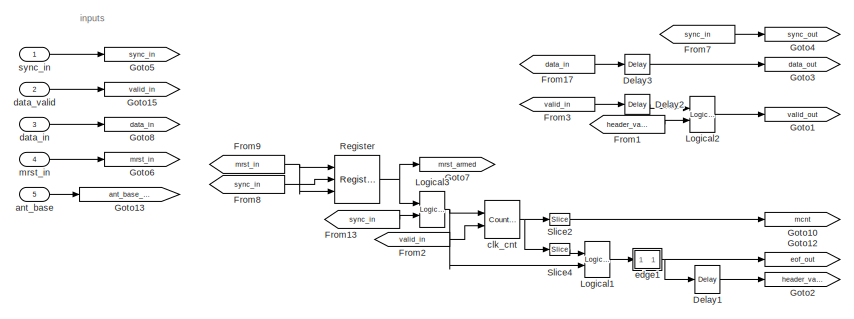
[diagram: packetiser0 - part 1/2, top left region]
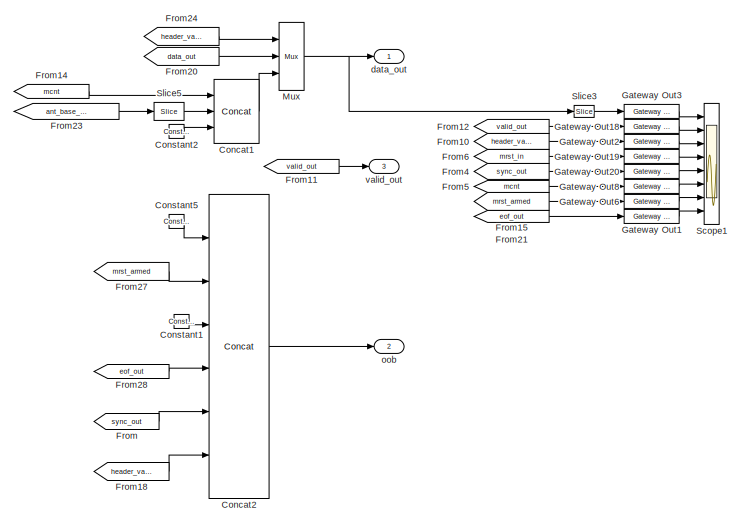
[diagram: packetiser0 - part 2/2, right side, full height]
BLOCK [SubSystem] packetiser0
  FunctionWithSeparateData = off
  MaskCallbackString = ||
  MaskDescription = Package 32 bit data into 64 bits and identify data as coming from antenna 0 or 1
  MaskEnableString = on,on,on
  MaskHideContents = off
  MaskIconFrame = on
  MaskIconOpaque = on
  MaskIconRotate = none
  MaskIconUnits = autoscale
  MaskPromptString = Payload length in 64bit words (2^n):|Number of dual-pol antennas per board (2^n)|This is antenna number
  MaskStyleString = edit,edit,edit
  MaskTabNameString = ,,
  MaskToolTipString = on,on,on
  MaskTunableValueString = on,on,on
  MaskValueString = 7|1|0
  MaskVarAliasString = ,,
  MaskVariables = num_spectra_bits=@1;ant_bits=@2;ant=@3;
  MaskVisibilityString = on,on,on
  MinAlgLoopOccurrences = off
  Opaque = off
  Ports = [5, 3]
  PropExecContextOutsideSubsystem = off
  RTWSystemCode = Auto
  RequestExecContextInheritance = off
BLOCK [Reference] packetiser0/Concat1  REF=xbsIndex_r4/Concat
  Ports = [3, 1]
  SourceBlock = xbsIndex_r4/Concat
  SourceType = Xilinx Bus Concatenator Block
  block_type = concat
  block_version = 10.1.3
  dbl_ovrd = off
  has_advanced_control = 0
  infoedit = Concatenates two or more inputs.  Output will be cast to an unsigned value with the binary point at zero.
  num_inputs = 3
  sg_icon_stat = 45,64,3,1,white,blue,0,cc9eafd1,right,
  sg_mask_display = fprintf('','COMMENT: begin icon graphics');\npatch([0 1 1 0 ],[0 0 1 1 ],[0.77 0.82 0.91]);\npatch([0.222222 0.0666667 0.311111 0.0666667 0.222222 0.488889 0.555556 0.622222 0.911111 0.688889 0.466667 0.311111 0.555556 0.311111 0.466667 0.688889 0.911111 0.622222 0.555556 0.488889 0.222222 ],[0.21875 0.328125 0.5 0.671875 0.78125 0.78125 0.734375 0.78125 0.78125 0.625 0.78125 0.671875 0.5 0.328125...<+323ch>
  sggui_pos = -1,-1,-1,-1
BLOCK [Reference] packetiser0/Concat2  REF=xbsIndex_r4/Concat
  Ports = [6, 1]
  SourceBlock = xbsIndex_r4/Concat
  SourceType = Xilinx Bus Concatenator Block
  block_type = concat
  block_version = 10.1.3
  dbl_ovrd = off
  has_advanced_control = 0
  infoedit = Concatenates two or more inputs.  Output will be cast to an unsigned value with the binary point at zero.
  num_inputs = 6
  sg_icon_stat = 60,304,6,1,white,blue,0,d0d135ea,right,
  sg_mask_display = fprintf('','COMMENT: begin icon graphics');\npatch([0 1 1 0 ],[0 0 1 1 ],[0.77 0.82 0.91]);\npatch([0.233333 0.0666667 0.3 0.0666667 0.233333 0.5 0.566667 0.633333 0.916667 0.7 0.483333 0.333333 0.583333 0.333333 0.483333 0.7 0.916667 0.633333 0.566667 0.5 0.233333 ],[0.421053 0.453947 0.5 0.546053 0.578947 0.578947 0.565789 0.578947 0.578947 0.536184 0.578947 0.549342 0.5 0.450658 0.421053 0.4638...<+315ch>
  sggui_pos = 20,20,336,165
BLOCK [Reference] packetiser0/Constant1  REF=xbsIndex_r4/Constant
  Ports = [0, 1]
  SourceBlock = xbsIndex_r4/Constant
  SourceType = Xilinx Constant Block Block
  arith_type = Unsigned
  bin_pt = 0
  block_type = constant
  block_version = 10.1.3
  carry = CIN
  const = 0
  dbl_ovrd = off
  dsp48_infoedit = The use of this block for DSP48 instructions is deprecated.  Please use the Opmode block.
  equ = P=C
  explicit_period = off
  has_advanced_control = 0
  inp1 = P
  inp2 = PCIN>>17
  n_bits = 1
  opr = +
  opselect = C
  period = 1
  sg_icon_stat = 15,14,0,1,white,blue,0,bf4ddd8b,right,
  sggui_pos = 21,51,478,435
BLOCK [Reference] packetiser0/Constant2  REF=xbsIndex_r4/Constant
  Ports = [0, 1]
  SourceBlock = xbsIndex_r4/Constant
  SourceType = Xilinx Constant Block Block
  arith_type = Unsigned
  bin_pt = 0
  block_type = constant
  block_version = 10.1.3
  carry = CIN
  const = ant
  dbl_ovrd = off
  dsp48_infoedit = The use of this block for DSP48 instructions is deprecated.  Please use the Opmode block.
  equ = P=C
  explicit_period = off
  has_advanced_control = 0
  inp1 = P
  inp2 = PCIN>>17
  n_bits = ant_bits
  opr = +
  opselect = C
  period = 1
  sg_icon_stat = 15,14,0,1,white,blue,0,bf4ddd8b,right,
  sggui_pos = 21,51,478,435
BLOCK [Reference] packetiser0/Constant5  REF=xbsIndex_r4/Constant
  Ports = [0, 1]
  SourceBlock = xbsIndex_r4/Constant
  SourceType = Xilinx Constant Block Block
  arith_type = Unsigned
  bin_pt = 0
  block_type = constant
  block_version = 10.1.3
  carry = CIN
  const = 0
  dbl_ovrd = off
  dsp48_infoedit = The use of this block for DSP48 instructions is deprecated.  Please use the Opmode block.
  equ = P=C
  explicit_period = off
  has_advanced_control = 0
  inp1 = P
  inp2 = PCIN>>17
  n_bits = 3
  opr = +
  opselect = C
  period = 1
  sg_icon_stat = 15,14,0,1,white,blue,0,bf4ddd8b,right,
  sggui_pos = 21,51,478,435
BLOCK [Reference] packetiser0/Delay1  REF=xbsIndex_r4/Delay
  Ports = [1, 1]
  SourceBlock = xbsIndex_r4/Delay
  SourceType = Xilinx Delay Block
  block_type = delay
  block_version = 10.1.3
  dbl_ovrd = off
  en = off
  has_advanced_control = 0
  infoedit = Hardware notes: A delay line is a chain, each link of which is an SRL16 followed by a flip-flop.
  latency = 1
  reg_retiming = on
  sg_icon_stat = 25,28,1,1,white,blue,0,07b98262,right,
  sg_mask_display = fprintf('','COMMENT: begin icon graphics');\npatch([0 1 1 0 ],[0 0 1 1 ],[0.77 0.82 0.91]);\npatch([0.24 0.08 0.32 0.08 0.24 0.52 0.6 0.68 0.96 0.72 0.52 0.36 0.56 0.36 0.52 0.72 0.96 0.68 0.6 0.52 0.24 ],[0.142857 0.285714 0.5 0.714286 0.857143 0.857143 0.785714 0.857143 0.857143 0.642857 0.821429 0.678571 0.5 0.321429 0.178571 0.357143 0.142857 0.142857 0.214286 0.142857 0.142857 ],[0.98 0.96 0....<+211ch>
  sggui_pos = 25,201,419,313
  xl_area = [0, 0, 0, 0, 0, 0, 0]
  xl_use_area = off
BLOCK [Reference] packetiser0/Delay2  REF=xbsIndex_r4/Delay
  Ports = [1, 1]
  SourceBlock = xbsIndex_r4/Delay
  SourceType = Xilinx Delay Block
  block_type = delay
  block_version = 10.1.3
  dbl_ovrd = off
  en = off
  has_advanced_control = 0
  infoedit = Hardware notes: A delay line is a chain, each link of which is an SRL16 followed by a flip-flop.
  latency = 1
  reg_retiming = on
  sg_icon_stat = 25,20,1,1,white,blue,0,07b98262,right,
  sg_mask_display = fprintf('','COMMENT: begin icon graphics');\npatch([0 1 1 0 ],[0 0 1 1 ],[0.77 0.82 0.91]);\npatch([0.28 0.16 0.36 0.16 0.28 0.48 0.52 0.56 0.8 0.64 0.48 0.36 0.56 0.36 0.48 0.64 0.8 0.56 0.52 0.48 0.28 ],[0.1 0.25 0.5 0.75 0.9 0.9 0.85 0.9 0.9 0.7 0.9 0.75 0.5 0.25 0.1 0.3 0.1 0.1 0.15 0.1 0.1 ],[0.98 0.96 0.92]);\nplot([0 1 1 0 0 ],[0 0 1 1 0 ]);\nfprintf('','COMMENT: end icon graphics');\nfprin...<+122ch>
  sggui_pos = 25,201,419,313
  xl_area = [0, 0, 0, 0, 0, 0, 0]
  xl_use_area = off
BLOCK [Reference] packetiser0/Delay3  REF=xbsIndex_r4/Delay
  Ports = [1, 1]
  SourceBlock = xbsIndex_r4/Delay
  SourceType = Xilinx Delay Block
  block_type = delay
  block_version = 10.1.3
  dbl_ovrd = off
  en = off
  has_advanced_control = 0
  infoedit = Hardware notes: A delay line is a chain, each link of which is an SRL16 followed by a flip-flop.
  latency = 1
  reg_retiming = on
  sg_icon_stat = 25,20,1,1,white,blue,0,07b98262,right,
  sg_mask_display = fprintf('','COMMENT: begin icon graphics');\npatch([0 1 1 0 ],[0 0 1 1 ],[0.77 0.82 0.91]);\npatch([0.28 0.16 0.36 0.16 0.28 0.48 0.52 0.56 0.8 0.64 0.48 0.36 0.56 0.36 0.48 0.64 0.8 0.56 0.52 0.48 0.28 ],[0.1 0.25 0.5 0.75 0.9 0.9 0.85 0.9 0.9 0.7 0.9 0.75 0.5 0.25 0.1 0.3 0.1 0.1 0.15 0.1 0.1 ],[0.98 0.96 0.92]);\nplot([0 1 1 0 0 ],[0 0 1 1 0 ]);\nfprintf('','COMMENT: end icon graphics');\nfprin...<+122ch>
  sggui_pos = 25,201,419,313
  xl_area = [0, 0, 0, 0, 0, 0, 0]
  xl_use_area = off
BLOCK [From] packetiser0/From
  CloseFcn = tagdialog Close
  GotoTag = sync_out
BLOCK [From] packetiser0/From1
  CloseFcn = tagdialog Close
  GotoTag = header_valid
BLOCK [From] packetiser0/From10
  CloseFcn = tagdialog Close
  GotoTag = header_valid
BLOCK [From] packetiser0/From11
  CloseFcn = tagdialog Close
  GotoTag = valid_out
BLOCK [From] packetiser0/From12
  CloseFcn = tagdialog Close
  GotoTag = valid_out
BLOCK [From] packetiser0/From13
  CloseFcn = tagdialog Close
  GotoTag = sync_in
BLOCK [From] packetiser0/From14
  CloseFcn = tagdialog Close
  GotoTag = mcnt
BLOCK [From] packetiser0/From15
  CloseFcn = tagdialog Close
  GotoTag = mrst_armed
BLOCK [From] packetiser0/From17
  CloseFcn = tagdialog Close
  GotoTag = data_in
BLOCK [From] packetiser0/From18
  CloseFcn = tagdialog Close
  GotoTag = header_valid
BLOCK [From] packetiser0/From2
  CloseFcn = tagdialog Close
  GotoTag = valid_in
BLOCK [From] packetiser0/From20
  CloseFcn = tagdialog Close
  GotoTag = data_out
BLOCK [From] packetiser0/From21
  CloseFcn = tagdialog Close
  GotoTag = eof_out
BLOCK [From] packetiser0/From23
  CloseFcn = tagdialog Close
  GotoTag = ant_base_offset
BLOCK [From] packetiser0/From24
  CloseFcn = tagdialog Close
  GotoTag = header_valid
BLOCK [From] packetiser0/From27
  CloseFcn = tagdialog Close
  GotoTag = mrst_armed
BLOCK [From] packetiser0/From28
  CloseFcn = tagdialog Close
  GotoTag = eof_out
BLOCK [From] packetiser0/From3
  CloseFcn = tagdialog Close
  GotoTag = valid_in
BLOCK [From] packetiser0/From4
  CloseFcn = tagdialog Close
  GotoTag = sync_out
BLOCK [From] packetiser0/From5
  CloseFcn = tagdialog Close
  GotoTag = mcnt
BLOCK [From] packetiser0/From6
  CloseFcn = tagdialog Close
  GotoTag = mrst_in
BLOCK [From] packetiser0/From7
  CloseFcn = tagdialog Close
  GotoTag = sync_in
BLOCK [From] packetiser0/From8
  CloseFcn = tagdialog Close
  GotoTag = sync_in
BLOCK [From] packetiser0/From9
  CloseFcn = tagdialog Close
  GotoTag = mrst_in
BLOCK [Reference] packetiser0/Gateway Out1  REF=xbsIndex_r4/Gateway Out
  LOCs = {}
  Ports = [1, 1]
  SourceBlock = xbsIndex_r4/Gateway Out
  SourceType = Xilinx Gateway Out Block
  block_type = gatewayout
  block_version = 10.1.3
  has_advanced_control = 0
  hdl_port = on
  locs_specified = off
  sg_icon_stat = 55,14,1,1,white,yellow,0,cc31b7ac,right,
  sg_mask_display = fprintf('','COMMENT: begin icon graphics');\npatch([0 1 1 0 ],[0 0 1 1 ],[0.95 0.93 0.65]);\npatch([0.418182 0.381818 0.436364 0.381818 0.418182 0.490909 0.509091 0.527273 0.6 0.545455 0.490909 0.454545 0.509091 0.454545 0.490909 0.545455 0.6 0.527273 0.509091 0.490909 0.418182 ],[0.142857 0.285714 0.5 0.714286 0.857143 0.857143 0.785714 0.857143 0.857143 0.642857 0.857143 0.714286 0.5 0.285714 0....<+366ch>  <repeated x8 — deduplicated; at blocks: Gateway Out1, Gateway Out18, Gateway Out19, Gateway Out2, Gateway Out20, Gateway Out3, Gateway Out6, Gateway Out8>
  sggui_pos = -1,-1,-1,-1
  timing_constraint = None
  xl_area = [0, 0, 0, 0, 0, 0, 0]
  xl_use_area = off
BLOCK [Reference] packetiser0/Gateway Out18  REF=xbsIndex_r4/Gateway Out
  LOCs = {}
  Ports = [1, 1]
  SourceBlock = xbsIndex_r4/Gateway Out
  SourceType = Xilinx Gateway Out Block
  block_type = gatewayout
  block_version = 10.1.3
  has_advanced_control = 0
  hdl_port = on
  locs_specified = off
  sg_icon_stat = 55,14,1,1,white,yellow,0,cc31b7ac,right,
  sggui_pos = -1,-1,-1,-1
  timing_constraint = None
  xl_area = [0, 0, 0, 0, 0, 0, 0]
  xl_use_area = off
BLOCK [Reference] packetiser0/Gateway Out19  REF=xbsIndex_r4/Gateway Out
  LOCs = {}
  Ports = [1, 1]
  SourceBlock = xbsIndex_r4/Gateway Out
  SourceType = Xilinx Gateway Out Block
  block_type = gatewayout
  block_version = 10.1.3
  has_advanced_control = 0
  hdl_port = on
  locs_specified = off
  sg_icon_stat = 55,14,1,1,white,yellow,0,cc31b7ac,right,
  sggui_pos = -1,-1,-1,-1
  timing_constraint = None
  xl_area = [0, 0, 0, 0, 0, 0, 0]
  xl_use_area = off
BLOCK [Reference] packetiser0/Gateway Out2  REF=xbsIndex_r4/Gateway Out
  LOCs = {}
  Ports = [1, 1]
  SourceBlock = xbsIndex_r4/Gateway Out
  SourceType = Xilinx Gateway Out Block
  block_type = gatewayout
  block_version = 10.1.3
  has_advanced_control = 0
  hdl_port = on
  locs_specified = off
  sg_icon_stat = 55,14,1,1,white,yellow,0,cc31b7ac,right,
  sggui_pos = -1,-1,-1,-1
  timing_constraint = None
  xl_area = [0, 0, 0, 0, 0, 0, 0]
  xl_use_area = off
BLOCK [Reference] packetiser0/Gateway Out20  REF=xbsIndex_r4/Gateway Out
  LOCs = {}
  Ports = [1, 1]
  SourceBlock = xbsIndex_r4/Gateway Out
  SourceType = Xilinx Gateway Out Block
  block_type = gatewayout
  block_version = 10.1.3
  has_advanced_control = 0
  hdl_port = on
  locs_specified = off
  sg_icon_stat = 55,14,1,1,white,yellow,0,cc31b7ac,right,
  sggui_pos = -1,-1,-1,-1
  timing_constraint = None
  xl_area = [0, 0, 0, 0, 0, 0, 0]
  xl_use_area = off
BLOCK [Reference] packetiser0/Gateway Out3  REF=xbsIndex_r4/Gateway Out
  LOCs = {}
  Ports = [1, 1]
  SourceBlock = xbsIndex_r4/Gateway Out
  SourceType = Xilinx Gateway Out Block
  block_type = gatewayout
  block_version = 10.1.3
  has_advanced_control = 0
  hdl_port = on
  locs_specified = off
  sg_icon_stat = 55,14,1,1,white,yellow,0,cc31b7ac,right,
  sggui_pos = -1,-1,-1,-1
  timing_constraint = None
  xl_area = [0, 0, 0, 0, 0, 0, 0]
  xl_use_area = off
BLOCK [Reference] packetiser0/Gateway Out6  REF=xbsIndex_r4/Gateway Out
  LOCs = {}
  Ports = [1, 1]
  SourceBlock = xbsIndex_r4/Gateway Out
  SourceType = Xilinx Gateway Out Block
  block_type = gatewayout
  block_version = 10.1.3
  has_advanced_control = 0
  hdl_port = on
  locs_specified = off
  sg_icon_stat = 55,14,1,1,white,yellow,0,cc31b7ac,right,
  sggui_pos = -1,-1,-1,-1
  timing_constraint = None
  xl_area = [0, 0, 0, 0, 0, 0, 0]
  xl_use_area = off
BLOCK [Reference] packetiser0/Gateway Out8  REF=xbsIndex_r4/Gateway Out
  LOCs = {}
  Ports = [1, 1]
  SourceBlock = xbsIndex_r4/Gateway Out
  SourceType = Xilinx Gateway Out Block
  block_type = gatewayout
  block_version = 10.1.3
  has_advanced_control = 0
  hdl_port = on
  locs_specified = off
  sg_icon_stat = 55,14,1,1,white,yellow,0,cc31b7ac,right,
  sggui_pos = -1,-1,-1,-1
  timing_constraint = None
  xl_area = [0, 0, 0, 0, 0, 0, 0]
  xl_use_area = off
BLOCK [Goto] packetiser0/Goto1
  GotoTag = valid_out
  TagVisibility = local
BLOCK [Goto] packetiser0/Goto10
  GotoTag = mcnt
  TagVisibility = local
BLOCK [Goto] packetiser0/Goto12
  GotoTag = eof_out
  TagVisibility = local
BLOCK [Goto] packetiser0/Goto13
  GotoTag = ant_base_offset
  TagVisibility = local
BLOCK [Goto] packetiser0/Goto15
  GotoTag = valid_in
  TagVisibility = local
BLOCK [Goto] packetiser0/Goto2
  GotoTag = header_valid
  TagVisibility = local
BLOCK [Goto] packetiser0/Goto3
  GotoTag = data_out
  TagVisibility = local
BLOCK [Goto] packetiser0/Goto4
  GotoTag = sync_out
  TagVisibility = local
BLOCK [Goto] packetiser0/Goto5
  GotoTag = sync_in
  TagVisibility = local
BLOCK [Goto] packetiser0/Goto6
  GotoTag = mrst_in
  TagVisibility = local
BLOCK [Goto] packetiser0/Goto7
  GotoTag = mrst_armed
  TagVisibility = local
BLOCK [Goto] packetiser0/Goto8
  GotoTag = data_in
  TagVisibility = local
BLOCK [Reference] packetiser0/Logical1  REF=xbsIndex_r4/Logical
  Ports = [2, 1]
  SourceBlock = xbsIndex_r4/Logical
  SourceType = Xilinx Logical Block Block
  align_bp = on
  arith_type = Unsigned
  bin_pt = 0
  block_type = logical
  block_version = 10.1.3
  dbl_ovrd = off
  en = off
  has_advanced_control = 0
  inputs = 2
  latency = 0
  logical_function = OR
  n_bits = 1
  precision = Full
  sg_icon_stat = 25,36,2,1,white,blue,0,fc354646,right,
  sg_mask_display = fprintf('','COMMENT: begin icon graphics');\npatch([0 1 1 0 ],[0 0 1 1 ],[0.77 0.82 0.91]);\npatch([0.24 0.08 0.32 0.08 0.24 0.52 0.6 0.68 0.96 0.72 0.52 0.36 0.56 0.36 0.52 0.72 0.96 0.68 0.6 0.52 0.24 ],[0.222222 0.333333 0.5 0.666667 0.777778 0.777778 0.722222 0.777778 0.777778 0.611111 0.75 0.638889 0.5 0.361111 0.25 0.388889 0.222222 0.222222 0.277778 0.222222 0.222222 ],[0.98 0.96 0.92]);\np...<+223ch>
  sggui_pos = 21,71,419,289
  xl_area = [0, 0, 0, 0, 0, 0, 0]
  xl_use_area = off
BLOCK [Reference] packetiser0/Logical2  REF=xbsIndex_r4/Logical
  Ports = [2, 1]
  SourceBlock = xbsIndex_r4/Logical
  SourceType = Xilinx Logical Block Block
  align_bp = on
  arith_type = Unsigned
  bin_pt = 0
  block_type = logical
  block_version = 10.1.3
  dbl_ovrd = off
  en = off
  has_advanced_control = 0
  inputs = 2
  latency = 0
  logical_function = OR
  n_bits = 1
  precision = Full
  sg_icon_stat = 25,36,2,1,white,blue,0,fc354646,right,
  sg_mask_display = fprintf('','COMMENT: begin icon graphics');\npatch([0 1 1 0 ],[0 0 1 1 ],[0.77 0.82 0.91]);\npatch([0.24 0.08 0.32 0.08 0.24 0.52 0.6 0.68 0.96 0.72 0.52 0.36 0.56 0.36 0.52 0.72 0.96 0.68 0.6 0.52 0.24 ],[0.222222 0.333333 0.5 0.666667 0.777778 0.777778 0.722222 0.777778 0.777778 0.611111 0.75 0.638889 0.5 0.361111 0.25 0.388889 0.222222 0.222222 0.277778 0.222222 0.222222 ],[0.98 0.96 0.92]);\np...<+223ch>
  sggui_pos = 21,71,419,289
  xl_area = [0, 0, 0, 0, 0, 0, 0]
  xl_use_area = off
BLOCK [Reference] packetiser0/Logical3  REF=xbsIndex_r4/Logical
  Ports = [2, 1]
  SourceBlock = xbsIndex_r4/Logical
  SourceType = Xilinx Logical Block Block
  align_bp = on
  arith_type = Unsigned
  bin_pt = 0
  block_type = logical
  block_version = 10.1.3
  dbl_ovrd = off
  en = off
  has_advanced_control = 0
  inputs = 2
  latency = 0
  logical_function = AND
  n_bits = 1
  precision = Full
  sg_icon_stat = 25,36,2,1,white,blue,0,0a851f85,right,
  sg_list_contents = {'table'=>{'logical_function'=>'popup(AND|NAND|OR|NOR|XOR|XNOR)','userSelections'=>{'logical_function'=>'AND'}}}
  sg_mask_display = fprintf('','COMMENT: begin icon graphics');\npatch([0 1 1 0 ],[0 0 1 1 ],[0.77 0.82 0.91]);\npatch([0.24 0.08 0.32 0.08 0.24 0.52 0.6 0.68 0.96 0.72 0.52 0.36 0.56 0.36 0.52 0.72 0.96 0.68 0.6 0.52 0.24 ],[0.222222 0.333333 0.5 0.666667 0.777778 0.777778 0.722222 0.777778 0.777778 0.611111 0.75 0.638889 0.5 0.361111 0.25 0.388889 0.222222 0.222222 0.277778 0.222222 0.222222 ],[0.98 0.96 0.92]);\np...<+224ch>
  sggui_pos = 22,201,419,289
  xl_area = [0, 0, 0, 0, 0, 0, 0]
  xl_use_area = off
BLOCK [Reference] packetiser0/Mux  REF=xbsIndex_r4/Mux
  Ports = [3, 1]
  SourceBlock = xbsIndex_r4/Mux
  SourceType = Xilinx Bus Multiplexer Block
  arith_type = Signed  (2's comp)
  bin_pt = 2
  block_type = mux
  block_version = 10.1.3
  dbl_ovrd = off
  en = off
  has_advanced_control = 0
  inputs = 2
  latency = 0
  n_bits = 8
  overflow = Wrap
  precision = Full
  quantization = Truncate
  sg_icon_stat = 25,68,3,1,white,blue,3,eb98d690,right,
  sg_mask_display = fprintf('','COMMENT: begin icon graphics');\npatch([0 1 1 0 ],[0 0.142857 0.857143 1 ],[0.77 0.82 0.91]);\npatch([0.24 0.08 0.32 0.08 0.24 0.52 0.6 0.68 0.96 0.72 0.52 0.36 0.56 0.36 0.52 0.72 0.96 0.68 0.6 0.52 0.24 ],[0.352941 0.411765 0.5 0.588235 0.647059 0.647059 0.617647 0.647059 0.647059 0.558824 0.632353 0.573529 0.5 0.426471 0.367647 0.441176 0.352941 0.352941 0.382353 0.352941 0.352941 ]...<+372ch>
  sggui_pos = -1,-1,-1,-1
  xl_area = [0, 0, 0, 0, 0, 0, 0]
  xl_use_area = off
BLOCK [Reference] packetiser0/Register  REF=xbsIndex_r4/Register
  Ports = [3, 1]
  SourceBlock = xbsIndex_r4/Register
  SourceType = Xilinx Register Block
  block_type = register
  block_version = 10.1.3
  dbl_ovrd = off
  en = on
  has_advanced_control = 0
  init = 0
  rst = on
  sg_icon_stat = 45,48,3,1,white,blue,0,b821322c,right,
  sg_mask_display = fprintf('','COMMENT: begin icon graphics');\npatch([0 1 1 0 ],[0 0 1 1 ],[0.77 0.82 0.91]);\npatch([0.222222 0.0666667 0.311111 0.0666667 0.222222 0.488889 0.555556 0.622222 0.911111 0.688889 0.466667 0.311111 0.555556 0.311111 0.466667 0.688889 0.911111 0.622222 0.555556 0.488889 0.222222 ],[0.125 0.270833 0.5 0.729167 0.875 0.875 0.8125 0.875 0.875 0.666667 0.875 0.729167 0.5 0.270833 0.125 0.33...<+444ch>
  sggui_pos = 26,206,419,209
  xl_area = [0, 0, 0, 0, 0, 0, 0]
  xl_use_area = off
BLOCK [Scope] packetiser0/Scope1
  DataFormat = StructureWithTime
  Floating = off
  LimitDataPoints = off
  NumInputPorts = 8
  Ports = [8]
  SampleTime = 0
  SaveName = ScopeData5
  YMax = 7.5e+07~1~1~1~1~1000~1~1
  YMin = 0~0~0~-1~0~100~-1~0
  ZoomMode = xonly
BLOCK [Reference] packetiser0/Slice2  REF=xbsIndex_r4/Slice
  Ports = [1, 1]
  SourceBlock = xbsIndex_r4/Slice
  SourceType = Xilinx Bit Slice Extractor Block
  base0 = LSB of Input
  base1 = MSB of Input
  bit0 = 0
  bit1 = 0
  block_type = slice
  block_version = 10.1.3
  boolean_output = off
  dbl_ovrd = off
  has_advanced_control = 0
  mode = Upper Bit Location + Width
  nbits = 48
  sg_icon_stat = 20,12,1,1,white,blue,0,1fd851a7,right,
  sg_mask_display = fprintf('','COMMENT: begin icon graphics');\npatch([0 1 1 0 ],[0 0 1 1 ],[0.77 0.82 0.91]);\npatch([0.35 0.25 0.4 0.25 0.35 0.5 0.55 0.6 0.75 0.6 0.45 0.35 0.5 0.35 0.45 0.6 0.75 0.6 0.55 0.5 0.35 ],[0.0833333 0.25 0.5 0.75 0.916667 0.916667 0.833333 0.916667 0.916667 0.666667 0.916667 0.75 0.5 0.25 0.0833333 0.333333 0.0833333 0.0833333 0.166667 0.0833333 0.0833333 ],[0.98 0.96 0.92]);\nplot([0 1...<+196ch>  <repeated x3 — deduplicated; at blocks: Slice2, Slice3, Slice4>
  sggui_pos = 30,294,543,482
BLOCK [Reference] packetiser0/Slice3  REF=xbsIndex_r4/Slice
  Ports = [1, 1]
  SourceBlock = xbsIndex_r4/Slice
  SourceType = Xilinx Bit Slice Extractor Block
  base0 = LSB of Input
  base1 = MSB of Input
  bit0 = 0
  bit1 = 0
  block_type = slice
  block_version = 10.1.3
  boolean_output = off
  dbl_ovrd = off
  has_advanced_control = 0
  mode = Lower Bit Location + Width
  nbits = 32
  sg_icon_stat = 20,12,1,1,white,blue,0,1fd851a7,right,
  sggui_pos = 21,201,543,482
BLOCK [Reference] packetiser0/Slice4  REF=xbsIndex_r4/Slice
  Ports = [1, 1]
  SourceBlock = xbsIndex_r4/Slice
  SourceType = Xilinx Bit Slice Extractor Block
  base0 = LSB of Input
  base1 = MSB of Input
  bit0 = num_spectra_bits - 2
  bit1 = 0
  block_type = slice
  block_version = 10.1.3
  boolean_output = on
  dbl_ovrd = off
  has_advanced_control = 0
  mode = Lower Bit Location + Width
  nbits = 1
  sg_icon_stat = 20,12,1,1,white,blue,0,1fd851a7,right,
  sggui_pos = 796,525,543,482
BLOCK [Reference] packetiser0/Slice5  REF=xbsIndex_r4/Slice
  Ports = [1, 1]
  SourceBlock = xbsIndex_r4/Slice
  SourceType = Xilinx Bit Slice Extractor Block
  base0 = LSB of Input
  base1 = LSB of Input
  bit0 = 0
  bit1 = 0
  block_type = slice
  block_version = 10.1.3
  boolean_output = off
  dbl_ovrd = off
  has_advanced_control = 0
  mode = Lower Bit Location + Width
  nbits = 16-ant_bits
  sg_icon_stat = 30,18,1,1,white,blue,0,1fd851a7,right,
  sg_mask_display = fprintf('','COMMENT: begin icon graphics');\npatch([0 1 1 0 ],[0 0 1 1 ],[0.77 0.82 0.91]);\npatch([0.333333 0.233333 0.366667 0.233333 0.333333 0.5 0.533333 0.566667 0.733333 0.6 0.466667 0.366667 0.5 0.366667 0.466667 0.6 0.733333 0.566667 0.533333 0.5 0.333333 ],[0.111111 0.277778 0.5 0.722222 0.888889 0.888889 0.833333 0.888889 0.888889 0.666667 0.888889 0.722222 0.5 0.277778 0.111111 0.333333...<+273ch>
  sggui_pos = 788,443,543,482
BLOCK [Inport] packetiser0/ant_base
  IconDisplay = Port number
  OutDataType = sfix(16)
  OutScaling = 2^0
  Port = 5
BLOCK [Reference] packetiser0/clk_cnt  REF=xbsIndex_r4/Counter
  Ports = [2, 1]
  SourceBlock = xbsIndex_r4/Counter
  SourceType = Xilinx Counter Block
  arith_type = Unsigned
  bin_pt = 0
  block_type = counter
  block_version = 10.1.3
  cnt_by_val = 1
  cnt_to = Inf
  cnt_type = Free Running
  dbl_ovrd = off
  en = on
  explicit_period = off
  has_advanced_control = 0
  implementation = Fabric
  infoedit = Hardware notes: Free running counters are the least expensive in hardware.  A count limited counter is implemented by combining a counter with a comparator.
  load_pin = off
  n_bits = 48 + (num_spectra_bits-2)
  operation = Up
  period = 1
  rst = on
  sg_icon_stat = 35,38,2,1,white,blue,0,d605779c,right,
  sg_mask_display = fprintf('','COMMENT: begin icon graphics');\npatch([0 1 1 0 ],[0 0 1 1 ],[0.77 0.82 0.91]);\npatch([0.228571 0.0571429 0.285714 0.0571429 0.228571 0.485714 0.571429 0.657143 0.942857 0.714286 0.514286 0.371429 0.6 0.371429 0.514286 0.714286 0.942857 0.657143 0.571429 0.485714 0.228571 ],[0.131579 0.289474 0.5 0.710526 0.868421 0.868421 0.789474 0.868421 0.868421 0.657895 0.842105 0.710526 0.5 0.28...<+382ch>
  sggui_pos = 32,348,419,748
  start_count = 0
  use_behavioral_HDL = off
  use_rpm = on
  xl_area = [0, 0, 0, 0, 0, 0, 0]
  xl_use_area = off
BLOCK [Inport] packetiser0/data_in
  IconDisplay = Port number
  OutDataType = sfix(16)
  OutScaling = 2^0
  Port = 3
BLOCK [Outport] packetiser0/data_out
  IconDisplay = Port number
  OutDataType = sfix(16)
  OutScaling = 2^0
BLOCK [Inport] packetiser0/data_valid
  IconDisplay = Port number
  OutDataType = sfix(16)
  OutScaling = 2^0
  Port = 2
BLOCK [SubSystem] packetiser0/edge1
  FunctionWithSeparateData = off
  MaskDescription = Outputs true if a boolean input signal is not equal to its value last clock.
  MaskHelp = eval('xlWeb([getenv(''MLIB_ROOT''), ''<path>''])')
  MaskHideContents = off
  MaskIconFrame = on
  MaskIconOpaque = on
  MaskIconRotate = none
  MaskIconUnits = autoscale
  MaskType = edge
  MinAlgLoopOccurrences = off
  Opaque = off
  Ports = [1, 1]
  PropExecContextOutsideSubsystem = off
  RTWSystemCode = Auto
  RequestExecContextInheritance = off
BLOCK [Reference] packetiser0/edge1/Delay4  REF=xbsIndex_r4/Delay
  Ports = [1, 1]
  SourceBlock = xbsIndex_r4/Delay
  SourceType = Xilinx Delay Block
  block_type = delay
  block_version = 10.1.3
  dbl_ovrd = off
  en = off
  has_advanced_control = 0
  infoedit = Hardware notes: A delay line is a chain, each link of which is an SRL16 followed by a flip-flop.
  latency = 1
  reg_retiming = off
  sg_icon_stat = 20,20,1,1,white,blue,0,07b98262,right,
  sg_mask_display = fprintf('','COMMENT: begin icon graphics');\npatch([0 1 1 0 ],[0 0 1 1 ],[0.77 0.82 0.91]);\npatch([0.2 0.05 0.3 0.05 0.2 0.45 0.5 0.55 0.85 0.65 0.45 0.3 0.55 0.3 0.45 0.65 0.85 0.55 0.5 0.45 0.2 ],[0.1 0.25 0.5 0.75 0.9 0.9 0.85 0.9 0.9 0.7 0.9 0.75 0.5 0.25 0.1 0.3 0.1 0.1 0.15 0.1 0.1 ],[0.98 0.96 0.92]);\nplot([0 1 1 0 0 ],[0 0 1 1 0 ]);\nfprintf('','COMMENT: end icon graphics');\nfprintf('',...<+116ch>
  sggui_pos = -1,-1,-1,-1
  xl_area = [0, 0, 0, 0, 0, 0, 0]
  xl_use_area = off
BLOCK [Reference] packetiser0/edge1/Logical3  REF=xbsIndex_r4/Logical
  Ports = [2, 1]
  SourceBlock = xbsIndex_r4/Logical
  SourceType = Xilinx Logical Block Block
  align_bp = on
  arith_type = Unsigned
  bin_pt = 2
  block_type = logical
  block_version = 10.1.3
  dbl_ovrd = off
  en = off
  has_advanced_control = 0
  inputs = 2
  latency = 0
  logical_function = XOR
  n_bits = 8
  precision = Full
  sg_icon_stat = 30,29,2,1,white,blue,0,51246cc6,right,
  sg_mask_display = fprintf('','COMMENT: begin icon graphics');\npatch([0 1 1 0 ],[0 0 1 1 ],[0.77 0.82 0.91]);\npatch([0.233333 0.0666667 0.3 0.0666667 0.233333 0.5 0.566667 0.633333 0.9 0.7 0.5 0.333333 0.566667 0.333333 0.5 0.7 0.9 0.633333 0.566667 0.5 0.233333 ],[0.103448 0.275862 0.517241 0.758621 0.931034 0.931034 0.862069 0.931034 0.931034 0.724138 0.931034 0.758621 0.517241 0.275862 0.103448 0.310345 0.10344...<+285ch>
  sggui_pos = -1,-1,-1,-1
  xl_area = [0, 0, 0, 0, 0, 0, 0]
  xl_use_area = off
BLOCK [Inport] packetiser0/edge1/in
  IconDisplay = Port number
  OutDataType = sfix(16)
  OutScaling = 2^0
BLOCK [Outport] packetiser0/edge1/out
  IconDisplay = Port number
  OutDataType = sfix(16)
  OutScaling = 2^0
BLOCK [Inport] packetiser0/mrst_in
  IconDisplay = Port number
  OutDataType = sfix(16)
  OutScaling = 2^0
  Port = 4
BLOCK [Outport] packetiser0/oob
  IconDisplay = Port number
  OutDataType = sfix(16)
  OutScaling = 2^0
  Port = 2
BLOCK [Inport] packetiser0/sync_in
  IconDisplay = Port number
  OutDataType = sfix(16)
  OutScaling = 2^0
BLOCK [Outport] packetiser0/valid_out
  IconDisplay = Port number
  OutDataType = sfix(16)
  OutScaling = 2^0
  Port = 3
BLOCK [SubSystem] sync_gen1
  FunctionWithSeparateData = off
  MaskHideContents = off
  MinAlgLoopOccurrences = off
  Opaque = off
  Ports = [0, 2]
  PropExecContextOutsideSubsystem = off
  RTWSystemCode = Auto
  RequestExecContextInheritance = off
BLOCK [Reference] sync_gen1/Counter  REF=xbsIndex_r4/Counter
  Ports = [1, 1]
  SourceBlock = xbsIndex_r4/Counter
  SourceType = Xilinx Counter Block
  arith_type = Unsigned
  bin_pt = 0
  block_type = counter
  block_version = 10.1.3
  cnt_by_val = 1
  cnt_to = Inf
  cnt_type = Free Running
  dbl_ovrd = off
  en = off
  explicit_period = off
  has_advanced_control = 0
  implementation = Fabric
  infoedit = Hardware notes: Free running counters are the least expensive in hardware.  A count limited counter is implemented by combining a counter with a comparator.
  load_pin = off
  n_bits = 15
  operation = Up
  period = 1
  rst = on
  sg_icon_stat = 40,30,1,1,white,blue,0,c59595e6,right,
  sg_mask_display = fprintf('','COMMENT: begin icon graphics');\npatch([0 1 1 0 ],[0 0 1 1 ],[0.77 0.82 0.91]);\npatch([0.3 0.175 0.35 0.175 0.3 0.5 0.55 0.6 0.8 0.625 0.475 0.35 0.5 0.35 0.475 0.625 0.8 0.6 0.55 0.5 0.3 ],[0.1 0.266667 0.5 0.733333 0.9 0.9 0.833333 0.9 0.9 0.666667 0.866667 0.7 0.5 0.3 0.133333 0.333333 0.1 0.1 0.166667 0.1 0.1 ],[0.98 0.96 0.92]);\nplot([0 1 1 0 0 ],[0 0 1 1 0 ]);\nfprintf('','COMM...<+198ch>
  sggui_pos = 21,201,419,742
  start_count = 0
  use_behavioral_HDL = off
  use_rpm = on
  xl_area = [0, 0, 0, 0, 0, 0, 0]
  xl_use_area = off
BLOCK [Reference] sync_gen1/Gateway In  REF=xbsIndex_r4/Gateway In
  LOCs = {}
  Ports = [1, 1]
  SourceBlock = xbsIndex_r4/Gateway In
  SourceType = Xilinx Gateway In Block
  arith_type = Boolean
  bin_pt = 14
  block_type = gatewayin
  block_version = 11.4
  dbl_ovrd = off
  has_advanced_control = 0
  hdl_port = on
  infoedit = Gateway in block.  Converts inputs of type Simulink integer, double and fixed point to  Xilinx fixed point type.<br><br>Hardware notes:  In hardware these blocks become top level input ports.
  locs_specified = off
  n_bits = 16
  overflow = Saturate
  period = 1
  quantization = Round  (unbiased: +/- Inf)
  sg_icon_stat = 65,20,1,1,white,yellow,0,00d3666e,right,
  sg_mask_display = fprintf('','COMMENT: begin icon graphics');\npatch([0 1 1 0 ],[0 0 1 1 ],[0.95 0.93 0.65]);\npatch([0.415385 0.369231 0.446154 0.369231 0.415385 0.492308 0.507692 0.523077 0.615385 0.553846 0.492308 0.446154 0.523077 0.446154 0.492308 0.553846 0.615385 0.523077 0.507692 0.492308 0.415385 ],[0.1 0.25 0.5 0.75 0.9 0.9 0.85 0.9 0.9 0.7 0.9 0.75 0.5 0.25 0.1 0.3 0.1 0.1 0.15 0.1 0.1 ],[0.98 0.96 0.92]...<+286ch>
  sggui_pos = -1,-1,-1,-1
  timing_constraint = None
  xl_area = [0,0,0,0,0,0,0]
  xl_use_area = off
BLOCK [DiscretePulseGenerator] sync_gen1/Pulse\nGenerator
  Period = 2^17
  PhaseDelay = 1
  Ports = [0, 1]
BLOCK [Reference] sync_gen1/Slice8  REF=xbsIndex_r4/Slice
  Ports = [1, 1]
  SourceBlock = xbsIndex_r4/Slice
  SourceType = Xilinx Bit Slice Extractor Block
  base0 = LSB of Input
  base1 = MSB of Input
  bit0 = 19
  bit1 = 0
  block_type = slice
  block_version = 10.1.3
  boolean_output = on
  dbl_ovrd = off
  has_advanced_control = 0
  mode = Upper Bit Location + Width
  nbits = 1
  sg_icon_stat = 25,18,1,1,white,blue,0,1fd851a7,right,
  sg_mask_display = fprintf('','COMMENT: begin icon graphics');\npatch([0 1 1 0 ],[0 0 1 1 ],[0.77 0.82 0.91]);\npatch([0.32 0.2 0.36 0.2 0.32 0.52 0.56 0.6 0.8 0.64 0.48 0.36 0.52 0.36 0.48 0.64 0.8 0.6 0.56 0.52 0.32 ],[0.111111 0.277778 0.5 0.722222 0.888889 0.888889 0.833333 0.888889 0.888889 0.666667 0.888889 0.722222 0.5 0.277778 0.111111 0.333333 0.111111 0.111111 0.166667 0.111111 0.111111 ],[0.98 0.96 0.92])...<+208ch>
  sggui_pos = -1,-1,-1,-1
BLOCK [SubSystem] sync_gen1/edge
  FunctionWithSeparateData = off
  MaskHideContents = off
  MinAlgLoopOccurrences = off
  Opaque = off
  Ports = [1, 1]
  PropExecContextOutsideSubsystem = off
  RTWSystemCode = Auto
  RequestExecContextInheritance = off
BLOCK [Reference] sync_gen1/edge/Delay4  REF=xbsIndex_r4/Delay
  Ports = [1, 1]
  SourceBlock = xbsIndex_r4/Delay
  SourceType = Xilinx Delay Block
  block_type = delay
  block_version = 10.1.3
  dbl_ovrd = off
  en = off
  has_advanced_control = 0
  infoedit = Hardware notes: A delay line is a chain, each link of which is an SRL16 followed by a flip-flop.
  latency = 1
  reg_retiming = off
  sg_icon_stat = 20,20,1,1,white,blue,0,07b98262,right,
  sg_mask_display = fprintf('','COMMENT: begin icon graphics');\npatch([0 1 1 0 ],[0 0 1 1 ],[0.77 0.82 0.91]);\npatch([0.2 0.05 0.3 0.05 0.2 0.45 0.5 0.55 0.85 0.65 0.45 0.3 0.55 0.3 0.45 0.65 0.85 0.55 0.5 0.45 0.2 ],[0.1 0.25 0.5 0.75 0.9 0.9 0.85 0.9 0.9 0.7 0.9 0.75 0.5 0.25 0.1 0.3 0.1 0.1 0.15 0.1 0.1 ],[0.98 0.96 0.92]);\nplot([0 1 1 0 0 ],[0 0 1 1 0 ]);\nfprintf('','COMMENT: end icon graphics');\nfprintf('',...<+116ch>
  sggui_pos = -1,-1,-1,-1
  xl_area = [0, 0, 0, 0, 0, 0, 0]
  xl_use_area = off
BLOCK [Reference] sync_gen1/edge/Logical3  REF=xbsIndex_r4/Logical
  Ports = [2, 1]
  SourceBlock = xbsIndex_r4/Logical
  SourceType = Xilinx Logical Block Block
  align_bp = on
  arith_type = Unsigned
  bin_pt = 2
  block_type = logical
  block_version = 10.1.3
  dbl_ovrd = off
  en = off
  has_advanced_control = 0
  inputs = 2
  latency = 0
  logical_function = XOR
  n_bits = 8
  precision = Full
  sg_icon_stat = 30,29,2,1,white,blue,0,51246cc6,right,
  sg_mask_display = fprintf('','COMMENT: begin icon graphics');\npatch([0 1 1 0 ],[0 0 1 1 ],[0.77 0.82 0.91]);\npatch([0.233333 0.0666667 0.3 0.0666667 0.233333 0.5 0.566667 0.633333 0.9 0.7 0.5 0.333333 0.566667 0.333333 0.5 0.7 0.9 0.633333 0.566667 0.5 0.233333 ],[0.103448 0.275862 0.517241 0.758621 0.931034 0.931034 0.862069 0.931034 0.931034 0.724138 0.931034 0.758621 0.517241 0.275862 0.103448 0.310345 0.10344...<+285ch>
  sggui_pos = -1,-1,-1,-1
  xl_area = [0, 0, 0, 0, 0, 0, 0]
  xl_use_area = off
BLOCK [Inport] sync_gen1/edge/in
  IconDisplay = Port number
  OutDataType = sfix(16)
  OutScaling = 2^0
BLOCK [Outport] sync_gen1/edge/out
  IconDisplay = Port number
  OutDataType = sfix(16)
  OutScaling = 2^0
BLOCK [Outport] sync_gen1/mrst
  IconDisplay = Port number
  OutDataType = sfix(16)
  OutScaling = 2^0
  Port = 2
BLOCK [SubSystem] sync_gen1/posedge1
  FunctionWithSeparateData = off
  MaskHideContents = off
  MinAlgLoopOccurrences = off
  Opaque = off
  Ports = [1, 1]
  PropExecContextOutsideSubsystem = off
  RTWSystemCode = Auto
  RequestExecContextInheritance = off
  Tag = Rising Edge Detector
BLOCK [Reference] sync_gen1/posedge1/Delay  REF=xbsIndex_r4/Delay
  Ports = [1, 1]
  SourceBlock = xbsIndex_r4/Delay
  SourceType = Xilinx Delay Block
  block_type = delay
  block_version = 10.1.3
  dbl_ovrd = off
  en = off
  has_advanced_control = 0
  infoedit = Hardware notes: A delay line is a chain, each link of which is an SRL16 followed by a flip-flop.
  latency = 1
  reg_retiming = off
  sg_icon_stat = 45,46,1,1,white,blue,0,07b98262,right,
  sg_mask_display = fprintf('','COMMENT: begin icon graphics');\npatch([0 1 1 0 ],[0 0 1 1 ],[0.77 0.82 0.91]);\npatch([0.222222 0.0666667 0.311111 0.0666667 0.222222 0.488889 0.555556 0.622222 0.911111 0.688889 0.466667 0.311111 0.555556 0.311111 0.466667 0.688889 0.911111 0.622222 0.555556 0.488889 0.222222 ],[0.108696 0.26087 0.5 0.73913 0.891304 0.891304 0.826087 0.891304 0.891304 0.673913 0.891304 0.73913 0.5 0....<+295ch>
  sggui_pos = -1,-1,-1,-1
  xl_area = [0, 0, 0, 0, 0, 0, 0]
  xl_use_area = off
BLOCK [Inport] sync_gen1/posedge1/In
  IconDisplay = Port number
  OutDataType = sfix(16)
  OutScaling = 2^0
BLOCK [Reference] sync_gen1/posedge1/Inverter  REF=xbsIndex_r4/Inverter
  Ports = [1, 1]
  SourceBlock = xbsIndex_r4/Inverter
  SourceType = Xilinx Inverter Block
  block_type = inv
  block_version = 10.1.3
  dbl_ovrd = off
  en = off
  has_advanced_control = 0
  infoedit = Bitwise logical negation (one's complement) operator.
  latency = 0
  sg_icon_stat = 50,34,1,1,white,blue,0,267846e5,right,
  sg_mask_display = fprintf('','COMMENT: begin icon graphics');\npatch([0 1 1 0 ],[0 0 1 1 ],[0.77 0.82 0.91]);\npatch([0.32 0.2 0.36 0.2 0.32 0.5 0.54 0.58 0.78 0.62 0.48 0.38 0.54 0.38 0.48 0.62 0.78 0.58 0.54 0.5 0.32 ],[0.117647 0.294118 0.529412 0.764706 0.941176 0.941176 0.882353 0.941176 0.941176 0.705882 0.911765 0.764706 0.529412 0.294118 0.147059 0.352941 0.117647 0.117647 0.176471 0.117647 0.117647 ],[0.98...<+201ch>
  sggui_pos = -1,-1,-1,-1
  xl_area = [0, 0, 0, 0, 0, 0, 0]
  xl_use_area = off
BLOCK [Reference] sync_gen1/posedge1/Logical  REF=xbsIndex_r4/Logical
  Ports = [2, 1]
  SourceBlock = xbsIndex_r4/Logical
  SourceType = Xilinx Logical Block Block
  align_bp = on
  arith_type = Unsigned
  bin_pt = 2
  block_type = logical
  block_version = 10.1.3
  dbl_ovrd = off
  en = off
  has_advanced_control = 0
  inputs = 2
  latency = 0
  logical_function = AND
  n_bits = 8
  precision = Full
  sg_icon_stat = 60,87,2,1,white,blue,0,0a851f85,right,
  sg_mask_display = fprintf('','COMMENT: begin icon graphics');\npatch([0 1 1 0 ],[0 0 1 1 ],[0.77 0.82 0.91]);\npatch([0.233333 0.0666667 0.3 0.0666667 0.233333 0.5 0.566667 0.633333 0.916667 0.7 0.483333 0.333333 0.583333 0.333333 0.483333 0.7 0.916667 0.633333 0.566667 0.5 0.233333 ],[0.229885 0.344828 0.505747 0.666667 0.781609 0.781609 0.735632 0.781609 0.781609 0.632184 0.781609 0.678161 0.505747 0.333333 0.229...<+304ch>
  sggui_pos = -1,-1,-1,-1
  xl_area = [0, 0, 0, 0, 0, 0, 0]
  xl_use_area = off
BLOCK [Outport] sync_gen1/posedge1/Out
  IconDisplay = Port number
  OutDataType = sfix(16)
  OutScaling = 2^0
BLOCK [Outport] sync_gen1/sync
  IconDisplay = Port number
  OutDataType = sfix(16)
  OutScaling = 2^0
ANNOTATION (root): JRM\n2010-
ANNOTATION corner turner0: Choose between writing even and odd fchan data into\nthe XAUI packetiser.
ANNOTATION corner turner0: Enable writing the 64-bit word into the XAUI block.
ANNOTATION corner turner0: Make the 128-bit chunk read address for port B.
ANNOTATION corner turner0: Re-order the data from the 128-bit word from memory\ninto 64-bit words to go into the XAUI core.\nIn each 16-bit slice is fchan data from 2 pols. So there\nare four pieces of data per pol into the XAUI packetiser.
ANNOTATION corner turner0: Select between writing even and odd fchans to the XAUI.
ANNOTATION corner turner0: The only outputs are the data , a data valid line and the sync.
ANNOTATION corner turner0: The output from the QDR corner turner is series of two pols freq channels in pairs.\ni.e. n samples of f0 and f1 for p0 and p1, then n samples of f2 and f3, etc.
ANNOTATION corner turner0: The sync_out will pulse before the first valid 64-bit packet.
ANNOTATION corner turner0: Use a dual-port memory block to buffer the 32-bit output from the\nQDR corner turner so we can make 64-bit chunks for the XAUI packetiser.
ANNOTATION corner turner0/qdr_ct: Alternating WR then RD\nNo command is issued\non the sync cycle
ANNOTATION corner turner0/qdr_ct: Reorder required as QDR performs\nbursts of two 36-bit words
ANNOTATION corner turner0/qdr_ct: Straight counter for\nwrite address
ANNOTATION corner turner0/qdr_ct: delay: 2^(odepth*idepth) + 10(qdr_latency) + 1\n(read command issued after write cycle)
ANNOTATION packetiser0: inputs
NET Constant1:1 -> corner turner0:2, corner turner0:3
LINE Constant3:1 -> ant_base:1
LINE From1:1 -> corner turner0:1
LINE From2:1 -> packetiser0:4
LINE Gateway Out11:1 -> Scope3:1
LINE Gateway Out12:1 -> Scope3:2
LINE Gateway Out13:1 -> Scope3:3
LINE Gateway Out14:1 -> Scope3:4
LINE Gateway Out15:1 -> Scope3:5
LINE Gateway Out16:1 -> Scope3:6
LINE ant_base:1 -> packetiser0:5
LINE corner turner0/Concat3:1 -> corner turner0/buffer:2
LINE corner turner0/Concat4:1 -> corner turner0/Goto16:1
LINE corner turner0/Concat5:1 -> corner turner0/Goto19:1
NET corner turner0/Concat6:1 -> corner turner0/Goto3:1, corner turner0/qdr_ct:2
LINE corner turner0/Concat7:1 -> corner turner0/Goto20:1
LINE corner turner0/Constant1:1 -> corner turner0/buffer:3
LINE corner turner0/Constant2:1 -> corner turner0/buffer:5
LINE corner turner0/Constant3:1 -> corner turner0/buffer:6
LINE corner turner0/Constant8:1 -> corner turner0/Concat6:1
NET corner turner0/Counter4:1 -> corner turner0/Goto15:1, corner turner0/buffer:1
LINE corner turner0/Delay:1 -> corner turner0/Goto10:1
LINE corner turner0/From10:1 -> corner turner0/Gateway Out7:1
LINE corner turner0/From11:1 -> corner turner0/Gateway Out8:1
LINE corner turner0/From12:1 -> corner turner0/data_valid:1
LINE corner turner0/From13:1 -> corner turner0/Gateway Out10:1
LINE corner turner0/From14:1 -> corner turner0/sync_out:1
LINE corner turner0/From15:1 -> corner turner0/Delay:1
LINE corner turner0/From16:1 -> corner turner0/Concat3:2
LINE corner turner0/From17:1 -> corner turner0/Counter4:1
LINE corner turner0/From18:1 -> corner turner0/Gateway Out3:1
LINE corner turner0/From1:1 -> corner turner0/Concat3:4
LINE corner turner0/From20:1 -> corner turner0/Gateway Out4:1
LINE corner turner0/From21:1 -> corner turner0/Gateway Out14:1
LINE corner turner0/From22:1 -> corner turner0/Gateway Out15:1
LINE corner turner0/From23:1 -> corner turner0/Gateway Out16:1
LINE corner turner0/From24:1 -> corner turner0/Gateway Out5:1
LINE corner turner0/From25:1 -> corner turner0/Gateway Out13:1
LINE corner turner0/From26:1 -> corner turner0/buffer:4
NET corner turner0/From27:1 -> corner turner0/Slice11:1, corner turner0/Slice7:1
LINE corner turner0/From28:1 -> corner turner0/Slice12:1
NET corner turner0/From29:1 -> corner turner0/Slice10:1, corner turner0/Slice13:1, corner turner0/Slice14:1, corner turner0/Slice15:1, corner turner0/Slice16:1, corner turner0/Slice17:1, corner turner0/Slice8:1, corner turner0/Slice9:1
LINE corner turner0/From2:1 -> corner turner0/Concat3:3
LINE corner turner0/From30:1 -> corner turner0/Mux:2
LINE corner turner0/From31:1 -> corner turner0/Mux:1
LINE corner turner0/From32:1 -> corner turner0/Mux:3
LINE corner turner0/From33:1 -> corner turner0/Gateway Out17:1
NET corner turner0/From34:1 -> corner turner0/Slice18:1, corner turner0/Slice19:1, corner turner0/Slice20:1, corner turner0/Slice21:1, corner turner0/Slice22:1, corner turner0/Slice23:1, corner turner0/Slice24:1, corner turner0/Slice25:1
LINE corner turner0/From35:1 -> corner turner0/Gateway Out26:1
LINE corner turner0/From36:1 -> corner turner0/Slice26:1
LINE corner turner0/From3:1 -> corner turner0/Gateway Out9:1
LINE corner turner0/From4:1 -> corner turner0/Gateway Out11:1
LINE corner turner0/From5:1 -> corner turner0/Gateway Out12:1
LINE corner turner0/From6:1 -> corner turner0/Gateway Out1:1
LINE corner turner0/From7:1 -> corner turner0/Gateway Out2:1
LINE corner turner0/From8:1 -> corner turner0/Concat3:1
LINE corner turner0/From9:1 -> corner turner0/data_out:1
LINE corner turner0/Gateway Out10:1 -> corner turner0/ct output:1
LINE corner turner0/Gateway Out11:1 -> corner turner0/ct output:5
LINE corner turner0/Gateway Out12:1 -> corner turner0/ct output:6
LINE corner turner0/Gateway Out13:1 -> corner turner0/reorder_for_xaui:6
LINE corner turner0/Gateway Out14:1 -> corner turner0/reorder_for_xaui:2
LINE corner turner0/Gateway Out15:1 -> corner turner0/reorder_for_xaui:3
LINE corner turner0/Gateway Out16:1 -> corner turner0/reorder_for_xaui:4
LINE corner turner0/Gateway Out17:1 -> corner turner0/reorder_for_xaui:7
LINE corner turner0/Gateway Out18:1 -> corner turner0/xaui word deconstructed:1
LINE corner turner0/Gateway Out19:1 -> corner turner0/xaui word deconstructed:2
LINE corner turner0/Gateway Out1:1 -> corner turner0/reorder_for_xaui:8
LINE corner turner0/Gateway Out20:1 -> corner turner0/xaui word deconstructed:3
LINE corner turner0/Gateway Out21:1 -> corner turner0/xaui word deconstructed:4
LINE corner turner0/Gateway Out22:1 -> corner turner0/xaui word deconstructed:5
LINE corner turner0/Gateway Out23:1 -> corner turner0/xaui word deconstructed:6
LINE corner turner0/Gateway Out24:1 -> corner turner0/xaui word deconstructed:7
LINE corner turner0/Gateway Out25:1 -> corner turner0/xaui word deconstructed:8
LINE corner turner0/Gateway Out26:1 -> corner turner0/xaui word deconstructed:10
LINE corner turner0/Gateway Out2:1 -> corner turner0/xaui word deconstructed:9
LINE corner turner0/Gateway Out3:1 -> corner turner0/reorder_for_xaui:9
LINE corner turner0/Gateway Out4:1 -> corner turner0/reorder_for_xaui:1
LINE corner turner0/Gateway Out5:1 -> corner turner0/reorder_for_xaui:5
LINE corner turner0/Gateway Out7:1 -> corner turner0/ct output:2
LINE corner turner0/Gateway Out8:1 -> corner turner0/ct output:3
LINE corner turner0/Gateway Out9:1 -> corner turner0/ct output:4
LINE corner turner0/Inverter:1 -> corner turner0/Concat4:1
LINE corner turner0/Mux:1 -> corner turner0/Goto21:1
LINE corner turner0/Slice10:1 -> corner turner0/Concat5:3
LINE corner turner0/Slice11:1 -> corner turner0/Concat4:2
LINE corner turner0/Slice12:1 -> corner turner0/Goto18:1
LINE corner turner0/Slice13:1 -> corner turner0/Concat5:4
LINE corner turner0/Slice14:1 -> corner turner0/Concat7:3
LINE corner turner0/Slice15:1 -> corner turner0/Concat7:4
LINE corner turner0/Slice16:1 -> corner turner0/Concat7:1
LINE corner turner0/Slice17:1 -> corner turner0/Concat7:2
LINE corner turner0/Slice18:1 -> corner turner0/Gateway Out20:1
LINE corner turner0/Slice19:1 -> corner turner0/Gateway Out21:1
NET corner turner0/Slice1:1 -> corner turner0/Goto6:1, corner turner0/Slice5:1, corner turner0/Slice6:1
LINE corner turner0/Slice20:1 -> corner turner0/Gateway Out18:1
LINE corner turner0/Slice21:1 -> corner turner0/Gateway Out19:1
LINE corner turner0/Slice22:1 -> corner turner0/Gateway Out24:1
LINE corner turner0/Slice23:1 -> corner turner0/Gateway Out25:1
LINE corner turner0/Slice24:1 -> corner turner0/Gateway Out22:1
LINE corner turner0/Slice25:1 -> corner turner0/Gateway Out23:1
LINE corner turner0/Slice26:1 -> corner turner0/Goto22:1
NET corner turner0/Slice27:1 -> corner turner0/Goto5:1, corner turner0/Slice3:1, corner turner0/Slice4:1
LINE corner turner0/Slice3:1 -> corner turner0/Goto2:1
LINE corner turner0/Slice4:1 -> corner turner0/Goto1:1
LINE corner turner0/Slice5:1 -> corner turner0/Goto7:1
LINE corner turner0/Slice6:1 -> corner turner0/Goto8:1
LINE corner turner0/Slice7:1 -> corner turner0/Inverter:1
LINE corner turner0/Slice8:1 -> corner turner0/Concat5:1
LINE corner turner0/Slice9:1 -> corner turner0/Concat5:2
LINE corner turner0/buffer:1 -> corner turner0/Terminator:1
LINE corner turner0/buffer:2 -> corner turner0/Goto17:1
LINE corner turner0/p0:1 -> corner turner0/Concat6:2
LINE corner turner0/p1:1 -> corner turner0/Concat6:3
NET corner turner0/qdr_ct/Concat:1 -> corner turner0/qdr_ct/Goto4:1, corner turner0/qdr_ct/Mux:3
LINE corner turner0/qdr_ct/Constant1:1 -> corner turner0/qdr_ct/reorder:2
LINE corner turner0/qdr_ct/Constant:1 -> corner turner0/qdr_ct/qdr:3
LINE corner turner0/qdr_ct/From10:1 -> corner turner0/qdr_ct/Gateway Out4:1
LINE corner turner0/qdr_ct/From11:1 -> corner turner0/qdr_ct/Gateway Out2:1
LINE corner turner0/qdr_ct/From12:1 -> corner turner0/qdr_ct/Gateway Out3:1
LINE corner turner0/qdr_ct/From13:1 -> corner turner0/qdr_ct/Gateway Out1:1
LINE corner turner0/qdr_ct/From14:1 -> corner turner0/qdr_ct/Gateway Out6:1
LINE corner turner0/qdr_ct/From1:1 -> corner turner0/qdr_ct/ctrl_state:2
LINE corner turner0/qdr_ct/From2:1 -> corner turner0/qdr_ct/wr_addr:1
LINE corner turner0/qdr_ct/From3:1 -> corner turner0/qdr_ct/wr_addr:2
LINE corner turner0/qdr_ct/From4:1 -> corner turner0/qdr_ct/rd_addr:1
LINE corner turner0/qdr_ct/From5:1 -> corner turner0/qdr_ct/rd_addr:2
LINE corner turner0/qdr_ct/From6:1 -> corner turner0/qdr_ct/Mux:1
LINE corner turner0/qdr_ct/From7:1 -> corner turner0/qdr_ct/qdr:2
LINE corner turner0/qdr_ct/From8:1 -> corner turner0/qdr_ct/qdr:1
LINE corner turner0/qdr_ct/From9:1 -> corner turner0/qdr_ct/sync_delay:1
LINE corner turner0/qdr_ct/Gateway Out1:1 -> corner turner0/qdr_ct/addresses:4
LINE corner turner0/qdr_ct/Gateway Out2:1 -> corner turner0/qdr_ct/addresses:3
LINE corner turner0/qdr_ct/Gateway Out3:1 -> corner turner0/qdr_ct/addresses:1
LINE corner turner0/qdr_ct/Gateway Out4:1 -> corner turner0/qdr_ct/addresses:2
LINE corner turner0/qdr_ct/Gateway Out6:1 -> corner turner0/qdr_ct/addresses:5
NET corner turner0/qdr_ct/Inverter:1 -> corner turner0/qdr_ct/Goto1:1, corner turner0/qdr_ct/ctrl_state:1
LINE corner turner0/qdr_ct/Mux:1 -> corner turner0/qdr_ct/qdr:4
NET corner turner0/qdr_ct/Slice:1 -> corner turner0/qdr_ct/Goto2:1, corner turner0/qdr_ct/Inverter:1
LINE corner turner0/qdr_ct/buffer_sel:1 -> corner turner0/qdr_ct/Concat:1
LINE corner turner0/qdr_ct/chan_sel:1 -> corner turner0/qdr_ct/Concat:3
LINE corner turner0/qdr_ct/ctrl_state:1 -> corner turner0/qdr_ct/Slice:1
LINE corner turner0/qdr_ct/d:1 -> corner turner0/qdr_ct/qdr:5
LINE corner turner0/qdr_ct/dump_sel:1 -> corner turner0/qdr_ct/Concat:2
LINE corner turner0/qdr_ct/posedge:1 -> corner turner0/qdr_ct/Goto:1
LINE corner turner0/qdr_ct/qdr:1 -> corner turner0/qdr_ct/reorder:3
LINE corner turner0/qdr_ct/qdr:2 -> corner turner0/qdr_ct/Terminator3:1
LINE corner turner0/qdr_ct/qdr:3 -> corner turner0/qdr_ct/Terminator2:1
LINE corner turner0/qdr_ct/qdr:4 -> corner turner0/qdr_ct/Terminator1:1
LINE corner turner0/qdr_ct/qdr:5 -> corner turner0/qdr_ct/Terminator:1
NET corner turner0/qdr_ct/rd_addr:1 -> corner turner0/qdr_ct/buffer_sel:1, corner turner0/qdr_ct/chan_sel:1, corner turner0/qdr_ct/dump_sel:1
NET corner turner0/qdr_ct/reorder/Counter:1 -> corner turner0/qdr_ct/reorder/Slice1:1, corner turner0/qdr_ct/reorder/Slice2:1
LINE corner turner0/qdr_ct/reorder/Mux:1 -> corner turner0/qdr_ct/reorder/bram0:1
LINE corner turner0/qdr_ct/reorder/Slice1:1 -> corner turner0/qdr_ct/reorder/delay_sel:1
NET corner turner0/qdr_ct/reorder/Slice2:1 -> corner turner0/qdr_ct/reorder/delay_d0:1, corner turner0/qdr_ct/reorder/map1:1
LINE corner turner0/qdr_ct/reorder/bram0:1 -> corner turner0/qdr_ct/reorder/dout0:1
LINE corner turner0/qdr_ct/reorder/delay_d0:1 -> corner turner0/qdr_ct/reorder/Mux:2
LINE corner turner0/qdr_ct/reorder/delay_din0:1 -> corner turner0/qdr_ct/reorder/bram0:2
LINE corner turner0/qdr_ct/reorder/delay_map1:1 -> corner turner0/qdr_ct/reorder/Mux:3
LINE corner turner0/qdr_ct/reorder/delay_map2:1 -> corner turner0/qdr_ct/reorder/Mux:4
LINE corner turner0/qdr_ct/reorder/delay_map3:1 -> corner turner0/qdr_ct/reorder/Mux:5
LINE corner turner0/qdr_ct/reorder/delay_map4:1 -> corner turner0/qdr_ct/reorder/Mux:6
LINE corner turner0/qdr_ct/reorder/delay_map5:1 -> corner turner0/qdr_ct/reorder/Mux:7
LINE corner turner0/qdr_ct/reorder/delay_map6:1 -> corner turner0/qdr_ct/reorder/Mux:8
LINE corner turner0/qdr_ct/reorder/delay_map7:1 -> corner turner0/qdr_ct/reorder/Mux:9
LINE corner turner0/qdr_ct/reorder/delay_sel:1 -> corner turner0/qdr_ct/reorder/Mux:1
LINE corner turner0/qdr_ct/reorder/delay_valid:1 -> corner turner0/qdr_ct/reorder/valid:1
NET corner turner0/qdr_ct/reorder/delay_we:1 -> corner turner0/qdr_ct/reorder/bram0:3, corner turner0/qdr_ct/reorder/delay_valid:1
LINE corner turner0/qdr_ct/reorder/din0:1 -> corner turner0/qdr_ct/reorder/delay_din0:1
NET corner turner0/qdr_ct/reorder/en:1 -> corner turner0/qdr_ct/reorder/Counter:2, corner turner0/qdr_ct/reorder/delay_we:1, corner turner0/qdr_ct/reorder/sync_delay_en:2
NET corner turner0/qdr_ct/reorder/map1:1 -> corner turner0/qdr_ct/reorder/delay_map1:1, corner turner0/qdr_ct/reorder/map2:1
NET corner turner0/qdr_ct/reorder/map2:1 -> corner turner0/qdr_ct/reorder/delay_map2:1, corner turner0/qdr_ct/reorder/map3:1
NET corner turner0/qdr_ct/reorder/map3:1 -> corner turner0/qdr_ct/reorder/delay_map3:1, corner turner0/qdr_ct/reorder/map4:1
NET corner turner0/qdr_ct/reorder/map4:1 -> corner turner0/qdr_ct/reorder/delay_map4:1, corner turner0/qdr_ct/reorder/map5:1
NET corner turner0/qdr_ct/reorder/map5:1 -> corner turner0/qdr_ct/reorder/delay_map5:1, corner turner0/qdr_ct/reorder/map6:1
NET corner turner0/qdr_ct/reorder/map6:1 -> corner turner0/qdr_ct/reorder/delay_map6:1, corner turner0/qdr_ct/reorder/map7:1
LINE corner turner0/qdr_ct/reorder/map7:1 -> corner turner0/qdr_ct/reorder/delay_map7:1
LINE corner turner0/qdr_ct/reorder/post_sync_delay:1 -> corner turner0/qdr_ct/reorder/sync_out:1
LINE corner turner0/qdr_ct/reorder/pre_sync_delay:1 -> corner turner0/qdr_ct/reorder/sync_delay_en:1
NET corner turner0/qdr_ct/reorder/sync:1 -> corner turner0/qdr_ct/reorder/Counter:1, corner turner0/qdr_ct/reorder/pre_sync_delay:1
LINE corner turner0/qdr_ct/reorder/sync_delay_en:1 -> corner turner0/qdr_ct/reorder/post_sync_delay:1
LINE corner turner0/qdr_ct/reorder:1 -> corner turner0/qdr_ct/sync_out:1
LINE corner turner0/qdr_ct/reorder:2 -> corner turner0/qdr_ct/Terminator4:1
LINE corner turner0/qdr_ct/reorder:3 -> corner turner0/qdr_ct/q:1
LINE corner turner0/qdr_ct/sync:1 -> corner turner0/qdr_ct/posedge:1
LINE corner turner0/qdr_ct/sync_delay:1 -> corner turner0/qdr_ct/reorder:1
NET corner turner0/qdr_ct/wr_addr:1 -> corner turner0/qdr_ct/Goto3:1, corner turner0/qdr_ct/Mux:2
LINE corner turner0/qdr_ct:1 -> corner turner0/Goto4:1
NET corner turner0/qdr_ct:2 -> corner turner0/Slice1:1, corner turner0/Slice27:1
NET corner turner0/sync:1 -> corner turner0/Goto9:1, corner turner0/qdr_ct:1
NET corner turner0:1 -> Gateway Out11:1, packetiser0:1
NET corner turner0:2 -> Gateway Out12:1, packetiser0:2
NET corner turner0:3 -> Gateway Out13:1, packetiser0:3
LINE packetiser0/Concat1:1 -> packetiser0/Mux:3
LINE packetiser0/Concat2:1 -> packetiser0/oob:1
LINE packetiser0/Constant1:1 -> packetiser0/Concat2:3
LINE packetiser0/Constant2:1 -> packetiser0/Concat1:3
LINE packetiser0/Constant5:1 -> packetiser0/Concat2:1
LINE packetiser0/Delay1:1 -> packetiser0/Goto2:1
LINE packetiser0/Delay2:1 -> packetiser0/Logical2:1
LINE packetiser0/Delay3:1 -> packetiser0/Goto3:1
LINE packetiser0/From10:1 -> packetiser0/Gateway Out2:1
LINE packetiser0/From11:1 -> packetiser0/valid_out:1
LINE packetiser0/From12:1 -> packetiser0/Gateway Out18:1
LINE packetiser0/From13:1 -> packetiser0/Logical3:2
LINE packetiser0/From14:1 -> packetiser0/Concat1:1
LINE packetiser0/From15:1 -> packetiser0/Gateway Out6:1
LINE packetiser0/From17:1 -> packetiser0/Delay3:1
LINE packetiser0/From18:1 -> packetiser0/Concat2:6
LINE packetiser0/From1:1 -> packetiser0/Logical2:2
LINE packetiser0/From20:1 -> packetiser0/Mux:2
LINE packetiser0/From21:1 -> packetiser0/Gateway Out1:1
LINE packetiser0/From23:1 -> packetiser0/Slice5:1
LINE packetiser0/From24:1 -> packetiser0/Mux:1
LINE packetiser0/From27:1 -> packetiser0/Concat2:2
LINE packetiser0/From28:1 -> packetiser0/Concat2:4
LINE packetiser0/From2:1 -> packetiser0/clk_cnt:2
LINE packetiser0/From3:1 -> packetiser0/Delay2:1
LINE packetiser0/From4:1 -> packetiser0/Gateway Out20:1
LINE packetiser0/From5:1 -> packetiser0/Gateway Out8:1
LINE packetiser0/From6:1 -> packetiser0/Gateway Out19:1
LINE packetiser0/From7:1 -> packetiser0/Goto4:1
LINE packetiser0/From8:1 -> packetiser0/Register:2
NET packetiser0/From9:1 -> packetiser0/Register:1, packetiser0/Register:3
LINE packetiser0/From:1 -> packetiser0/Concat2:5
LINE packetiser0/Gateway Out18:1 -> packetiser0/Scope1:2
LINE packetiser0/Gateway Out19:1 -> packetiser0/Scope1:4
LINE packetiser0/Gateway Out1:1 -> packetiser0/Scope1:8
LINE packetiser0/Gateway Out20:1 -> packetiser0/Scope1:5
LINE packetiser0/Gateway Out2:1 -> packetiser0/Scope1:3
LINE packetiser0/Gateway Out3:1 -> packetiser0/Scope1:1
LINE packetiser0/Gateway Out6:1 -> packetiser0/Scope1:7
LINE packetiser0/Gateway Out8:1 -> packetiser0/Scope1:6
LINE packetiser0/Logical1:1 -> packetiser0/edge1:1
LINE packetiser0/Logical2:1 -> packetiser0/Goto1:1
NET packetiser0/Logical3:1 -> packetiser0/Logical1:2, packetiser0/clk_cnt:1
NET packetiser0/Mux:1 -> packetiser0/Slice3:1, packetiser0/data_out:1
NET packetiser0/Register:1 -> packetiser0/Goto7:1, packetiser0/Logical3:1
LINE packetiser0/Slice2:1 -> packetiser0/Goto10:1
LINE packetiser0/Slice3:1 -> packetiser0/Gateway Out3:1
LINE packetiser0/Slice4:1 -> packetiser0/Logical1:1
LINE packetiser0/Slice5:1 -> packetiser0/Concat1:2
LINE packetiser0/ant_base:1 -> packetiser0/Goto13:1
NET packetiser0/clk_cnt:1 -> packetiser0/Slice2:1, packetiser0/Slice4:1
LINE packetiser0/data_in:1 -> packetiser0/Goto8:1
LINE packetiser0/data_valid:1 -> packetiser0/Goto15:1
LINE packetiser0/edge1/Delay4:1 -> packetiser0/edge1/Logical3:1
LINE packetiser0/edge1/Logical3:1 -> packetiser0/edge1/out:1
NET packetiser0/edge1/in:1 -> packetiser0/edge1/Delay4:1, packetiser0/edge1/Logical3:2
NET packetiser0/edge1:1 -> packetiser0/Delay1:1, packetiser0/Goto12:1
LINE packetiser0/mrst_in:1 -> packetiser0/Goto6:1
LINE packetiser0/sync_in:1 -> packetiser0/Goto5:1
LINE packetiser0:1 -> Gateway Out14:1
LINE packetiser0:2 -> Gateway Out15:1
LINE packetiser0:3 -> Gateway Out16:1
LINE sync_gen1/Counter:1 -> sync_gen1/Slice8:1
LINE sync_gen1/Gateway In:1 -> sync_gen1/posedge1:1
LINE sync_gen1/Pulse\nGenerator:1 -> sync_gen1/Gateway In:1
LINE sync_gen1/Slice8:1 -> sync_gen1/edge:1
LINE sync_gen1/edge/Delay4:1 -> sync_gen1/edge/Logical3:1
LINE sync_gen1/edge/Logical3:1 -> sync_gen1/edge/out:1
NET sync_gen1/edge/in:1 -> sync_gen1/edge/Delay4:1, sync_gen1/edge/Logical3:2
LINE sync_gen1/edge:1 -> sync_gen1/sync:1
LINE sync_gen1/posedge1/Delay:1 -> sync_gen1/posedge1/Inverter:1
NET sync_gen1/posedge1/In:1 -> sync_gen1/posedge1/Delay:1, sync_gen1/posedge1/Logical:2
LINE sync_gen1/posedge1/Inverter:1 -> sync_gen1/posedge1/Logical:1
LINE sync_gen1/posedge1/Logical:1 -> sync_gen1/posedge1/Out:1
NET sync_gen1/posedge1:1 -> sync_gen1/Counter:1, sync_gen1/mrst:1
LINE sync_gen1:1 -> Goto26:1
LINE sync_gen1:2 -> Goto5:1
note: NET lines group one-source signal fan-out (src -> all destinations, sorted); 1:1 wires keep LINE
note: 2 file-system paths scrubbed to <path> (not preserved elsewhere — flat text is the only slx artifact)
